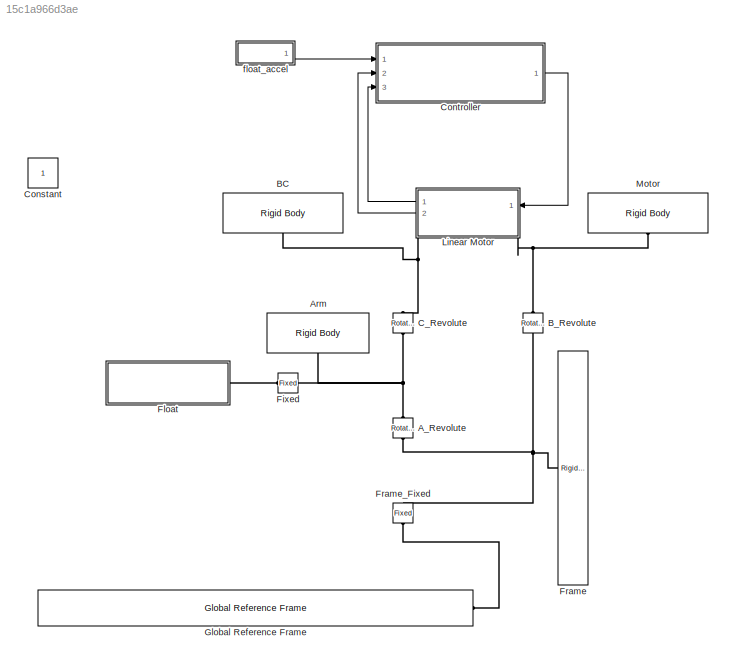
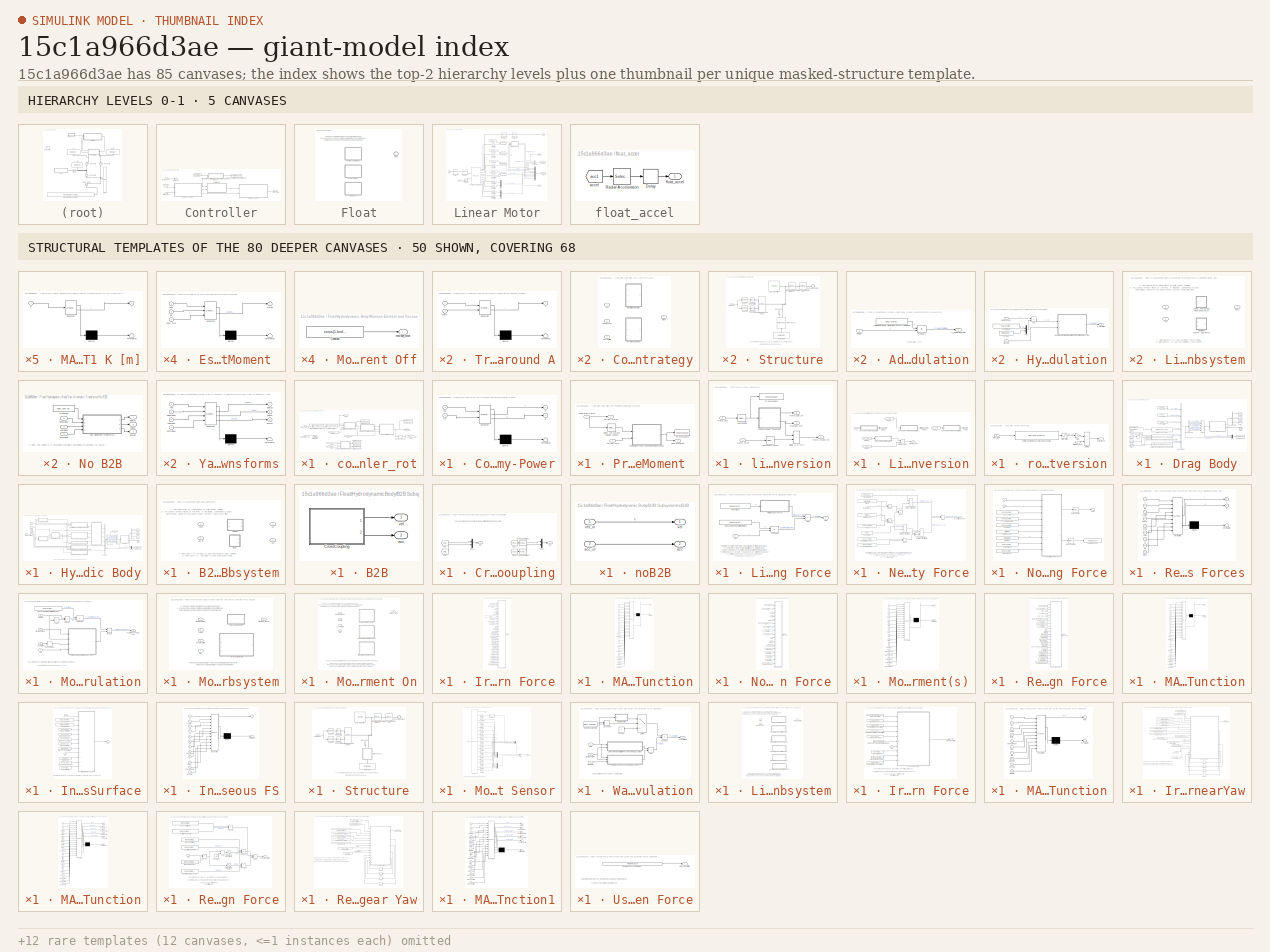
[diagram: thumbnail index - top-2 hierarchy levels (5 canvases) + 50 structural-template representatives of the remaining 80 canvases]
MODEL slx_15c1a966d3ae
KIND model
CONFIG AbsTol = auto
CONFIG EnableMultiTasking = on
CONFIG FixedStep = 0.05
CONFIG MaxStep = 0.05
CONFIG MinStep = auto
CONFIG RelTol = 1e-3
CONFIG SampleTimeConstraint = Unconstrained
CONFIG SolverName = ode8
CONFIG StartTime = 0
CONFIG StopTime = 225
BLOCK [Reference] A_Revolute  REF=WECSim_Lib_Constraints/Rotational
  AttributesFormatString = %<constraint>
  NameLocation = right
  Ports = [0, 0, 0, 0, 0, 1, 1]
  SourceBlock = WECSim_Lib_Constraints/Rotational
  SourceProductName = WEC-Sim
  SourceType = Constraints
BLOCK [Reference] Arm  REF=WECSim_Lib_Body_Elements/Rigid Body
  AttributesFormatString = %<body>
  NameLocation = left
  Ports = [0, 0, 0, 0, 0, 0, 1]
  SourceBlock = WECSim_Lib_Body_Elements/Rigid Body
  SourceProductName = WEC-Sim
  SourceType = Rigid Body
BLOCK [Reference] BC  REF=WECSim_Lib_Body_Elements/Rigid Body
  AttributesFormatString = %<body>
  NameLocation = left
  Ports = [0, 0, 0, 0, 0, 0, 1]
  SourceBlock = WECSim_Lib_Body_Elements/Rigid Body
  SourceProductName = WEC-Sim
  SourceType = Rigid Body
BLOCK [Reference] B_Revolute  REF=WECSim_Lib_Constraints/Rotational
  AttributesFormatString = %<constraint>
  NameLocation = right
  Ports = [0, 0, 0, 0, 0, 1, 1]
  SourceBlock = WECSim_Lib_Constraints/Rotational
  SourceProductName = WEC-Sim
  SourceType = Constraints
BLOCK [Reference] C_Revolute  REF=WECSim_Lib_Constraints/Rotational
  AttributesFormatString = %<constraint>
  NameLocation = right
  Ports = [0, 0, 0, 0, 0, 1, 1]
  SourceBlock = WECSim_Lib_Constraints/Rotational
  SourceProductName = WEC-Sim
  SourceType = Constraints
BLOCK [Constant] Constant
  IOType = siggen
BLOCK [SubSystem] Controller
  Ports = [3, 1]
  RequestExecContextInheritance = off
BLOCK [Terminator] Controller/Terminator
BLOCK [SubSystem] Controller/Transform excitation forces in excitation Moment around A
  ErrorFcn = Stateflow.Translate.translate
  PermitHierarchicalResolution = ExplicitOnly
  Ports = [2, 1]
  RequestExecContextInheritance = off
  SFBlockType = MATLAB Function
  TreatAsAtomicUnit = on
BLOCK [Demux] Controller/Transform excitation forces in excitation Moment around A/ Demux 
  Outputs = 1
  Ports = [1, 1]
BLOCK [S-Function] Controller/Transform excitation forces in excitation Moment around A/ SFunction 
  EnableBusSupport = on
  FunctionName = sf_sfun
  Parameters = LAfloat,Theta0
  PortCounts = [2 2]
  Ports = [2, 2]
  SFcnIsStateOwnerBlock = off
  SFunctionDeploymentMode = off
  Tag = Stateflow S-Function 4
BLOCK [Terminator] Controller/Transform excitation forces in excitation Moment around A/ Terminator 
BLOCK [Inport] Controller/Transform excitation forces in excitation Moment around A/theta
  Port = 2
BLOCK [Inport] Controller/Transform excitation forces in excitation Moment around A/u
BLOCK [Outport] Controller/Transform excitation forces in excitation Moment around A/y
BLOCK [ToWorkspace] Controller/Wave Excitation moment around A
  FixptAsFi = on
  MaxDataPoints = inf
  Ports = [1]
  SampleTime = -1
  SaveFormat = Structure With Time
  VariableName = excM_wecSim
BLOCK [Outport] Controller/cmd_force
BLOCK [SubSystem] Controller/controller_rot
  Ports = [2, 1]
  RequestExecContextInheritance = off
BLOCK [SubSystem] Controller/controller_rot/Compute extracted Energy-Power
  ErrorFcn = Stateflow.Translate.translate
  PermitHierarchicalResolution = ExplicitOnly
  Ports = [2, 2]
  RequestExecContextInheritance = off
  SFBlockType = MATLAB Function
  TreatAsAtomicUnit = on
BLOCK [Demux] Controller/controller_rot/Compute extracted Energy-Power/ Demux 
  Outputs = 1
  Ports = [1, 1]
BLOCK [S-Function] Controller/controller_rot/Compute extracted Energy-Power/ SFunction 
  EnableBusSupport = on
  FunctionName = sf_sfun
  Parameters = dt,eta_generator,eta_motoring
  PortCounts = [2 3]
  Ports = [2, 3]
  SFcnIsStateOwnerBlock = off
  SFunctionDeploymentMode = off
  Tag = Stateflow S-Function 21
BLOCK [Terminator] Controller/controller_rot/Compute extracted Energy-Power/ Terminator 
BLOCK [Outport] Controller/controller_rot/Compute extracted Energy-Power/E
  Port = 2
BLOCK [Outport] Controller/controller_rot/Compute extracted Energy-Power/P
BLOCK [Inport] Controller/controller_rot/Compute extracted Energy-Power/tor
  Port = 2
BLOCK [Inport] Controller/controller_rot/Compute extracted Energy-Power/vel
BLOCK [SubSystem] Controller/controller_rot/Control strategy
  Ports = [3, 1]
  RequestExecContextInheritance = off
  Variant = on
  VariantControl = Choice
BLOCK [SubSystem] Controller/controller_rot/Control strategy/RTI - NMPC Algorithm
  ErrorFcn = Stateflow.Translate.translate
  PermitHierarchicalResolution = ExplicitOnly
  Ports = [3, 1]
  RequestExecContextInheritance = off
  SFBlockType = MATLAB Function
  TreatAsAtomicUnit = on
  VariantControl = controllerType == 2
BLOCK [Demux] Controller/controller_rot/Control strategy/RTI - NMPC Algorithm/ Demux 
  Outputs = 1
  Ports = [1, 1]
BLOCK [S-Function] Controller/controller_rot/Control strategy/RTI - NMPC Algorithm/ SFunction 
  EnableBusSupport = on
  FunctionName = sf_sfun
  Parameters = Ad,Bd,Np,R_ctrl,Umax,Umin,alpha_eff,beta_eff,phi_eff,prop_gain,qnl,startController
  PortCounts = [3 2]
  Ports = [3, 2]
  SFcnIsStateOwnerBlock = off
  SFunctionDeploymentMode = off
  Tag = Stateflow S-Function 13
BLOCK [Terminator] Controller/controller_rot/Control strategy/RTI - NMPC Algorithm/ Terminator 
BLOCK [Inport] Controller/controller_rot/Control strategy/RTI - NMPC Algorithm/currenttime
  Port = 3
BLOCK [Inport] Controller/controller_rot/Control strategy/RTI - NMPC Algorithm/excM_pred
  Port = 2
BLOCK [Outport] Controller/controller_rot/Control strategy/RTI - NMPC Algorithm/ptoM
BLOCK [Inport] Controller/controller_rot/Control strategy/RTI - NMPC Algorithm/xk0
BLOCK [SubSystem] Controller/controller_rot/Control strategy/Resistive Controller
  ErrorFcn = Stateflow.Translate.translate
  PermitHierarchicalResolution = ExplicitOnly
  Ports = [3, 1]
  RequestExecContextInheritance = off
  SFBlockType = MATLAB Function
  TreatAsAtomicUnit = on
  VariantControl = controllerType == 1
BLOCK [Demux] Controller/controller_rot/Control strategy/Resistive Controller/ Demux 
  Outputs = 1
  Ports = [1, 1]
BLOCK [S-Function] Controller/controller_rot/Control strategy/Resistive Controller/ SFunction 
  EnableBusSupport = on
  FunctionName = sf_sfun
  Parameters = Umax,Umin,prop_gain,startController
  PortCounts = [3 2]
  Ports = [3, 2]
  SFcnIsStateOwnerBlock = off
  SFunctionDeploymentMode = off
  Tag = Stateflow S-Function 25
BLOCK [Terminator] Controller/controller_rot/Control strategy/Resistive Controller/ Terminator 
BLOCK [Inport] Controller/controller_rot/Control strategy/Resistive Controller/currenttime
  Port = 3
BLOCK [Inport] Controller/controller_rot/Control strategy/Resistive Controller/excM_pred
  Port = 2
BLOCK [Outport] Controller/controller_rot/Control strategy/Resistive Controller/ptoM
BLOCK [Inport] Controller/controller_rot/Control strategy/Resistive Controller/xk0
BLOCK [Inport] Controller/controller_rot/Control strategy/currenttime
  Port = 3
BLOCK [Inport] Controller/controller_rot/Control strategy/excM_pred
  Port = 2
BLOCK [Outport] Controller/controller_rot/Control strategy/ptoM
BLOCK [Inport] Controller/controller_rot/Control strategy/xk0
BLOCK [DiscreteTransferFcn] Controller/controller_rot/Differentiator with break frequency
  Denominator = [(2+2*pi*HPfreq.vel*xPcTs) (2*pi*HPfreq.vel*xPcTs-2)]
  InputPortMap = u0
  Numerator = [1 -1]*2*2*pi*HPfreq.vel
  Ports = [1, 1]
BLOCK [SubSystem] Controller/controller_rot/Estimation Excitation Moment 
  ErrorFcn = Stateflow.Translate.translate
  PermitHierarchicalResolution = ExplicitOnly
  Ports = [3, 1]
  RequestExecContextInheritance = off
  SFBlockType = MATLAB Function
  TreatAsAtomicUnit = on
BLOCK [Demux] Controller/controller_rot/Estimation Excitation Moment / Demux 
  Outputs = 1
  Ports = [1, 1]
BLOCK [S-Function] Controller/controller_rot/Estimation Excitation Moment / SFunction 
  EnableBusSupport = on
  FunctionName = sf_sfun
  Parameters = Ad,Bd,Qkf,Rkf
  PortCounts = [3 2]
  Ports = [3, 2]
  SFcnIsStateOwnerBlock = off
  SFunctionDeploymentMode = off
  Tag = Stateflow S-Function 11
BLOCK [Terminator] Controller/controller_rot/Estimation Excitation Moment / Terminator 
BLOCK [Inport] Controller/controller_rot/Estimation Excitation Moment /input_cmd
  Port = 3
BLOCK [Inport] Controller/controller_rot/Estimation Excitation Moment /pos
BLOCK [Outport] Controller/controller_rot/Estimation Excitation Moment /states
BLOCK [Inport] Controller/controller_rot/Estimation Excitation Moment /vel
  Port = 2
BLOCK [DiscreteTransferFcn] Controller/controller_rot/First order LP filter
  Denominator = [(2+xPcTs*2*pi*LPfreq.vel) (xPcTs*2*pi*LPfreq.vel-2)]
  InputPortMap = u0
  Numerator = [1 1]*xPcTs*2*pi*LPfreq.vel
  Ports = [1, 1]
BLOCK [From] Controller/controller_rot/From
  GotoTag = Clock
  TagVisibility = global
BLOCK [From] Controller/controller_rot/From1
  GotoTag = previous_cmd_tor
  IconDisplay = Tag and signal name
BLOCK [From] Controller/controller_rot/From2
  GotoTag = previous_cmd_tor
BLOCK [From] Controller/controller_rot/From3
  GotoTag = vel
  IconDisplay = Tag and signal name
BLOCK [Goto] Controller/controller_rot/Goto
  GotoTag = previous_cmd_tor
BLOCK [Goto] Controller/controller_rot/Goto1
  GotoTag = vel
BLOCK [SubSystem] Controller/controller_rot/Prediction Excitation Moment 
  Ports = [2, 2]
  RequestExecContextInheritance = off
BLOCK [Outport] Controller/controller_rot/Prediction Excitation Moment /Current states
BLOCK [SubSystem] Controller/controller_rot/Prediction Excitation Moment /Prediction from Autoregressive Model 
  ErrorFcn = Stateflow.Translate.translate
  PermitHierarchicalResolution = ExplicitOnly
  Ports = [2, 1]
  RequestExecContextInheritance = off
  SFBlockType = MATLAB Function
  TreatAsAtomicUnit = on
BLOCK [Demux] Controller/controller_rot/Prediction Excitation Moment /Prediction from Autoregressive Model / Demux 
  Outputs = 1
  Ports = [1, 1]
BLOCK [S-Function] Controller/controller_rot/Prediction Excitation Moment /Prediction from Autoregressive Model / SFunction 
  EnableBusSupport = on
  FunctionName = sf_sfun
  Parameters = ARorder,ARtrainingSet,Np,dt,excM_precalculated,predictionType,startPredictor
  PortCounts = [2 2]
  Ports = [2, 2]
  SFcnIsStateOwnerBlock = off
  SFunctionDeploymentMode = off
  Tag = Stateflow S-Function 12
BLOCK [Terminator] Controller/controller_rot/Prediction Excitation Moment /Prediction from Autoregressive Model / Terminator 
BLOCK [Outport] Controller/controller_rot/Prediction Excitation Moment /Prediction from Autoregressive Model /excM_pred
BLOCK [Inport] Controller/controller_rot/Prediction Excitation Moment /Prediction from Autoregressive Model /time
  Port = 2
BLOCK [Inport] Controller/controller_rot/Prediction Excitation Moment /Prediction from Autoregressive Model /waveExc
BLOCK [Selector] Controller/controller_rot/Prediction Excitation Moment /Select the current angular position
  IndexOptions = Index vector (dialog)
  Indices = 5
  InputPortWidth = 5
  OutputSizes = 1
  Ports = [1, 1]
BLOCK [ToWorkspace] Controller/controller_rot/Prediction Excitation Moment /To Workspace
  FixptAsFi = on
  MaxDataPoints = inf
  Ports = [1]
  SampleTime = -1
  SaveFormat = Structure With Time
  VariableName = AR_excM_pred
BLOCK [Inport] Controller/controller_rot/Prediction Excitation Moment /current time
  Port = 2
BLOCK [Inport] Controller/controller_rot/Prediction Excitation Moment /estimated states
BLOCK [Outport] Controller/controller_rot/Prediction Excitation Moment /wave prediction
  Port = 2
BLOCK [Delay] Controller/controller_rot/Previous cmd_tor
  DelayLength = 1
  InputPortMap = u0
  Ports = [1, 1]
BLOCK [ToWorkspace] Controller/controller_rot/To Workspace1
  FixptAsFi = on
  MaxDataPoints = inf
  Ports = [1]
  SampleTime = -1
  SaveFormat = Structure With Time
  VariableName = cmd_ptoM
BLOCK [ToWorkspace] Controller/controller_rot/To Workspace2
  FixptAsFi = on
  MaxDataPoints = inf
  Ports = [1]
  SampleTime = -1
  SaveFormat = Structure With Time
  VariableName = Output_power
BLOCK [ToWorkspace] Controller/controller_rot/To Workspace3
  FixptAsFi = on
  MaxDataPoints = inf
  Ports = [1]
  SampleTime = -1
  SaveFormat = Structure With Time
  VariableName = Output_energy
BLOCK [ToWorkspace] Controller/controller_rot/To Workspace4
  FixptAsFi = on
  MaxDataPoints = inf
  Ports = [1]
  SampleTime = -1
  SaveFormat = Structure With Time
  VariableName = estimated_states
BLOCK [Outport] Controller/controller_rot/cmd_ptoM
  NameLocation = top
  VectorParamsAs1DForOutWhenUnconnected = off
BLOCK [Terminator] Controller/controller_rot/motor torque terminator
BLOCK [Inport] Controller/controller_rot/motor_pos_rot 
BLOCK [Inport] Controller/controller_rot/motor_torque_rot
  Port = 2
BLOCK [From] Controller/excForce
  GotoTag = excForce
  TagVisibility = global
BLOCK [Inport] Controller/float_accel
BLOCK [SubSystem] Controller/lin2rot conversion
  Ports = [2, 3]
  RequestExecContextInheritance = off
BLOCK [Selector] Controller/lin2rot conversion/Axial Motor Force
  IndexOptions = Index vector (dialog)
  Indices = [3]
  InputPortWidth = 6
  OutputSizes = 1
  Ports = [1, 1]
BLOCK [Selector] Controller/lin2rot conversion/Axial Position
  IndexOptions = Index vector (dialog)
  Indices = [3]
  InputPortWidth = 6
  OutputSizes = 1
  Ports = [1, 1]
BLOCK [Product] Controller/lin2rot conversion/Divide => K (m)2
  Inputs = **
  Ports = [2, 1]
BLOCK [SubSystem] Controller/lin2rot conversion/Linear2Angular Conversion
  Ports = [1, 2]
  RequestExecContextInheritance = off
BLOCK [Product] Controller/lin2rot conversion/Linear2Angular Conversion/Divide => K (m)
  Inputs = */
  Ports = [2, 1]
BLOCK [From] Controller/lin2rot conversion/Linear2Angular Conversion/From30
  GotoTag = a_CAB
BLOCK [From] Controller/lin2rot conversion/Linear2Angular Conversion/From31
  GotoTag = a_CAB
BLOCK [From] Controller/lin2rot conversion/Linear2Angular Conversion/From33
  GotoTag = L_BC
BLOCK [From] Controller/lin2rot conversion/Linear2Angular Conversion/From34
  GotoTag = L_BC
BLOCK [Goto] Controller/lin2rot conversion/Linear2Angular Conversion/Goto11
  GotoTag = a_CAB
BLOCK [Goto] Controller/lin2rot conversion/Linear2Angular Conversion/Goto12
  GotoTag = L_BC
BLOCK [SubSystem] Controller/lin2rot conversion/Linear2Angular Conversion/MATLAB Function1 K [m]
  ErrorFcn = Stateflow.Translate.translate
  PermitHierarchicalResolution = ExplicitOnly
  Ports = [1, 1]
  RequestExecContextInheritance = off
  SFBlockType = MATLAB Function
  TreatAsAtomicUnit = on
BLOCK [Demux] Controller/lin2rot conversion/Linear2Angular Conversion/MATLAB Function1 K [m]/ Demux 
  Outputs = 1
  Ports = [1, 1]
BLOCK [S-Function] Controller/lin2rot conversion/Linear2Angular Conversion/MATLAB Function1 K [m]/ SFunction 
  EnableBusSupport = on
  FunctionName = sf_sfun
  Parameters = L_AB,L_AC
  PortCounts = [1 2]
  Ports = [1, 2]
  SFcnIsStateOwnerBlock = off
  SFunctionDeploymentMode = off
  Tag = Stateflow S-Function 1
BLOCK [Terminator] Controller/lin2rot conversion/Linear2Angular Conversion/MATLAB Function1 K [m]/ Terminator 
BLOCK [Inport] Controller/lin2rot conversion/Linear2Angular Conversion/MATLAB Function1 K [m]/u
BLOCK [Outport] Controller/lin2rot conversion/Linear2Angular Conversion/MATLAB Function1 K [m]/y
  VectorParamsAs1DForOutWhenUnconnected = off
BLOCK [SubSystem] Controller/lin2rot conversion/Linear2Angular Conversion/MATLAB Function1 L_BC [m]
  ErrorFcn = Stateflow.Translate.translate
  PermitHierarchicalResolution = ExplicitOnly
  Ports = [1, 1]
  RequestExecContextInheritance = off
  SFBlockType = MATLAB Function
  TreatAsAtomicUnit = on
BLOCK [Demux] Controller/lin2rot conversion/Linear2Angular Conversion/MATLAB Function1 L_BC [m]/ Demux 
  Outputs = 1
  Ports = [1, 1]
BLOCK [S-Function] Controller/lin2rot conversion/Linear2Angular Conversion/MATLAB Function1 L_BC [m]/ SFunction 
  EnableBusSupport = on
  FunctionName = sf_sfun
  Parameters = L_BC_neutral
  PortCounts = [1 2]
  Ports = [1, 2]
  SFcnIsStateOwnerBlock = off
  SFunctionDeploymentMode = off
  Tag = Stateflow S-Function 2
BLOCK [Terminator] Controller/lin2rot conversion/Linear2Angular Conversion/MATLAB Function1 L_BC [m]/ Terminator 
BLOCK [Inport] Controller/lin2rot conversion/Linear2Angular Conversion/MATLAB Function1 L_BC [m]/u
BLOCK [Outport] Controller/lin2rot conversion/Linear2Angular Conversion/MATLAB Function1 L_BC [m]/y
  VectorParamsAs1DForOutWhenUnconnected = off
BLOCK [SubSystem] Controller/lin2rot conversion/Linear2Angular Conversion/MATLAB Function1 Theta [rad]
  ErrorFcn = Stateflow.Translate.translate
  PermitHierarchicalResolution = ExplicitOnly
  Ports = [1, 1]
  RequestExecContextInheritance = off
  SFBlockType = MATLAB Function
  TreatAsAtomicUnit = on
BLOCK [Demux] Controller/lin2rot conversion/Linear2Angular Conversion/MATLAB Function1 Theta [rad]/ Demux 
  Outputs = 1
  Ports = [1, 1]
BLOCK [S-Function] Controller/lin2rot conversion/Linear2Angular Conversion/MATLAB Function1 Theta [rad]/ SFunction 
  EnableBusSupport = on
  FunctionName = sf_sfun
  Parameters = a_CAB_neutral
  PortCounts = [1 2]
  Ports = [1, 2]
  SFcnIsStateOwnerBlock = off
  SFunctionDeploymentMode = off
  Tag = Stateflow S-Function 3
BLOCK [Terminator] Controller/lin2rot conversion/Linear2Angular Conversion/MATLAB Function1 Theta [rad]/ Terminator 
BLOCK [Inport] Controller/lin2rot conversion/Linear2Angular Conversion/MATLAB Function1 Theta [rad]/u
BLOCK [Outport] Controller/lin2rot conversion/Linear2Angular Conversion/MATLAB Function1 Theta [rad]/y
  VectorParamsAs1DForOutWhenUnconnected = off
BLOCK [SubSystem] Controller/lin2rot conversion/Linear2Angular Conversion/MATLAB Function1 a_CAB [rad]
  ErrorFcn = Stateflow.Translate.translate
  PermitHierarchicalResolution = ExplicitOnly
  Ports = [1, 1]
  RequestExecContextInheritance = off
  SFBlockType = MATLAB Function
  TreatAsAtomicUnit = on
BLOCK [Demux] Controller/lin2rot conversion/Linear2Angular Conversion/MATLAB Function1 a_CAB [rad]/ Demux 
  Outputs = 1
  Ports = [1, 1]
BLOCK [S-Function] Controller/lin2rot conversion/Linear2Angular Conversion/MATLAB Function1 a_CAB [rad]/ SFunction 
  EnableBusSupport = on
  FunctionName = sf_sfun
  Parameters = L_AB,L_AC
  PortCounts = [1 2]
  Ports = [1, 2]
  SFcnIsStateOwnerBlock = off
  SFunctionDeploymentMode = off
  Tag = Stateflow S-Function 5
BLOCK [Terminator] Controller/lin2rot conversion/Linear2Angular Conversion/MATLAB Function1 a_CAB [rad]/ Terminator 
BLOCK [Inport] Controller/lin2rot conversion/Linear2Angular Conversion/MATLAB Function1 a_CAB [rad]/u
BLOCK [Outport] Controller/lin2rot conversion/Linear2Angular Conversion/MATLAB Function1 a_CAB [rad]/y
  VectorParamsAs1DForOutWhenUnconnected = off
BLOCK [Outport] Controller/lin2rot conversion/Linear2Angular Conversion/Theta
  VectorParamsAs1DForOutWhenUnconnected = off
BLOCK [Outport] Controller/lin2rot conversion/Linear2Angular Conversion/moment_arm
  Port = 2
  VectorParamsAs1DForOutWhenUnconnected = off
BLOCK [Inport] Controller/lin2rot conversion/Linear2Angular Conversion/x_cyl
BLOCK [ToWorkspace] Controller/lin2rot conversion/To Workspace
  FixptAsFi = on
  MaxDataPoints = inf
  Ports = [1]
  SampleTime = -1
  SaveFormat = Structure With Time
  VariableName = motor_displacement
BLOCK [Outport] Controller/lin2rot conversion/moment_arm
  Port = 3
  VectorParamsAs1DForOutWhenUnconnected = off
BLOCK [Inport] Controller/lin2rot conversion/motor_force
BLOCK [Inport] Controller/lin2rot conversion/motor_pos 
  Port = 2
BLOCK [Outport] Controller/lin2rot conversion/motor_pos_rot
  VectorParamsAs1DForOutWhenUnconnected = off
BLOCK [Outport] Controller/lin2rot conversion/motor_torque_rot
  Port = 2
  VectorParamsAs1DForOutWhenUnconnected = off
BLOCK [Inport] Controller/motor_force
  Port = 2
BLOCK [Inport] Controller/motor_pos 
  Port = 3
BLOCK [SubSystem] Controller/rot2lin conversion
  Ports = [2, 1]
  RequestExecContextInheritance = off
BLOCK [DiscreteTransferFcn] Controller/rot2lin conversion/Cmd torque to measured torque dynamics
  Denominator = [1.00000000   -1.99777700    0.99783206]
  InputPortMap = u0
  NameLocation = top
  Numerator = [0.96294775   -1.92342278    0.96053421]
  Ports = [1, 1]
BLOCK [Product] Controller/rot2lin conversion/Divide 
  Inputs = */
  Ports = [2, 1]
BLOCK [Gain] Controller/rot2lin conversion/Gain
BLOCK [Saturate] Controller/rot2lin conversion/Saturation
  LowerLimit = -McSat
  UpperLimit = McSat
BLOCK [Outport] Controller/rot2lin conversion/cmd_force
  VectorParamsAs1DForOutWhenUnconnected = off
BLOCK [Inport] Controller/rot2lin conversion/cmd_ptoM
BLOCK [Inport] Controller/rot2lin conversion/moment_arm
  Port = 2
BLOCK [Reference] Fixed  REF=WECSim_Lib_Constraints/Fixed
  AttributesFormatString = %<constraint>
  Ports = [0, 0, 0, 0, 0, 1, 1]
  SourceBlock = WECSim_Lib_Constraints/Fixed
  SourceProductName = WEC-Sim
  SourceType = Constraints
BLOCK [SubSystem] Float
  AllowZeroVariantControls = on
  AncestorBlock = WECSim_Lib_Body_Elements/Rigid Body
  AttributesFormatString = %<body>
  Ports = [0, 0, 0, 0, 0, 0, 1]
  RequestExecContextInheritance = off
  Variant = on
BLOCK [PMIOPort] Float/Conn
  Side = Right
BLOCK [SubSystem] Float/Drag Body
  Ports = [0, 0, 0, 0, 0, 0, 1]
  RequestExecContextInheritance = off
  VariantControl = sv_b1_dragBody
BLOCK [Reference] Float/Drag Body/Additional Linear Damping Force Calculation  REF=WECSim_Lib_Body_Elements/Rigid Body/Hydrodynamic Body/Additional Linear Damping Force Calculation
  Ports = [1, 1]
  SourceBlock = WECSim_Lib_Body_Elements/Rigid Body/Hydrodynamic Body/Additional Linear Damping Force Calculation
  SourceType = SubSystem
BLOCK [Constant] Float/Drag Body/Body Mass
  Value = body.mass
BLOCK [BusCreator] Float/Drag Body/Bus Creator2
  DisplayOption = bar
  InheritFromInputs = on
  Inputs = 6
  Ports = [6, 1]
BLOCK [BusSelector] Float/Drag Body/Bus Selector3
  OutputSignals = F_Excitation,F_RadiationDamping,F_AddedMass,F_Restoring,F_MorrisonAndViscous,F_LinearDamping
  Ports = [1, 6]
BLOCK [BusSelector] Float/Drag Body/Bus Selector4
  OutputSignals = disp,vel,acc
  Ports = [1, 3]
BLOCK [PMIOPort] Float/Drag Body/Conn
  Side = Right
BLOCK [Constant] Float/Drag Body/Constant
  Value = [0 0 0 0 0 0]
BLOCK [Constant] Float/Drag Body/Constant1
  Value = [0 0 0 0 0 0]
BLOCK [Constant] Float/Drag Body/Constant2
  Value = [0 0 0 0 0 0]
BLOCK [From] Float/Drag Body/From
  GotoTag = disp1
  TagVisibility = global
BLOCK [From] Float/Drag Body/From1
  GotoTag = vel1
  TagVisibility = global
BLOCK [From] Float/Drag Body/From2
  GotoTag = acc1
  TagVisibility = global
BLOCK [Goto] Float/Drag Body/Goto
  GotoTag = disp1
  TagVisibility = global
BLOCK [Goto] Float/Drag Body/Goto1
  GotoTag = vel1
  TagVisibility = global
BLOCK [Goto] Float/Drag Body/Goto2
  GotoTag = acc1
  TagVisibility = global
BLOCK [Reference] Float/Drag Body/Morison Element and Viscous Damping Force Calculation  REF=WECSim_Lib_Body_Elements/Rigid Body/Hydrodynamic Body/Morison Element and Viscous Damping Force Calculation
  Ports = [4, 1]
  SourceBlock = WECSim_Lib_Body_Elements/Rigid Body/Hydrodynamic Body/Morison Element and Viscous Damping Force Calculation
  SourceType = SubSystem
BLOCK [Mux] Float/Drag Body/Mux
  DisplayOption = bar
  Inputs = 3
  Ports = [3, 1]
BLOCK [Reference] Float/Drag Body/Net Buoyancy Force  REF=WECSim_Lib_Body_Elements/Rigid Body/Hydrodynamic Body/Hydrostatic Restoring Force Calculation/Linear and Nonlinear Restoring Force Variant Subsystem/Linear Hydrostatic Restoring Force/Net Buoyancy Force
  Ports = [1, 1]
  SourceBlock = WECSim_Lib_Body_Elements/Rigid Body/Hydrodynamic Body/Hydrostatic Restoring Force Calculation/Linear and Nonlinear Restoring Force Variant Subsystem/Linear Hydrostatic Restoring Force/Net Buoyancy Force
  SourceType = SubSystem
BLOCK [SubSystem] Float/Drag Body/Structure
  Ports = [1, 1, 0, 0, 0, 0, 1]
  RequestExecContextInheritance = off
BLOCK [Reference] Float/Drag Body/Structure/Body Properties  REF=sm_lib/Body Elements/File Solid
  Ports = [0, 0, 0, 0, 0, 0, 1]
  SourceBlock = sm_lib/Body Elements/File Solid
  SourceProductBaseCode = MS
  SourceType = File Solid
BLOCK [PMIOPort] Float/Drag Body/Structure/Conn Free Surface
  Side = Right
BLOCK [Reference] Float/Drag Body/Structure/External Force and Torque  REF=sm_lib/Forces and
Torques/External Force
and Torque
  Ports = [0, 0, 0, 0, 0, 2, 1]
  SourceBlock = sm_lib/Forces and\nTorques/External Force\nand Torque
  SourceProductBaseCode = MS
  SourceType = External Force\nand Torque
BLOCK [Reference] Float/Drag Body/Structure/Motion Sensor  REF=WECSim_Lib_Body_Elements/Rigid Body/Hydrodynamic Body/Structure/Motion Sensor
  NameLocation = left
  Ports = [0, 1, 0, 0, 0, 1, 1]
  SourceBlock = WECSim_Lib_Body_Elements/Rigid Body/Hydrodynamic Body/Structure/Motion Sensor
  SourceType = SubSystem
BLOCK [Outport] Float/Drag Body/Structure/Response
  NameLocation = left
BLOCK [Reference] Float/Drag Body/Structure/Rigid Transform (Setup CG)  REF=sm_lib/Frames and
Transforms/Rigid
Transform
  Ports = [0, 0, 0, 0, 0, 1, 1]
  SourceBlock = sm_lib/Frames and\nTransforms/Rigid\nTransform
  SourceProductBaseCode = MS
  SourceType = Rigid\nTransform
BLOCK [Reference] Float/Drag Body/Structure/Rigid Transform (Setup Initial Disp)  REF=sm_lib/Frames and
Transforms/Rigid
Transform
  Ports = [0, 0, 0, 0, 0, 1, 1]
  SourceBlock = sm_lib/Frames and\nTransforms/Rigid\nTransform
  SourceProductBaseCode = MS
  SourceType = Rigid\nTransform
BLOCK [Selector] Float/Drag Body/Structure/Selector
  IndexOptions = Index vector (dialog)
  Indices = [1:3]
  InputPortWidth = 6
  OutputSizes = 1
  Ports = [1, 1]
BLOCK [Selector] Float/Drag Body/Structure/Selector1
  IndexOptions = Index vector (dialog)
  Indices = [4:6]
  InputPortWidth = 6
  OutputSizes = 1
  Ports = [1, 1]
BLOCK [Reference] Float/Drag Body/Structure/Simulink-PS Converter1  REF=nesl_utility/Simulink-PS
Converter
  Ports = [1, 0, 0, 0, 0, 0, 1]
  SourceBlock = nesl_utility/Simulink-PS\nConverter
  SourceProductBaseCode = PW,SS
  SourceType = Simulink-PS\nConverter
BLOCK [Reference] Float/Drag Body/Structure/Simulink-PS Converter2  REF=nesl_utility/Simulink-PS
Converter
  Ports = [1, 0, 0, 0, 0, 0, 1]
  SourceBlock = nesl_utility/Simulink-PS\nConverter
  SourceProductBaseCode = PW,SS
  SourceType = Simulink-PS\nConverter
BLOCK [Inport] Float/Drag Body/Structure/Total Force
BLOCK [Reference] Float/Drag Body/Structure/World Frame  REF=sm_lib/Frames and
Transforms/World Frame
  NameLocation = right
  Ports = [0, 0, 0, 0, 0, 0, 1]
  SourceBlock = sm_lib/Frames and\nTransforms/World Frame
  SourceProductBaseCode = MS
  SourceType = World Frame
BLOCK [Sum] Float/Drag Body/Sum1
  IconShape = rectangular
  Inputs = +-----
  Ports = [6, 1]
BLOCK [From] Float/Drag Body/Time
  GotoTag = Clock
  TagVisibility = global
BLOCK [ToWorkspace] Float/Drag Body/To Workspace
  MaxDataPoints = inf
  Ports = [1]
  SampleTime = simu.dtOut
  SaveFormat = Structure With Time
  VariableName = body1_out
BLOCK [TransportDelay] Float/Drag Body/Transport Delay
  DelayTime = 10e-8
  Ports = [1, 1]
BLOCK [SubSystem] Float/Hydrodynamic Body
  Ports = [0, 0, 0, 0, 0, 0, 1]
  RequestExecContextInheritance = off
  VariantControl = sv_b1_hydroBody
BLOCK [SubSystem] Float/Hydrodynamic Body/Additional Linear Damping Force Calculation
  Ports = [1, 1]
  RequestExecContextInheritance = off
BLOCK [Constant] Float/Hydrodynamic Body/Additional Linear Damping Force Calculation/Additional Linear Damping Matrix (diagonal)
  Value = body.hydroForce.linearDamping
BLOCK [Outport] Float/Hydrodynamic Body/Additional Linear Damping Force Calculation/F_LinearDamping
BLOCK [Product] Float/Hydrodynamic Body/Additional Linear Damping Force Calculation/Product1
  Multiplication = Matrix(*)
  Ports = [2, 1]
BLOCK [Inport] Float/Hydrodynamic Body/Additional Linear Damping Force Calculation/Velocity
BLOCK [SubSystem] Float/Hydrodynamic Body/B2B Subsystem
  Ports = [2, 2]
  RequestExecContextInheritance = off
  Variant = on
BLOCK [SubSystem] Float/Hydrodynamic Body/B2B Subsystem/B2B
  Ports = [0, 2]
  RequestExecContextInheritance = off
  VariantControl = sv_B2B
BLOCK [SubSystem] Float/Hydrodynamic Body/B2B Subsystem/B2B/CrossCoupling
  Ports = [0, 2]
  RequestExecContextInheritance = off
BLOCK [Mux] Float/Hydrodynamic Body/B2B Subsystem/B2B/CrossCoupling/Mux1
  DisplayOption = bar
  Inputs = 2
  Ports = [2, 1]
BLOCK [Mux] Float/Hydrodynamic Body/B2B Subsystem/B2B/CrossCoupling/Mux2
  DisplayOption = bar
  Inputs = 2
  Ports = [2, 1]
BLOCK [TransportDelay] Float/Hydrodynamic Body/B2B Subsystem/B2B/CrossCoupling/Transport Delay1
  DelayTime = 10e-8
  Ports = [1, 1]
BLOCK [TransportDelay] Float/Hydrodynamic Body/B2B Subsystem/B2B/CrossCoupling/Transport Delay2
  DelayTime = 1e-07
  Ports = [1, 1]
BLOCK [Outport] Float/Hydrodynamic Body/B2B Subsystem/B2B/CrossCoupling/acc
  Port = 2
BLOCK [From] Float/Hydrodynamic Body/B2B Subsystem/B2B/CrossCoupling/acc1
  GotoTag = acc1
  TagVisibility = global
BLOCK [From] Float/Hydrodynamic Body/B2B Subsystem/B2B/CrossCoupling/acc2
  GotoTag = acc2
BLOCK [Outport] Float/Hydrodynamic Body/B2B Subsystem/B2B/CrossCoupling/vel
BLOCK [From] Float/Hydrodynamic Body/B2B Subsystem/B2B/CrossCoupling/vel1
  GotoTag = vel1
  TagVisibility = global
BLOCK [From] Float/Hydrodynamic Body/B2B Subsystem/B2B/CrossCoupling/vel2
  GotoTag = vel2
BLOCK [Outport] Float/Hydrodynamic Body/B2B Subsystem/B2B/acc
  Port = 2
BLOCK [Outport] Float/Hydrodynamic Body/B2B Subsystem/B2B/vel
BLOCK [Outport] Float/Hydrodynamic Body/B2B Subsystem/acc
  Port = 2
BLOCK [Inport] Float/Hydrodynamic Body/B2B Subsystem/acc_in
  Port = 2
BLOCK [SubSystem] Float/Hydrodynamic Body/B2B Subsystem/noB2B
  Ports = [2, 2]
  RequestExecContextInheritance = off
  VariantControl = sv_noB2B
BLOCK [Outport] Float/Hydrodynamic Body/B2B Subsystem/noB2B/acc
  Port = 2
BLOCK [Inport] Float/Hydrodynamic Body/B2B Subsystem/noB2B/acc_in
  Port = 2
BLOCK [Outport] Float/Hydrodynamic Body/B2B Subsystem/noB2B/vel
BLOCK [Inport] Float/Hydrodynamic Body/B2B Subsystem/noB2B/vel_in
BLOCK [Outport] Float/Hydrodynamic Body/B2B Subsystem/vel
BLOCK [Inport] Float/Hydrodynamic Body/B2B Subsystem/vel_in
BLOCK [BusCreator] Float/Hydrodynamic Body/Bus Creator
  DisplayOption = bar
  InheritFromInputs = on
  Inputs = 6
  Ports = [6, 1]
BLOCK [BusSelector] Float/Hydrodynamic Body/Bus Selector1
  OutputSignals = F_Excitation,F_RadiationDamping,F_AddedMass,F_Restoring,F_MorisonAndViscous,F_LinearDamping
  Ports = [1, 6]
BLOCK [BusSelector] Float/Hydrodynamic Body/Bus Selector2
  OutputSignals = disp,vel,acc
  Ports = [1, 3]
BLOCK [PMIOPort] Float/Hydrodynamic Body/Conn
  Side = Right
BLOCK [From] Float/Hydrodynamic Body/From
  GotoTag = disp1
  TagVisibility = global
BLOCK [From] Float/Hydrodynamic Body/From1
  GotoTag = vel1
  TagVisibility = global
BLOCK [From] Float/Hydrodynamic Body/From2
  GotoTag = acc1
  TagVisibility = global
BLOCK [Goto] Float/Hydrodynamic Body/Goto
  GotoTag = disp1
  TagVisibility = global
BLOCK [Goto] Float/Hydrodynamic Body/Goto Exc
  GotoTag = excForce
  TagVisibility = global
BLOCK [Goto] Float/Hydrodynamic Body/Goto1
  GotoTag = vel1
  TagVisibility = global
BLOCK [Goto] Float/Hydrodynamic Body/Goto2
  GotoTag = acc1
  TagVisibility = global
BLOCK [SubSystem] Float/Hydrodynamic Body/Hydrostatic Restoring Force Calculation
  Ports = [2, 1]
  RequestExecContextInheritance = off
BLOCK [Sum] Float/Hydrodynamic Body/Hydrostatic Restoring Force Calculation/Add
  IconShape = rectangular
  Inputs = +-
  Ports = [2, 1]
BLOCK [Constant] Float/Hydrodynamic Body/Hydrostatic Restoring Force Calculation/Center of Gravity
  Value = body.centerGravity
BLOCK [Constant] Float/Hydrodynamic Body/Hydrostatic Restoring Force Calculation/Constant
  Value = zeros(1,body.dof-3)
BLOCK [Inport] Float/Hydrodynamic Body/Hydrostatic Restoring Force Calculation/Displacement
BLOCK [Outport] Float/Hydrodynamic Body/Hydrostatic Restoring Force Calculation/F_Restoring
BLOCK [SubSystem] Float/Hydrodynamic Body/Hydrostatic Restoring Force Calculation/Linear and Nonlinear Restoring Force Variant Subsystem
  Ports = [2, 1]
  RequestExecContextInheritance = off
  Variant = on
BLOCK [Inport] Float/Hydrodynamic Body/Hydrostatic Restoring Force Calculation/Linear and Nonlinear Restoring Force Variant Subsystem/In1
BLOCK [Inport] Float/Hydrodynamic Body/Hydrostatic Restoring Force Calculation/Linear and Nonlinear Restoring Force Variant Subsystem/In2
  Port = 2
BLOCK [SubSystem] Float/Hydrodynamic Body/Hydrostatic Restoring Force Calculation/Linear and Nonlinear Restoring Force Variant Subsystem/Linear Hydrostatic Restoring Force
  Ports = [1, 1]
  RequestExecContextInheritance = off
  VariantControl = sv_b1_linearHydro
BLOCK [Sum] Float/Hydrodynamic Body/Hydrostatic Restoring Force Calculation/Linear and Nonlinear Restoring Force Variant Subsystem/Linear Hydrostatic Restoring Force/Add
  IconShape = rectangular
  Ports = [2, 1]
BLOCK [Constant] Float/Hydrodynamic Body/Hydrostatic Restoring Force Calculation/Linear and Nonlinear Restoring Force Variant Subsystem/Linear Hydrostatic Restoring Force/Body Mass
  Value = body.hydroForce.storage.mass
BLOCK [Inport] Float/Hydrodynamic Body/Hydrostatic Restoring Force Calculation/Linear and Nonlinear Restoring Force Variant Subsystem/Linear Hydrostatic Restoring Force/In1
BLOCK [Constant] Float/Hydrodynamic Body/Hydrostatic Restoring Force Calculation/Linear and Nonlinear Restoring Force Variant Subsystem/Linear Hydrostatic Restoring Force/Linear Restoring Coefficient Matrix
  Value = body.hydroForce.linearHydroRestCoef
BLOCK [SubSystem] Float/Hydrodynamic Body/Hydrostatic Restoring Force Calculation/Linear and Nonlinear Restoring Force Variant Subsystem/Linear Hydrostatic Restoring Force/Net Buoyancy Force
  Ports = [1, 1]
  RequestExecContextInheritance = off
BLOCK [Sum] Float/Hydrodynamic Body/Hydrostatic Restoring Force Calculation/Linear and Nonlinear Restoring Force Variant Subsystem/Linear Hydrostatic Restoring Force/Net Buoyancy Force/Add1
  IconShape = rectangular
  Inputs = +-
  Ports = [2, 1]
BLOCK [Sum] Float/Hydrodynamic Body/Hydrostatic Restoring Force Calculation/Linear and Nonlinear Restoring Force Variant Subsystem/Linear Hydrostatic Restoring Force/Net Buoyancy Force/Add2
  IconShape = rectangular
  Ports = [2, 1]
BLOCK [Sum] Float/Hydrodynamic Body/Hydrostatic Restoring Force Calculation/Linear and Nonlinear Restoring Force Variant Subsystem/Linear Hydrostatic Restoring Force/Net Buoyancy Force/Add3
  IconShape = rectangular
  Inputs = +-
  Ports = [2, 1]
BLOCK [Assignment] Float/Hydrodynamic Body/Hydrostatic Restoring Force Calculation/Linear and Nonlinear Restoring Force Variant Subsystem/Linear Hydrostatic Restoring Force/Net Buoyancy Force/Assignment (Add Net Bouyancy Force to Z-Direction)
  IndexOptions = Index vector (dialog)
  Indices = 3
  OutputSizes = 1
  Ports = [2, 1]
BLOCK [Assignment] Float/Hydrodynamic Body/Hydrostatic Restoring Force Calculation/Linear and Nonlinear Restoring Force Variant Subsystem/Linear Hydrostatic Restoring Force/Net Buoyancy Force/Assignment (Add Net Bouyancy Force to Z-Direction)1
  IndexOptions = Index vector (dialog)
  Indices = 3
  OutputSizes = 1
  Ports = [2, 1]
BLOCK [Assignment] Float/Hydrodynamic Body/Hydrostatic Restoring Force Calculation/Linear and Nonlinear Restoring Force Variant Subsystem/Linear Hydrostatic Restoring Force/Net Buoyancy Force/Assignment (Add Net Bouyancy Force to Z-Direction)2
  IndexOptions = Index vector (dialog)
  Indices = 4:6
  OutputSizes = 1
  Ports = [2, 1]
BLOCK [Inport] Float/Hydrodynamic Body/Hydrostatic Restoring Force Calculation/Linear and Nonlinear Restoring Force Variant Subsystem/Linear Hydrostatic Restoring Force/Net Buoyancy Force/Body Mass
BLOCK [Constant] Float/Hydrodynamic Body/Hydrostatic Restoring Force Calculation/Linear and Nonlinear Restoring Force Variant Subsystem/Linear Hydrostatic Restoring Force/Net Buoyancy Force/Center of Buoyancy
  Value = body.centerBuoyancy
BLOCK [Constant] Float/Hydrodynamic Body/Hydrostatic Restoring Force Calculation/Linear and Nonlinear Restoring Force Variant Subsystem/Linear Hydrostatic Restoring Force/Net Buoyancy Force/Center of Gravity
  Value = body.centerGravity
BLOCK [Constant] Float/Hydrodynamic Body/Hydrostatic Restoring Force Calculation/Linear and Nonlinear Restoring Force Variant Subsystem/Linear Hydrostatic Restoring Force/Net Buoyancy Force/Constant1
  Value = zeros(1,body.dof)
BLOCK [Constant] Float/Hydrodynamic Body/Hydrostatic Restoring Force Calculation/Linear and Nonlinear Restoring Force Variant Subsystem/Linear Hydrostatic Restoring Force/Net Buoyancy Force/Constant2
  Value = [0 0 0]
BLOCK [Reference] Float/Hydrodynamic Body/Hydrostatic Restoring Force Calculation/Linear and Nonlinear Restoring Force Variant Subsystem/Linear Hydrostatic Restoring Force/Net Buoyancy Force/Cross Product  REF=vrlib/Utilities/Cross Product
  Ports = [2, 1]
  SourceBlock = vrlib/Utilities/Cross Product
  SourceProductBaseCode = SL
  SourceType = Cross Product
BLOCK [Outport] Float/Hydrodynamic Body/Hydrostatic Restoring Force Calculation/Linear and Nonlinear Restoring Force Variant Subsystem/Linear Hydrostatic Restoring Force/Net Buoyancy Force/F_NetBuoyancy
BLOCK [Constant] Float/Hydrodynamic Body/Hydrostatic Restoring Force Calculation/Linear and Nonlinear Restoring Force Variant Subsystem/Linear Hydrostatic Restoring Force/Net Buoyancy Force/Gravity
  Value = simu.gravity
BLOCK [Product] Float/Hydrodynamic Body/Hydrostatic Restoring Force Calculation/Linear and Nonlinear Restoring Force Variant Subsystem/Linear Hydrostatic Restoring Force/Net Buoyancy Force/Product
  Ports = [2, 1]
BLOCK [Product] Float/Hydrodynamic Body/Hydrostatic Restoring Force Calculation/Linear and Nonlinear Restoring Force Variant Subsystem/Linear Hydrostatic Restoring Force/Net Buoyancy Force/Product1
  Inputs = 3
  Ports = [3, 1]
BLOCK [Constant] Float/Hydrodynamic Body/Hydrostatic Restoring Force Calculation/Linear and Nonlinear Restoring Force Variant Subsystem/Linear Hydrostatic Restoring Force/Net Buoyancy Force/Volume
  Value = body.volume
BLOCK [Constant] Float/Hydrodynamic Body/Hydrostatic Restoring Force Calculation/Linear and Nonlinear Restoring Force Variant Subsystem/Linear Hydrostatic Restoring Force/Net Buoyancy Force/Water Density
  Value = simu.rho
BLOCK [Outport] Float/Hydrodynamic Body/Hydrostatic Restoring Force Calculation/Linear and Nonlinear Restoring Force Variant Subsystem/Linear Hydrostatic Restoring Force/Out1
BLOCK [Product] Float/Hydrodynamic Body/Hydrostatic Restoring Force Calculation/Linear and Nonlinear Restoring Force Variant Subsystem/Linear Hydrostatic Restoring Force/Product2
  Multiplication = Matrix(*)
  Ports = [2, 1]
BLOCK [SubSystem] Float/Hydrodynamic Body/Hydrostatic Restoring Force Calculation/Linear and Nonlinear Restoring Force Variant Subsystem/Nonlinear Hydrostatic Restoring Force
  Ports = [2, 1]
  RequestExecContextInheritance = off
  VariantControl = sv_b1_nonlinearHydro
BLOCK [Constant] Float/Hydrodynamic Body/Hydrostatic Restoring Force Calculation/Linear and Nonlinear Restoring Force Variant Subsystem/Nonlinear Hydrostatic Restoring Force/Body Mass2
  Value = body.hydroForce.storage.mass
BLOCK [Constant] Float/Hydrodynamic Body/Hydrostatic Restoring Force Calculation/Linear and Nonlinear Restoring Force Variant Subsystem/Nonlinear Hydrostatic Restoring Force/Center of Gravity
  Value = body.centerGravity
BLOCK [Constant] Float/Hydrodynamic Body/Hydrostatic Restoring Force Calculation/Linear and Nonlinear Restoring Force Variant Subsystem/Nonlinear Hydrostatic Restoring Force/Gravity2
  Value = simu.gravity
BLOCK [Inport] Float/Hydrodynamic Body/Hydrostatic Restoring Force Calculation/Linear and Nonlinear Restoring Force Variant Subsystem/Nonlinear Hydrostatic Restoring Force/In1
BLOCK [Inport] Float/Hydrodynamic Body/Hydrostatic Restoring Force Calculation/Linear and Nonlinear Restoring Force Variant Subsystem/Nonlinear Hydrostatic Restoring Force/In2
  Port = 2
BLOCK [Outport] Float/Hydrodynamic Body/Hydrostatic Restoring Force Calculation/Linear and Nonlinear Restoring Force Variant Subsystem/Nonlinear Hydrostatic Restoring Force/Out1
BLOCK [RateTransition] Float/Hydrodynamic Body/Hydrostatic Restoring Force Calculation/Linear and Nonlinear Restoring Force Variant Subsystem/Nonlinear Hydrostatic Restoring Force/Rate Transition
BLOCK [RateTransition] Float/Hydrodynamic Body/Hydrostatic Restoring Force Calculation/Linear and Nonlinear Restoring Force Variant Subsystem/Nonlinear Hydrostatic Restoring Force/Rate Transition1
BLOCK [SubSystem] Float/Hydrodynamic Body/Hydrostatic Restoring Force Calculation/Linear and Nonlinear Restoring Force Variant Subsystem/Nonlinear Hydrostatic Restoring Force/Restoring Forces
  ErrorFcn = Stateflow.Translate.translate
  PermitHierarchicalResolution = ExplicitOnly
  Ports = [9, 2]
  RequestExecContextInheritance = off
  SFBlockType = MATLAB Function
  SystemSampleTime = simu.nonlinearDt
  TreatAsAtomicUnit = on
BLOCK [Demux] Float/Hydrodynamic Body/Hydrostatic Restoring Force Calculation/Linear and Nonlinear Restoring Force Variant Subsystem/Nonlinear Hydrostatic Restoring Force/Restoring Forces/ Demux 
  Outputs = 1
  Ports = [1, 1]
BLOCK [S-Function] Float/Hydrodynamic Body/Hydrostatic Restoring Force Calculation/Linear and Nonlinear Restoring Force Variant Subsystem/Nonlinear Hydrostatic Restoring Force/Restoring Forces/ SFunction 
  EnableBusSupport = on
  FunctionName = sf_sfun
  PortCounts = [9 3]
  Ports = [9, 3]
  SFcnIsStateOwnerBlock = off
  SFunctionDeploymentMode = off
  Tag = Stateflow S-Function 22
BLOCK [Terminator] Float/Hydrodynamic Body/Hydrostatic Restoring Force Calculation/Linear and Nonlinear Restoring Force Variant Subsystem/Nonlinear Hydrostatic Restoring Force/Restoring Forces/ Terminator 
BLOCK [Inport] Float/Hydrodynamic Body/Hydrostatic Restoring Force Calculation/Linear and Nonlinear Restoring Force Variant Subsystem/Nonlinear Hydrostatic Restoring Force/Restoring Forces/area
  Port = 5
BLOCK [Inport] Float/Hydrodynamic Body/Hydrostatic Restoring Force Calculation/Linear and Nonlinear Restoring Force Variant Subsystem/Nonlinear Hydrostatic Restoring Force/Restoring Forces/center
  Port = 3
BLOCK [Inport] Float/Hydrodynamic Body/Hydrostatic Restoring Force Calculation/Linear and Nonlinear Restoring Force Variant Subsystem/Nonlinear Hydrostatic Restoring Force/Restoring Forces/cg
  Port = 8
BLOCK [Inport] Float/Hydrodynamic Body/Hydrostatic Restoring Force Calculation/Linear and Nonlinear Restoring Force Variant Subsystem/Nonlinear Hydrostatic Restoring Force/Restoring Forces/elv
  Port = 2
BLOCK [Outport] Float/Hydrodynamic Body/Hydrostatic Restoring Force Calculation/Linear and Nonlinear Restoring Force Variant Subsystem/Nonlinear Hydrostatic Restoring Force/Restoring Forces/f
BLOCK [Inport] Float/Hydrodynamic Body/Hydrostatic Restoring Force Calculation/Linear and Nonlinear Restoring Force Variant Subsystem/Nonlinear Hydrostatic Restoring Force/Restoring Forces/g
  Port = 7
BLOCK [Inport] Float/Hydrodynamic Body/Hydrostatic Restoring Force Calculation/Linear and Nonlinear Restoring Force Variant Subsystem/Nonlinear Hydrostatic Restoring Force/Restoring Forces/mass
  Port = 9
BLOCK [Outport] Float/Hydrodynamic Body/Hydrostatic Restoring Force Calculation/Linear and Nonlinear Restoring Force Variant Subsystem/Nonlinear Hydrostatic Restoring Force/Restoring Forces/p
  Port = 2
BLOCK [Inport] Float/Hydrodynamic Body/Hydrostatic Restoring Force Calculation/Linear and Nonlinear Restoring Force Variant Subsystem/Nonlinear Hydrostatic Restoring Force/Restoring Forces/rho
  Port = 6
BLOCK [Inport] Float/Hydrodynamic Body/Hydrostatic Restoring Force Calculation/Linear and Nonlinear Restoring Force Variant Subsystem/Nonlinear Hydrostatic Restoring Force/Restoring Forces/tnorm
  Port = 4
BLOCK [Inport] Float/Hydrodynamic Body/Hydrostatic Restoring Force Calculation/Linear and Nonlinear Restoring Force Variant Subsystem/Nonlinear Hydrostatic Restoring Force/Restoring Forces/x
BLOCK [Constant] Float/Hydrodynamic Body/Hydrostatic Restoring Force Calculation/Linear and Nonlinear Restoring Force Variant Subsystem/Nonlinear Hydrostatic Restoring Force/STL areas
  Value = body.geometry.area
BLOCK [Constant] Float/Hydrodynamic Body/Hydrostatic Restoring Force Calculation/Linear and Nonlinear Restoring Force Variant Subsystem/Nonlinear Hydrostatic Restoring Force/STL centers
  Value = body.geometry.center
BLOCK [Constant] Float/Hydrodynamic Body/Hydrostatic Restoring Force Calculation/Linear and Nonlinear Restoring Force Variant Subsystem/Nonlinear Hydrostatic Restoring Force/STL normal vectors
  Value = body.geometry.norm
BLOCK [ToWorkspace] Float/Hydrodynamic Body/Hydrostatic Restoring Force Calculation/Linear and Nonlinear Restoring Force Variant Subsystem/Nonlinear Hydrostatic Restoring Force/To Workspace1
  Decimation = round(simu.dtOut/simu.dt,0)
  MaxDataPoints = inf
  Ports = [1]
  SampleTime = -1
  SaveFormat = Structure With Time
  VariableName = body1_hspressure_out
BLOCK [Constant] Float/Hydrodynamic Body/Hydrostatic Restoring Force Calculation/Linear and Nonlinear Restoring Force Variant Subsystem/Nonlinear Hydrostatic Restoring Force/Water Density1
  Value = simu.rho
BLOCK [Outport] Float/Hydrodynamic Body/Hydrostatic Restoring Force Calculation/Linear and Nonlinear Restoring Force Variant Subsystem/Out1
BLOCK [Mux] Float/Hydrodynamic Body/Hydrostatic Restoring Force Calculation/Mux
  DisplayOption = bar
  Inputs = 2
  Ports = [2, 1]
BLOCK [Inport] Float/Hydrodynamic Body/Hydrostatic Restoring Force Calculation/Wave Elv
  Port = 2
BLOCK [SubSystem] Float/Hydrodynamic Body/Morison Element and Viscous Damping Force Calculation
  Ports = [4, 1]
  RequestExecContextInheritance = off
BLOCK [Abs] Float/Hydrodynamic Body/Morison Element and Viscous Damping Force Calculation/Abs1
  SaturateOnIntegerOverflow = off
BLOCK [Inport] Float/Hydrodynamic Body/Morison Element and Viscous Damping Force Calculation/Acceleration
  Port = 2
BLOCK [Inport] Float/Hydrodynamic Body/Morison Element and Viscous Damping Force Calculation/Displacement
  NameLocation = top
BLOCK [Outport] Float/Hydrodynamic Body/Morison Element and Viscous Damping Force Calculation/F_MorisonAndViscous
BLOCK [SubSystem] Float/Hydrodynamic Body/Morison Element and Viscous Damping Force Calculation/Morison Element Variant Subsystem
  Ports = [4, 1]
  RequestExecContextInheritance = off
  Variant = on
BLOCK [SubSystem] Float/Hydrodynamic Body/Morison Element and Viscous Damping Force Calculation/Morison Element Variant Subsystem/Morison Element Off
  Ports = [0, 1]
  RequestExecContextInheritance = off
  VariantControl = sv_b1_MEOff
BLOCK [Constant] Float/Hydrodynamic Body/Morison Element and Viscous Damping Force Calculation/Morison Element Variant Subsystem/Morison Element Off/Constant
  Value = zeros(1,body.dof)
BLOCK [Outport] Float/Hydrodynamic Body/Morison Element and Viscous Damping Force Calculation/Morison Element Variant Subsystem/Morison Element Off/morison_force
BLOCK [SubSystem] Float/Hydrodynamic Body/Morison Element and Viscous Damping Force Calculation/Morison Element Variant Subsystem/Morison Element On
  Ports = [4, 1]
  RequestExecContextInheritance = off
  Variant = on
  VariantControl = sv_b1_MEOn
BLOCK [SubSystem] Float/Hydrodynamic Body/Morison Element and Viscous Damping Force Calculation/Morison Element Variant Subsystem/Morison Element On/Irregular Wave Morison Force
  Ports = [4, 1]
  RequestExecContextInheritance = off
  SystemSampleTime = simu.morisonDt
  TreatAsAtomicUnit = on
  VariantControl = sv_irregularWaves_b1
BLOCK [Constant] Float/Hydrodynamic Body/Morison Element and Viscous Damping Force Calculation/Morison Element Variant Subsystem/Morison Element On/Irregular Wave Morison Force/Area
  Value = body.morisonElement.area
  VectorParams1D = off
BLOCK [Constant] Float/Hydrodynamic Body/Morison Element and Viscous Damping Force Calculation/Morison Element Variant Subsystem/Morison Element On/Irregular Wave Morison Force/Ca
  Value = body.morisonElement.ca
  VectorParams1D = off
BLOCK [Constant] Float/Hydrodynamic Body/Morison Element and Viscous Damping Force Calculation/Morison Element Variant Subsystem/Morison Element On/Irregular Wave Morison Force/Cd
  Value = body.morisonElement.cd
  VectorParams1D = off
BLOCK [Constant] Float/Hydrodynamic Body/Morison Element and Viscous Damping Force Calculation/Morison Element Variant Subsystem/Morison Element On/Irregular Wave Morison Force/Current Depth
  Value = waves.current.depth
BLOCK [Constant] Float/Hydrodynamic Body/Morison Element and Viscous Damping Force Calculation/Morison Element Variant Subsystem/Morison Element On/Irregular Wave Morison Force/Current Direction
  Value = waves.current.direction
BLOCK [Constant] Float/Hydrodynamic Body/Morison Element and Viscous Damping Force Calculation/Morison Element Variant Subsystem/Morison Element On/Irregular Wave Morison Force/Current Option
  Value = waves.current.option
BLOCK [Constant] Float/Hydrodynamic Body/Morison Element and Viscous Damping Force Calculation/Morison Element Variant Subsystem/Morison Element On/Irregular Wave Morison Force/Current Speed
  Value = waves.current.speed
BLOCK [Constant] Float/Hydrodynamic Body/Morison Element and Viscous Damping Force Calculation/Morison Element Variant Subsystem/Morison Element On/Irregular Wave Morison Force/Density
  Value = simu.rho
BLOCK [Constant] Float/Hydrodynamic Body/Morison Element and Viscous Damping Force Calculation/Morison Element Variant Subsystem/Morison Element On/Irregular Wave Morison Force/Gravity
  Value = simu.gravity
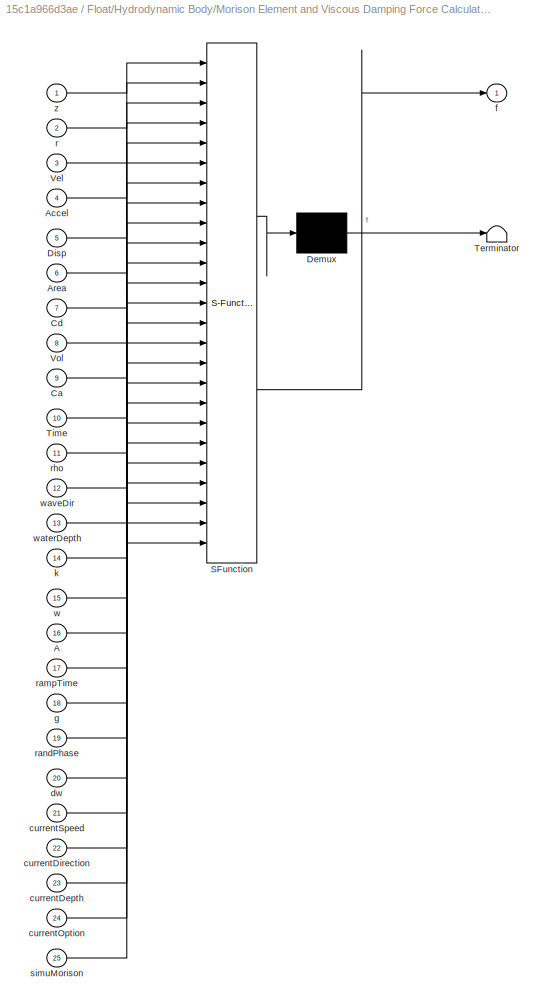
BLOCK [SubSystem] Float/Hydrodynamic Body/Morison Element and Viscous Damping Force Calculation/Morison Element Variant Subsystem/Morison Element On/Irregular Wave Morison Force/MATLAB Function
  ErrorFcn = Stateflow.Translate.translate
  PermitHierarchicalResolution = ExplicitOnly
  Ports = [25, 1]
  RequestExecContextInheritance = off
  SFBlockType = MATLAB Function
  TreatAsAtomicUnit = on
BLOCK [Demux] Float/Hydrodynamic Body/Morison Element and Viscous Damping Force Calculation/Morison Element Variant Subsystem/Morison Element On/Irregular Wave Morison Force/MATLAB Function/ Demux 
  Outputs = 1
  Ports = [1, 1]
BLOCK [S-Function] Float/Hydrodynamic Body/Morison Element and Viscous Damping Force Calculation/Morison Element Variant Subsystem/Morison Element On/Irregular Wave Morison Force/MATLAB Function/ SFunction 
  EnableBusSupport = on
  FunctionName = sf_sfun
  PortCounts = [25 2]
  Ports = [25, 2]
  SFcnIsStateOwnerBlock = off
  SFunctionDeploymentMode = off
  Tag = Stateflow S-Function 26
BLOCK [Terminator] Float/Hydrodynamic Body/Morison Element and Viscous Damping Force Calculation/Morison Element Variant Subsystem/Morison Element On/Irregular Wave Morison Force/MATLAB Function/ Terminator 
BLOCK [Inport] Float/Hydrodynamic Body/Morison Element and Viscous Damping Force Calculation/Morison Element Variant Subsystem/Morison Element On/Irregular Wave Morison Force/MATLAB Function/A
  Port = 16
BLOCK [Inport] Float/Hydrodynamic Body/Morison Element and Viscous Damping Force Calculation/Morison Element Variant Subsystem/Morison Element On/Irregular Wave Morison Force/MATLAB Function/Accel
  Port = 4
BLOCK [Inport] Float/Hydrodynamic Body/Morison Element and Viscous Damping Force Calculation/Morison Element Variant Subsystem/Morison Element On/Irregular Wave Morison Force/MATLAB Function/Area
  Port = 6
BLOCK [Inport] Float/Hydrodynamic Body/Morison Element and Viscous Damping Force Calculation/Morison Element Variant Subsystem/Morison Element On/Irregular Wave Morison Force/MATLAB Function/Ca
  Port = 9
BLOCK [Inport] Float/Hydrodynamic Body/Morison Element and Viscous Damping Force Calculation/Morison Element Variant Subsystem/Morison Element On/Irregular Wave Morison Force/MATLAB Function/Cd
  Port = 7
BLOCK [Inport] Float/Hydrodynamic Body/Morison Element and Viscous Damping Force Calculation/Morison Element Variant Subsystem/Morison Element On/Irregular Wave Morison Force/MATLAB Function/Disp
  Port = 5
BLOCK [Inport] Float/Hydrodynamic Body/Morison Element and Viscous Damping Force Calculation/Morison Element Variant Subsystem/Morison Element On/Irregular Wave Morison Force/MATLAB Function/Time
  Port = 10
BLOCK [Inport] Float/Hydrodynamic Body/Morison Element and Viscous Damping Force Calculation/Morison Element Variant Subsystem/Morison Element On/Irregular Wave Morison Force/MATLAB Function/Vel
  Port = 3
BLOCK [Inport] Float/Hydrodynamic Body/Morison Element and Viscous Damping Force Calculation/Morison Element Variant Subsystem/Morison Element On/Irregular Wave Morison Force/MATLAB Function/Vol
  Port = 8
BLOCK [Inport] Float/Hydrodynamic Body/Morison Element and Viscous Damping Force Calculation/Morison Element Variant Subsystem/Morison Element On/Irregular Wave Morison Force/MATLAB Function/currentDepth
  Port = 23
BLOCK [Inport] Float/Hydrodynamic Body/Morison Element and Viscous Damping Force Calculation/Morison Element Variant Subsystem/Morison Element On/Irregular Wave Morison Force/MATLAB Function/currentDirection
  Port = 22
BLOCK [Inport] Float/Hydrodynamic Body/Morison Element and Viscous Damping Force Calculation/Morison Element Variant Subsystem/Morison Element On/Irregular Wave Morison Force/MATLAB Function/currentOption
  Port = 24
BLOCK [Inport] Float/Hydrodynamic Body/Morison Element and Viscous Damping Force Calculation/Morison Element Variant Subsystem/Morison Element On/Irregular Wave Morison Force/MATLAB Function/currentSpeed
  Port = 21
BLOCK [Inport] Float/Hydrodynamic Body/Morison Element and Viscous Damping Force Calculation/Morison Element Variant Subsystem/Morison Element On/Irregular Wave Morison Force/MATLAB Function/dw
  Port = 20
BLOCK [Outport] Float/Hydrodynamic Body/Morison Element and Viscous Damping Force Calculation/Morison Element Variant Subsystem/Morison Element On/Irregular Wave Morison Force/MATLAB Function/f
BLOCK [Inport] Float/Hydrodynamic Body/Morison Element and Viscous Damping Force Calculation/Morison Element Variant Subsystem/Morison Element On/Irregular Wave Morison Force/MATLAB Function/g
  Port = 18
BLOCK [Inport] Float/Hydrodynamic Body/Morison Element and Viscous Damping Force Calculation/Morison Element Variant Subsystem/Morison Element On/Irregular Wave Morison Force/MATLAB Function/k
  Port = 14
BLOCK [Inport] Float/Hydrodynamic Body/Morison Element and Viscous Damping Force Calculation/Morison Element Variant Subsystem/Morison Element On/Irregular Wave Morison Force/MATLAB Function/r
  Port = 2
BLOCK [Inport] Float/Hydrodynamic Body/Morison Element and Viscous Damping Force Calculation/Morison Element Variant Subsystem/Morison Element On/Irregular Wave Morison Force/MATLAB Function/rampTime
  Port = 17
BLOCK [Inport] Float/Hydrodynamic Body/Morison Element and Viscous Damping Force Calculation/Morison Element Variant Subsystem/Morison Element On/Irregular Wave Morison Force/MATLAB Function/randPhase
  Port = 19
BLOCK [Inport] Float/Hydrodynamic Body/Morison Element and Viscous Damping Force Calculation/Morison Element Variant Subsystem/Morison Element On/Irregular Wave Morison Force/MATLAB Function/rho
  Port = 11
BLOCK [Inport] Float/Hydrodynamic Body/Morison Element and Viscous Damping Force Calculation/Morison Element Variant Subsystem/Morison Element On/Irregular Wave Morison Force/MATLAB Function/simuMorison
  Port = 25
BLOCK [Inport] Float/Hydrodynamic Body/Morison Element and Viscous Damping Force Calculation/Morison Element Variant Subsystem/Morison Element On/Irregular Wave Morison Force/MATLAB Function/w
  Port = 15
BLOCK [Inport] Float/Hydrodynamic Body/Morison Element and Viscous Damping Force Calculation/Morison Element Variant Subsystem/Morison Element On/Irregular Wave Morison Force/MATLAB Function/waterDepth
  Port = 13
BLOCK [Inport] Float/Hydrodynamic Body/Morison Element and Viscous Damping Force Calculation/Morison Element Variant Subsystem/Morison Element On/Irregular Wave Morison Force/MATLAB Function/waveDir
  Port = 12
BLOCK [Inport] Float/Hydrodynamic Body/Morison Element and Viscous Damping Force Calculation/Morison Element Variant Subsystem/Morison Element On/Irregular Wave Morison Force/MATLAB Function/z
BLOCK [Constant] Float/Hydrodynamic Body/Morison Element and Viscous Damping Force Calculation/Morison Element Variant Subsystem/Morison Element On/Irregular Wave Morison Force/Morison Element Option
  Value = body.morisonElement.option
BLOCK [Constant] Float/Hydrodynamic Body/Morison Element and Viscous Damping Force Calculation/Morison Element Variant Subsystem/Morison Element On/Irregular Wave Morison Force/Ramp Function Time
  Value = simu.rampTime
BLOCK [Constant] Float/Hydrodynamic Body/Morison Element and Viscous Damping Force Calculation/Morison Element Variant Subsystem/Morison Element On/Irregular Wave Morison Force/RandomPhaseAngle
  Value = waves.phase
  VectorParams1D = off
BLOCK [Constant] Float/Hydrodynamic Body/Morison Element and Viscous Damping Force Calculation/Morison Element Variant Subsystem/Morison Element On/Irregular Wave Morison Force/Volume
  Value = body.morisonElement.VME
  VectorParams1D = off
BLOCK [Constant] Float/Hydrodynamic Body/Morison Element and Viscous Damping Force Calculation/Morison Element Variant Subsystem/Morison Element On/Irregular Wave Morison Force/WaterDepth
  Value = waves.waterDepth
BLOCK [Constant] Float/Hydrodynamic Body/Morison Element and Viscous Damping Force Calculation/Morison Element Variant Subsystem/Morison Element On/Irregular Wave Morison Force/WaveAmp
  Value = waves.amplitude
BLOCK [Constant] Float/Hydrodynamic Body/Morison Element and Viscous Damping Force Calculation/Morison Element Variant Subsystem/Morison Element On/Irregular Wave Morison Force/WaveFreq
  Value = waves.omega
BLOCK [Constant] Float/Hydrodynamic Body/Morison Element and Viscous Damping Force Calculation/Morison Element Variant Subsystem/Morison Element On/Irregular Wave Morison Force/WaveHeading
  Value = waves.direction
BLOCK [Constant] Float/Hydrodynamic Body/Morison Element and Viscous Damping Force Calculation/Morison Element Variant Subsystem/Morison Element On/Irregular Wave Morison Force/WaveNumber
  Value = waves.wavenumber
BLOCK [Inport] Float/Hydrodynamic Body/Morison Element and Viscous Damping Force Calculation/Morison Element Variant Subsystem/Morison Element On/Irregular Wave Morison Force/acceleration
  Port = 3
BLOCK [Inport] Float/Hydrodynamic Body/Morison Element and Viscous Damping Force Calculation/Morison Element Variant Subsystem/Morison Element On/Irregular Wave Morison Force/displacement
BLOCK [Constant] Float/Hydrodynamic Body/Morison Element and Viscous Damping Force Calculation/Morison Element Variant Subsystem/Morison Element On/Irregular Wave Morison Force/dw
  Value = waves.dOmega
  VectorParams1D = off
BLOCK [Outport] Float/Hydrodynamic Body/Morison Element and Viscous Damping Force Calculation/Morison Element Variant Subsystem/Morison Element On/Irregular Wave Morison Force/morison_force
BLOCK [Constant] Float/Hydrodynamic Body/Morison Element and Viscous Damping Force Calculation/Morison Element Variant Subsystem/Morison Element On/Irregular Wave Morison Force/r_{g}
  Value = body.morisonElement.rgME
  VectorParams1D = off
BLOCK [Inport] Float/Hydrodynamic Body/Morison Element and Viscous Damping Force Calculation/Morison Element Variant Subsystem/Morison Element On/Irregular Wave Morison Force/time
  Port = 4
BLOCK [Inport] Float/Hydrodynamic Body/Morison Element and Viscous Damping Force Calculation/Morison Element Variant Subsystem/Morison Element On/Irregular Wave Morison Force/velocity
  Port = 2
BLOCK [Constant] Float/Hydrodynamic Body/Morison Element and Viscous Damping Force Calculation/Morison Element Variant Subsystem/Morison Element On/Irregular Wave Morison Force/z
  Value = body.morisonElement.z
  VectorParams1D = off
BLOCK [SubSystem] Float/Hydrodynamic Body/Morison Element and Viscous Damping Force Calculation/Morison Element Variant Subsystem/Morison Element On/No Wave Morison Force
  Ports = [4, 1]
  RequestExecContextInheritance = off
  VariantControl = sv_noWave
BLOCK [Constant] Float/Hydrodynamic Body/Morison Element and Viscous Damping Force Calculation/Morison Element Variant Subsystem/Morison Element On/No Wave Morison Force/Area
  Value = body.morisonElement.area
  VectorParams1D = off
BLOCK [Constant] Float/Hydrodynamic Body/Morison Element and Viscous Damping Force Calculation/Morison Element Variant Subsystem/Morison Element On/No Wave Morison Force/Ca
  Value = body.morisonElement.ca
  VectorParams1D = off
BLOCK [Constant] Float/Hydrodynamic Body/Morison Element and Viscous Damping Force Calculation/Morison Element Variant Subsystem/Morison Element On/No Wave Morison Force/Cd
  Value = body.morisonElement.cd
  VectorParams1D = off
BLOCK [Constant] Float/Hydrodynamic Body/Morison Element and Viscous Damping Force Calculation/Morison Element Variant Subsystem/Morison Element On/No Wave Morison Force/Current Depth
  Value = waves.current.depth
BLOCK [Constant] Float/Hydrodynamic Body/Morison Element and Viscous Damping Force Calculation/Morison Element Variant Subsystem/Morison Element On/No Wave Morison Force/Current Direction
  Value = waves.current.direction
BLOCK [Constant] Float/Hydrodynamic Body/Morison Element and Viscous Damping Force Calculation/Morison Element Variant Subsystem/Morison Element On/No Wave Morison Force/Current Option
  Value = waves.current.option
BLOCK [Constant] Float/Hydrodynamic Body/Morison Element and Viscous Damping Force Calculation/Morison Element Variant Subsystem/Morison Element On/No Wave Morison Force/Current Speed
  Value = waves.current.speed
BLOCK [Constant] Float/Hydrodynamic Body/Morison Element and Viscous Damping Force Calculation/Morison Element Variant Subsystem/Morison Element On/No Wave Morison Force/Density
  Value = simu.rho
BLOCK [Constant] Float/Hydrodynamic Body/Morison Element and Viscous Damping Force Calculation/Morison Element Variant Subsystem/Morison Element On/No Wave Morison Force/Morison Element Option
  Value = body.morisonElement.option
BLOCK [SubSystem] Float/Hydrodynamic Body/Morison Element and Viscous Damping Force Calculation/Morison Element Variant Subsystem/Morison Element On/No Wave Morison Force/MorisonElement(s)
  ErrorFcn = Stateflow.Translate.translate
  PermitHierarchicalResolution = ExplicitOnly
  Ports = [17, 1]
  RequestExecContextInheritance = off
  SFBlockType = MATLAB Function
  TreatAsAtomicUnit = on
BLOCK [Demux] Float/Hydrodynamic Body/Morison Element and Viscous Damping Force Calculation/Morison Element Variant Subsystem/Morison Element On/No Wave Morison Force/MorisonElement(s)/ Demux 
  Outputs = 1
  Ports = [1, 1]
BLOCK [S-Function] Float/Hydrodynamic Body/Morison Element and Viscous Damping Force Calculation/Morison Element Variant Subsystem/Morison Element On/No Wave Morison Force/MorisonElement(s)/ SFunction 
  EnableBusSupport = on
  FunctionName = sf_sfun
  PortCounts = [17 2]
  Ports = [17, 2]
  SFcnIsStateOwnerBlock = off
  SFunctionDeploymentMode = off
  Tag = Stateflow S-Function 27
BLOCK [Terminator] Float/Hydrodynamic Body/Morison Element and Viscous Damping Force Calculation/Morison Element Variant Subsystem/Morison Element On/No Wave Morison Force/MorisonElement(s)/ Terminator 
BLOCK [Inport] Float/Hydrodynamic Body/Morison Element and Viscous Damping Force Calculation/Morison Element Variant Subsystem/Morison Element On/No Wave Morison Force/MorisonElement(s)/Accel
  Port = 4
BLOCK [Inport] Float/Hydrodynamic Body/Morison Element and Viscous Damping Force Calculation/Morison Element Variant Subsystem/Morison Element On/No Wave Morison Force/MorisonElement(s)/Area
  Port = 6
BLOCK [Inport] Float/Hydrodynamic Body/Morison Element and Viscous Damping Force Calculation/Morison Element Variant Subsystem/Morison Element On/No Wave Morison Force/MorisonElement(s)/Ca
  Port = 9
BLOCK [Inport] Float/Hydrodynamic Body/Morison Element and Viscous Damping Force Calculation/Morison Element Variant Subsystem/Morison Element On/No Wave Morison Force/MorisonElement(s)/Cd
  Port = 7
BLOCK [Inport] Float/Hydrodynamic Body/Morison Element and Viscous Damping Force Calculation/Morison Element Variant Subsystem/Morison Element On/No Wave Morison Force/MorisonElement(s)/Disp
  Port = 5
BLOCK [Inport] Float/Hydrodynamic Body/Morison Element and Viscous Damping Force Calculation/Morison Element Variant Subsystem/Morison Element On/No Wave Morison Force/MorisonElement(s)/Time
  Port = 10
BLOCK [Inport] Float/Hydrodynamic Body/Morison Element and Viscous Damping Force Calculation/Morison Element Variant Subsystem/Morison Element On/No Wave Morison Force/MorisonElement(s)/Vel
  Port = 3
BLOCK [Inport] Float/Hydrodynamic Body/Morison Element and Viscous Damping Force Calculation/Morison Element Variant Subsystem/Morison Element On/No Wave Morison Force/MorisonElement(s)/Vol
  Port = 8
BLOCK [Inport] Float/Hydrodynamic Body/Morison Element and Viscous Damping Force Calculation/Morison Element Variant Subsystem/Morison Element On/No Wave Morison Force/MorisonElement(s)/bodyMorison
  Port = 17
BLOCK [Inport] Float/Hydrodynamic Body/Morison Element and Viscous Damping Force Calculation/Morison Element Variant Subsystem/Morison Element On/No Wave Morison Force/MorisonElement(s)/currentDepth
  Port = 15
BLOCK [Inport] Float/Hydrodynamic Body/Morison Element and Viscous Damping Force Calculation/Morison Element Variant Subsystem/Morison Element On/No Wave Morison Force/MorisonElement(s)/currentDirection
  Port = 14
BLOCK [Inport] Float/Hydrodynamic Body/Morison Element and Viscous Damping Force Calculation/Morison Element Variant Subsystem/Morison Element On/No Wave Morison Force/MorisonElement(s)/currentOption
  Port = 16
BLOCK [Inport] Float/Hydrodynamic Body/Morison Element and Viscous Damping Force Calculation/Morison Element Variant Subsystem/Morison Element On/No Wave Morison Force/MorisonElement(s)/currentSpeed
  Port = 13
BLOCK [Outport] Float/Hydrodynamic Body/Morison Element and Viscous Damping Force Calculation/Morison Element Variant Subsystem/Morison Element On/No Wave Morison Force/MorisonElement(s)/f
BLOCK [Inport] Float/Hydrodynamic Body/Morison Element and Viscous Damping Force Calculation/Morison Element Variant Subsystem/Morison Element On/No Wave Morison Force/MorisonElement(s)/r
  Port = 2
BLOCK [Inport] Float/Hydrodynamic Body/Morison Element and Viscous Damping Force Calculation/Morison Element Variant Subsystem/Morison Element On/No Wave Morison Force/MorisonElement(s)/rampTime
  Port = 12
BLOCK [Inport] Float/Hydrodynamic Body/Morison Element and Viscous Damping Force Calculation/Morison Element Variant Subsystem/Morison Element On/No Wave Morison Force/MorisonElement(s)/rho
  Port = 11
BLOCK [Inport] Float/Hydrodynamic Body/Morison Element and Viscous Damping Force Calculation/Morison Element Variant Subsystem/Morison Element On/No Wave Morison Force/MorisonElement(s)/z
BLOCK [Constant] Float/Hydrodynamic Body/Morison Element and Viscous Damping Force Calculation/Morison Element Variant Subsystem/Morison Element On/No Wave Morison Force/Ramp Function Time
  Value = simu.rampTime
BLOCK [Constant] Float/Hydrodynamic Body/Morison Element and Viscous Damping Force Calculation/Morison Element Variant Subsystem/Morison Element On/No Wave Morison Force/Volume
  Value = body.morisonElement.VME
  VectorParams1D = off
BLOCK [Inport] Float/Hydrodynamic Body/Morison Element and Viscous Damping Force Calculation/Morison Element Variant Subsystem/Morison Element On/No Wave Morison Force/acceleration
  Port = 3
BLOCK [Inport] Float/Hydrodynamic Body/Morison Element and Viscous Damping Force Calculation/Morison Element Variant Subsystem/Morison Element On/No Wave Morison Force/displacement
BLOCK [Outport] Float/Hydrodynamic Body/Morison Element and Viscous Damping Force Calculation/Morison Element Variant Subsystem/Morison Element On/No Wave Morison Force/morison_force
BLOCK [Constant] Float/Hydrodynamic Body/Morison Element and Viscous Damping Force Calculation/Morison Element Variant Subsystem/Morison Element On/No Wave Morison Force/r_{g}
  Value = body.morisonElement.rgME
  VectorParams1D = off
BLOCK [Inport] Float/Hydrodynamic Body/Morison Element and Viscous Damping Force Calculation/Morison Element Variant Subsystem/Morison Element On/No Wave Morison Force/time
  Port = 4
BLOCK [Inport] Float/Hydrodynamic Body/Morison Element and Viscous Damping Force Calculation/Morison Element Variant Subsystem/Morison Element On/No Wave Morison Force/velocity
  Port = 2
BLOCK [Constant] Float/Hydrodynamic Body/Morison Element and Viscous Damping Force Calculation/Morison Element Variant Subsystem/Morison Element On/No Wave Morison Force/z
  Value = body.morisonElement.z
  VectorParams1D = off
BLOCK [SubSystem] Float/Hydrodynamic Body/Morison Element and Viscous Damping Force Calculation/Morison Element Variant Subsystem/Morison Element On/Regular Wave Morison Force
  Ports = [4, 1]
  RequestExecContextInheritance = off
  SystemSampleTime = simu.morisonDt
  TreatAsAtomicUnit = on
  VariantControl = sv_regularWaves_b1
BLOCK [Constant] Float/Hydrodynamic Body/Morison Element and Viscous Damping Force Calculation/Morison Element Variant Subsystem/Morison Element On/Regular Wave Morison Force/Area
  Value = body.morisonElement.area
  VectorParams1D = off
BLOCK [Constant] Float/Hydrodynamic Body/Morison Element and Viscous Damping Force Calculation/Morison Element Variant Subsystem/Morison Element On/Regular Wave Morison Force/Ca
  Value = body.morisonElement.ca
  VectorParams1D = off
BLOCK [Constant] Float/Hydrodynamic Body/Morison Element and Viscous Damping Force Calculation/Morison Element Variant Subsystem/Morison Element On/Regular Wave Morison Force/Cd
  Value = body.morisonElement.cd
  VectorParams1D = off
BLOCK [Constant] Float/Hydrodynamic Body/Morison Element and Viscous Damping Force Calculation/Morison Element Variant Subsystem/Morison Element On/Regular Wave Morison Force/Current Depth
  Value = waves.current.depth
BLOCK [Constant] Float/Hydrodynamic Body/Morison Element and Viscous Damping Force Calculation/Morison Element Variant Subsystem/Morison Element On/Regular Wave Morison Force/Current Direction
  Value = waves.current.direction
BLOCK [Constant] Float/Hydrodynamic Body/Morison Element and Viscous Damping Force Calculation/Morison Element Variant Subsystem/Morison Element On/Regular Wave Morison Force/Current Option
  Value = waves.current.option
BLOCK [Constant] Float/Hydrodynamic Body/Morison Element and Viscous Damping Force Calculation/Morison Element Variant Subsystem/Morison Element On/Regular Wave Morison Force/Current Speed
  Value = waves.current.speed
BLOCK [Constant] Float/Hydrodynamic Body/Morison Element and Viscous Damping Force Calculation/Morison Element Variant Subsystem/Morison Element On/Regular Wave Morison Force/Density
  Value = simu.rho
BLOCK [Constant] Float/Hydrodynamic Body/Morison Element and Viscous Damping Force Calculation/Morison Element Variant Subsystem/Morison Element On/Regular Wave Morison Force/Gravity
  Value = simu.gravity
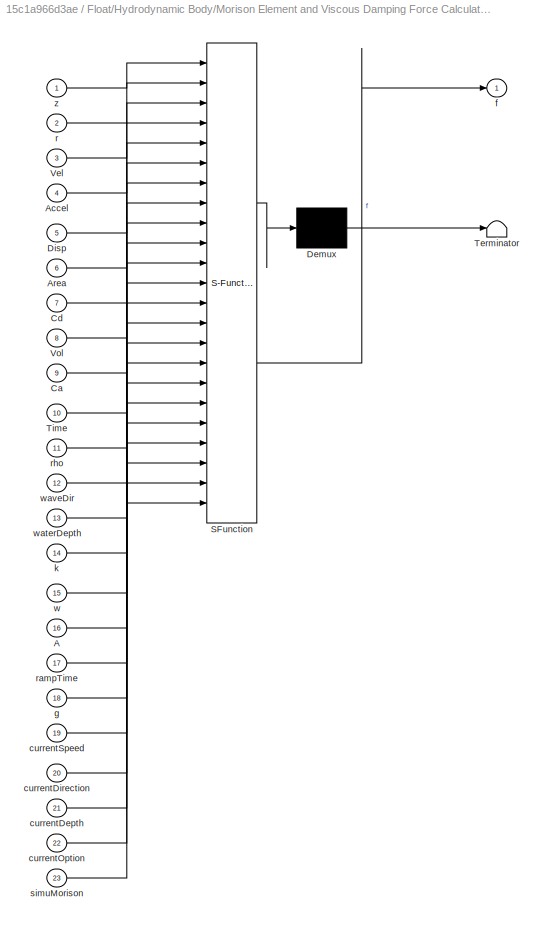
BLOCK [SubSystem] Float/Hydrodynamic Body/Morison Element and Viscous Damping Force Calculation/Morison Element Variant Subsystem/Morison Element On/Regular Wave Morison Force/MATLAB Function
  ErrorFcn = Stateflow.Translate.translate
  PermitHierarchicalResolution = ExplicitOnly
  Ports = [23, 1]
  RequestExecContextInheritance = off
  SFBlockType = MATLAB Function
  TreatAsAtomicUnit = on
BLOCK [Demux] Float/Hydrodynamic Body/Morison Element and Viscous Damping Force Calculation/Morison Element Variant Subsystem/Morison Element On/Regular Wave Morison Force/MATLAB Function/ Demux 
  Outputs = 1
  Ports = [1, 1]
BLOCK [S-Function] Float/Hydrodynamic Body/Morison Element and Viscous Damping Force Calculation/Morison Element Variant Subsystem/Morison Element On/Regular Wave Morison Force/MATLAB Function/ SFunction 
  EnableBusSupport = on
  FunctionName = sf_sfun
  PortCounts = [23 2]
  Ports = [23, 2]
  SFcnIsStateOwnerBlock = off
  SFunctionDeploymentMode = off
  Tag = Stateflow S-Function 28
BLOCK [Terminator] Float/Hydrodynamic Body/Morison Element and Viscous Damping Force Calculation/Morison Element Variant Subsystem/Morison Element On/Regular Wave Morison Force/MATLAB Function/ Terminator 
BLOCK [Inport] Float/Hydrodynamic Body/Morison Element and Viscous Damping Force Calculation/Morison Element Variant Subsystem/Morison Element On/Regular Wave Morison Force/MATLAB Function/A
  Port = 16
BLOCK [Inport] Float/Hydrodynamic Body/Morison Element and Viscous Damping Force Calculation/Morison Element Variant Subsystem/Morison Element On/Regular Wave Morison Force/MATLAB Function/Accel
  Port = 4
BLOCK [Inport] Float/Hydrodynamic Body/Morison Element and Viscous Damping Force Calculation/Morison Element Variant Subsystem/Morison Element On/Regular Wave Morison Force/MATLAB Function/Area
  Port = 6
BLOCK [Inport] Float/Hydrodynamic Body/Morison Element and Viscous Damping Force Calculation/Morison Element Variant Subsystem/Morison Element On/Regular Wave Morison Force/MATLAB Function/Ca
  Port = 9
BLOCK [Inport] Float/Hydrodynamic Body/Morison Element and Viscous Damping Force Calculation/Morison Element Variant Subsystem/Morison Element On/Regular Wave Morison Force/MATLAB Function/Cd
  Port = 7
BLOCK [Inport] Float/Hydrodynamic Body/Morison Element and Viscous Damping Force Calculation/Morison Element Variant Subsystem/Morison Element On/Regular Wave Morison Force/MATLAB Function/Disp
  Port = 5
BLOCK [Inport] Float/Hydrodynamic Body/Morison Element and Viscous Damping Force Calculation/Morison Element Variant Subsystem/Morison Element On/Regular Wave Morison Force/MATLAB Function/Time
  Port = 10
BLOCK [Inport] Float/Hydrodynamic Body/Morison Element and Viscous Damping Force Calculation/Morison Element Variant Subsystem/Morison Element On/Regular Wave Morison Force/MATLAB Function/Vel
  Port = 3
BLOCK [Inport] Float/Hydrodynamic Body/Morison Element and Viscous Damping Force Calculation/Morison Element Variant Subsystem/Morison Element On/Regular Wave Morison Force/MATLAB Function/Vol
  Port = 8
BLOCK [Inport] Float/Hydrodynamic Body/Morison Element and Viscous Damping Force Calculation/Morison Element Variant Subsystem/Morison Element On/Regular Wave Morison Force/MATLAB Function/currentDepth
  Port = 21
BLOCK [Inport] Float/Hydrodynamic Body/Morison Element and Viscous Damping Force Calculation/Morison Element Variant Subsystem/Morison Element On/Regular Wave Morison Force/MATLAB Function/currentDirection
  Port = 20
BLOCK [Inport] Float/Hydrodynamic Body/Morison Element and Viscous Damping Force Calculation/Morison Element Variant Subsystem/Morison Element On/Regular Wave Morison Force/MATLAB Function/currentOption
  Port = 22
BLOCK [Inport] Float/Hydrodynamic Body/Morison Element and Viscous Damping Force Calculation/Morison Element Variant Subsystem/Morison Element On/Regular Wave Morison Force/MATLAB Function/currentSpeed
  Port = 19
BLOCK [Outport] Float/Hydrodynamic Body/Morison Element and Viscous Damping Force Calculation/Morison Element Variant Subsystem/Morison Element On/Regular Wave Morison Force/MATLAB Function/f
BLOCK [Inport] Float/Hydrodynamic Body/Morison Element and Viscous Damping Force Calculation/Morison Element Variant Subsystem/Morison Element On/Regular Wave Morison Force/MATLAB Function/g
  Port = 18
BLOCK [Inport] Float/Hydrodynamic Body/Morison Element and Viscous Damping Force Calculation/Morison Element Variant Subsystem/Morison Element On/Regular Wave Morison Force/MATLAB Function/k
  Port = 14
BLOCK [Inport] Float/Hydrodynamic Body/Morison Element and Viscous Damping Force Calculation/Morison Element Variant Subsystem/Morison Element On/Regular Wave Morison Force/MATLAB Function/r
  Port = 2
BLOCK [Inport] Float/Hydrodynamic Body/Morison Element and Viscous Damping Force Calculation/Morison Element Variant Subsystem/Morison Element On/Regular Wave Morison Force/MATLAB Function/rampTime
  Port = 17
BLOCK [Inport] Float/Hydrodynamic Body/Morison Element and Viscous Damping Force Calculation/Morison Element Variant Subsystem/Morison Element On/Regular Wave Morison Force/MATLAB Function/rho
  Port = 11
BLOCK [Inport] Float/Hydrodynamic Body/Morison Element and Viscous Damping Force Calculation/Morison Element Variant Subsystem/Morison Element On/Regular Wave Morison Force/MATLAB Function/simuMorison
  Port = 23
BLOCK [Inport] Float/Hydrodynamic Body/Morison Element and Viscous Damping Force Calculation/Morison Element Variant Subsystem/Morison Element On/Regular Wave Morison Force/MATLAB Function/w
  Port = 15
BLOCK [Inport] Float/Hydrodynamic Body/Morison Element and Viscous Damping Force Calculation/Morison Element Variant Subsystem/Morison Element On/Regular Wave Morison Force/MATLAB Function/waterDepth
  Port = 13
BLOCK [Inport] Float/Hydrodynamic Body/Morison Element and Viscous Damping Force Calculation/Morison Element Variant Subsystem/Morison Element On/Regular Wave Morison Force/MATLAB Function/waveDir
  Port = 12
BLOCK [Inport] Float/Hydrodynamic Body/Morison Element and Viscous Damping Force Calculation/Morison Element Variant Subsystem/Morison Element On/Regular Wave Morison Force/MATLAB Function/z
BLOCK [Constant] Float/Hydrodynamic Body/Morison Element and Viscous Damping Force Calculation/Morison Element Variant Subsystem/Morison Element On/Regular Wave Morison Force/Morison Element Option
  Value = body.morisonElement.option
BLOCK [Constant] Float/Hydrodynamic Body/Morison Element and Viscous Damping Force Calculation/Morison Element Variant Subsystem/Morison Element On/Regular Wave Morison Force/Ramp Function Time
  Value = simu.rampTime
BLOCK [Constant] Float/Hydrodynamic Body/Morison Element and Viscous Damping Force Calculation/Morison Element Variant Subsystem/Morison Element On/Regular Wave Morison Force/Volume
  Value = body.morisonElement.VME
  VectorParams1D = off
BLOCK [Constant] Float/Hydrodynamic Body/Morison Element and Viscous Damping Force Calculation/Morison Element Variant Subsystem/Morison Element On/Regular Wave Morison Force/WaterDepth
  Value = waves.waterDepth
BLOCK [Constant] Float/Hydrodynamic Body/Morison Element and Viscous Damping Force Calculation/Morison Element Variant Subsystem/Morison Element On/Regular Wave Morison Force/WaveAmp
  Value = waves.amplitude
BLOCK [Constant] Float/Hydrodynamic Body/Morison Element and Viscous Damping Force Calculation/Morison Element Variant Subsystem/Morison Element On/Regular Wave Morison Force/WaveFreq
  Value = waves.omega
BLOCK [Constant] Float/Hydrodynamic Body/Morison Element and Viscous Damping Force Calculation/Morison Element Variant Subsystem/Morison Element On/Regular Wave Morison Force/WaveHeading
  Value = waves.direction
BLOCK [Constant] Float/Hydrodynamic Body/Morison Element and Viscous Damping Force Calculation/Morison Element Variant Subsystem/Morison Element On/Regular Wave Morison Force/WaveNumber
  Value = waves.wavenumber
BLOCK [Inport] Float/Hydrodynamic Body/Morison Element and Viscous Damping Force Calculation/Morison Element Variant Subsystem/Morison Element On/Regular Wave Morison Force/acceleration
  Port = 3
BLOCK [Inport] Float/Hydrodynamic Body/Morison Element and Viscous Damping Force Calculation/Morison Element Variant Subsystem/Morison Element On/Regular Wave Morison Force/displacement
BLOCK [Outport] Float/Hydrodynamic Body/Morison Element and Viscous Damping Force Calculation/Morison Element Variant Subsystem/Morison Element On/Regular Wave Morison Force/morison_force
BLOCK [Constant] Float/Hydrodynamic Body/Morison Element and Viscous Damping Force Calculation/Morison Element Variant Subsystem/Morison Element On/Regular Wave Morison Force/r_{g}
  Value = body.morisonElement.rgME
  VectorParams1D = off
BLOCK [Inport] Float/Hydrodynamic Body/Morison Element and Viscous Damping Force Calculation/Morison Element Variant Subsystem/Morison Element On/Regular Wave Morison Force/time
  Port = 4
BLOCK [Inport] Float/Hydrodynamic Body/Morison Element and Viscous Damping Force Calculation/Morison Element Variant Subsystem/Morison Element On/Regular Wave Morison Force/velocity
  Port = 2
BLOCK [Constant] Float/Hydrodynamic Body/Morison Element and Viscous Damping Force Calculation/Morison Element Variant Subsystem/Morison Element On/Regular Wave Morison Force/z
  Value = body.morisonElement.z
  VectorParams1D = off
BLOCK [Inport] Float/Hydrodynamic Body/Morison Element and Viscous Damping Force Calculation/Morison Element Variant Subsystem/Morison Element On/acceleration
  Port = 3
BLOCK [Inport] Float/Hydrodynamic Body/Morison Element and Viscous Damping Force Calculation/Morison Element Variant Subsystem/Morison Element On/displacement
BLOCK [Outport] Float/Hydrodynamic Body/Morison Element and Viscous Damping Force Calculation/Morison Element Variant Subsystem/Morison Element On/morison_force
BLOCK [Inport] Float/Hydrodynamic Body/Morison Element and Viscous Damping Force Calculation/Morison Element Variant Subsystem/Morison Element On/time
  Port = 4
BLOCK [Inport] Float/Hydrodynamic Body/Morison Element and Viscous Damping Force Calculation/Morison Element Variant Subsystem/Morison Element On/velocity
  Port = 2
BLOCK [Inport] Float/Hydrodynamic Body/Morison Element and Viscous Damping Force Calculation/Morison Element Variant Subsystem/acceleration
  Port = 3
BLOCK [Inport] Float/Hydrodynamic Body/Morison Element and Viscous Damping Force Calculation/Morison Element Variant Subsystem/displacement
BLOCK [Outport] Float/Hydrodynamic Body/Morison Element and Viscous Damping Force Calculation/Morison Element Variant Subsystem/morison_force
BLOCK [Inport] Float/Hydrodynamic Body/Morison Element and Viscous Damping Force Calculation/Morison Element Variant Subsystem/time
  Port = 4
BLOCK [Inport] Float/Hydrodynamic Body/Morison Element and Viscous Damping Force Calculation/Morison Element Variant Subsystem/velocity
  Port = 2
BLOCK [Product] Float/Hydrodynamic Body/Morison Element and Viscous Damping Force Calculation/Product
  Ports = [2, 1]
BLOCK [Product] Float/Hydrodynamic Body/Morison Element and Viscous Damping Force Calculation/Product1
  Multiplication = Matrix(*)
  Ports = [2, 1]
BLOCK [Inport] Float/Hydrodynamic Body/Morison Element and Viscous Damping Force Calculation/Time
  Port = 4
BLOCK [TransportDelay] Float/Hydrodynamic Body/Morison Element and Viscous Damping Force Calculation/Transport Delay
  DelayTime = 10e-8
  Ports = [1, 1]
BLOCK [Inport] Float/Hydrodynamic Body/Morison Element and Viscous Damping Force Calculation/Velocity
  Port = 3
BLOCK [Sum] Float/Hydrodynamic Body/Morison Element and Viscous Damping Force Calculation/VisSum 
  IconShape = rectangular
  Inputs = +-
  Ports = [2, 1]
BLOCK [Constant] Float/Hydrodynamic Body/Morison Element and Viscous Damping Force Calculation/Viscous Damping Matrix (diagonal) 
  Value = body.hydroForce.quadDrag
BLOCK [Mux] Float/Hydrodynamic Body/Mux
  DisplayOption = bar
  Inputs = 3
  Ports = [3, 1]
BLOCK [SubSystem] Float/Hydrodynamic Body/Nonlinear Wave Elevation
  Ports = [2, 1]
  RequestExecContextInheritance = off
  SystemSampleTime = simu.nonlinearDt
  TreatAsAtomicUnit = on
BLOCK [Sum] Float/Hydrodynamic Body/Nonlinear Wave Elevation/Add
  IconShape = rectangular
  Inputs = +-
  Ports = [2, 1]
BLOCK [Constant] Float/Hydrodynamic Body/Nonlinear Wave Elevation/Center of Gravity
  Value = body.centerGravity
BLOCK [Constant] Float/Hydrodynamic Body/Nonlinear Wave Elevation/Constant
  Value = zeros(1,body.dof-3)
BLOCK [Inport] Float/Hydrodynamic Body/Nonlinear Wave Elevation/Displacement
BLOCK [SubSystem] Float/Hydrodynamic Body/Nonlinear Wave Elevation/Linear or Instantaneous Free Surface
  Ports = [2, 1]
  RequestExecContextInheritance = off
  Variant = on
BLOCK [Inport] Float/Hydrodynamic Body/Nonlinear Wave Elevation/Linear or Instantaneous Free Surface/In1
BLOCK [Inport] Float/Hydrodynamic Body/Nonlinear Wave Elevation/Linear or Instantaneous Free Surface/In2
  Port = 2
BLOCK [SubSystem] Float/Hydrodynamic Body/Nonlinear Wave Elevation/Linear or Instantaneous Free Surface/Instantaneous Water Free Surface
  Ports = [2, 1]
  RequestExecContextInheritance = off
  VariantControl = sv_b1_instFS
BLOCK [Constant] Float/Hydrodynamic Body/Nonlinear Wave Elevation/Linear or Instantaneous Free Surface/Instantaneous Water Free Surface/Center of Gravity
  Value = body.centerGravity
BLOCK [Constant] Float/Hydrodynamic Body/Nonlinear Wave Elevation/Linear or Instantaneous Free Surface/Instantaneous Water Free Surface/Frequency Spacing
  Value = waves.dOmega
BLOCK [Inport] Float/Hydrodynamic Body/Nonlinear Wave Elevation/Linear or Instantaneous Free Surface/Instantaneous Water Free Surface/In1
BLOCK [Inport] Float/Hydrodynamic Body/Nonlinear Wave Elevation/Linear or Instantaneous Free Surface/Instantaneous Water Free Surface/In2
  Port = 2
BLOCK [SubSystem] Float/Hydrodynamic Body/Nonlinear Wave Elevation/Linear or Instantaneous Free Surface/Instantaneous Water Free Surface/Instantaneous FS
  ErrorFcn = Stateflow.Translate.translate
  PermitHierarchicalResolution = ExplicitOnly
  Ports = [12, 1]
  RequestExecContextInheritance = off
  SFBlockType = MATLAB Function
  TreatAsAtomicUnit = on
BLOCK [Demux] Float/Hydrodynamic Body/Nonlinear Wave Elevation/Linear or Instantaneous Free Surface/Instantaneous Water Free Surface/Instantaneous FS/ Demux 
  Outputs = 1
  Ports = [1, 1]
BLOCK [S-Function] Float/Hydrodynamic Body/Nonlinear Wave Elevation/Linear or Instantaneous Free Surface/Instantaneous Water Free Surface/Instantaneous FS/ SFunction 
  EnableBusSupport = on
  FunctionName = sf_sfun
  PortCounts = [12 2]
  Ports = [12, 2]
  SFcnIsStateOwnerBlock = off
  SFunctionDeploymentMode = off
  Tag = Stateflow S-Function 29
BLOCK [Terminator] Float/Hydrodynamic Body/Nonlinear Wave Elevation/Linear or Instantaneous Free Surface/Instantaneous Water Free Surface/Instantaneous FS/ Terminator 
BLOCK [Inport] Float/Hydrodynamic Body/Nonlinear Wave Elevation/Linear or Instantaneous Free Surface/Instantaneous Water Free Surface/Instantaneous FS/AH
  Port = 4
BLOCK [Inport] Float/Hydrodynamic Body/Nonlinear Wave Elevation/Linear or Instantaneous Free Surface/Instantaneous Water Free Surface/Instantaneous FS/center
  Port = 2
BLOCK [Inport] Float/Hydrodynamic Body/Nonlinear Wave Elevation/Linear or Instantaneous Free Surface/Instantaneous Water Free Surface/Instantaneous FS/cg
  Port = 3
BLOCK [Inport] Float/Hydrodynamic Body/Nonlinear Wave Elevation/Linear or Instantaneous Free Surface/Instantaneous Water Free Surface/Instantaneous FS/dw
  Port = 6
BLOCK [Outport] Float/Hydrodynamic Body/Nonlinear Wave Elevation/Linear or Instantaneous Free Surface/Instantaneous Water Free Surface/Instantaneous FS/f
BLOCK [Inport] Float/Hydrodynamic Body/Nonlinear Wave Elevation/Linear or Instantaneous Free Surface/Instantaneous Water Free Surface/Instantaneous FS/k
  Port = 7
BLOCK [Inport] Float/Hydrodynamic Body/Nonlinear Wave Elevation/Linear or Instantaneous Free Surface/Instantaneous Water Free Surface/Instantaneous FS/phaseRand
  Port = 11
BLOCK [Inport] Float/Hydrodynamic Body/Nonlinear Wave Elevation/Linear or Instantaneous Free Surface/Instantaneous Water Free Surface/Instantaneous FS/rampT
  Port = 10
BLOCK [Inport] Float/Hydrodynamic Body/Nonlinear Wave Elevation/Linear or Instantaneous Free Surface/Instantaneous Water Free Surface/Instantaneous FS/t
  Port = 9
BLOCK [Inport] Float/Hydrodynamic Body/Nonlinear Wave Elevation/Linear or Instantaneous Free Surface/Instantaneous Water Free Surface/Instantaneous FS/typeNum
  Port = 8
BLOCK [Inport] Float/Hydrodynamic Body/Nonlinear Wave Elevation/Linear or Instantaneous Free Surface/Instantaneous Water Free Surface/Instantaneous FS/w
  Port = 5
BLOCK [Inport] Float/Hydrodynamic Body/Nonlinear Wave Elevation/Linear or Instantaneous Free Surface/Instantaneous Water Free Surface/Instantaneous FS/waveDir
  Port = 12
BLOCK [Inport] Float/Hydrodynamic Body/Nonlinear Wave Elevation/Linear or Instantaneous Free Surface/Instantaneous Water Free Surface/Instantaneous FS/x
BLOCK [Outport] Float/Hydrodynamic Body/Nonlinear Wave Elevation/Linear or Instantaneous Free Surface/Instantaneous Water Free Surface/Out1
BLOCK [Constant] Float/Hydrodynamic Body/Nonlinear Wave Elevation/Linear or Instantaneous Free Surface/Instantaneous Water Free Surface/Ramp Time
  Value = simu.rampTime
BLOCK [Constant] Float/Hydrodynamic Body/Nonlinear Wave Elevation/Linear or Instantaneous Free Surface/Instantaneous Water Free Surface/STL Centers
  Value = body.geometry.center
BLOCK [Constant] Float/Hydrodynamic Body/Nonlinear Wave Elevation/Linear or Instantaneous Free Surface/Instantaneous Water Free Surface/Wave Amplitude
  Value = waves.amplitude
BLOCK [Constant] Float/Hydrodynamic Body/Nonlinear Wave Elevation/Linear or Instantaneous Free Surface/Instantaneous Water Free Surface/Wave Direction
  Value = waves.direction
BLOCK [Constant] Float/Hydrodynamic Body/Nonlinear Wave Elevation/Linear or Instantaneous Free Surface/Instantaneous Water Free Surface/Wave Frequency
  Value = waves.omega
BLOCK [Constant] Float/Hydrodynamic Body/Nonlinear Wave Elevation/Linear or Instantaneous Free Surface/Instantaneous Water Free Surface/Wave Number
  Value = waves.wavenumber
BLOCK [Constant] Float/Hydrodynamic Body/Nonlinear Wave Elevation/Linear or Instantaneous Free Surface/Instantaneous Water Free Surface/Wave Random Phase
  Value = waves.phase
BLOCK [Constant] Float/Hydrodynamic Body/Nonlinear Wave Elevation/Linear or Instantaneous Free Surface/Instantaneous Water Free Surface/Wave Type Number
  Value = waves.typeNum
BLOCK [SubSystem] Float/Hydrodynamic Body/Nonlinear Wave Elevation/Linear or Instantaneous Free Surface/Mean Water Free Surface
  Ports = [0, 1]
  RequestExecContextInheritance = off
  VariantControl = sv_b1_meanFS
BLOCK [Outport] Float/Hydrodynamic Body/Nonlinear Wave Elevation/Linear or Instantaneous Free Surface/Mean Water Free Surface/Out1
BLOCK [Constant] Float/Hydrodynamic Body/Nonlinear Wave Elevation/Linear or Instantaneous Free Surface/Mean Water Free Surface/zero
  Value = 0
BLOCK [Outport] Float/Hydrodynamic Body/Nonlinear Wave Elevation/Linear or Instantaneous Free Surface/Out1
BLOCK [Mux] Float/Hydrodynamic Body/Nonlinear Wave Elevation/Mux
  DisplayOption = bar
  Inputs = 2
  Ports = [2, 1]
BLOCK [Inport] Float/Hydrodynamic Body/Nonlinear Wave Elevation/Time
  Port = 2
BLOCK [Outport] Float/Hydrodynamic Body/Nonlinear Wave Elevation/Wave Elevation
BLOCK [SubSystem] Float/Hydrodynamic Body/Structure
  Ports = [1, 1, 0, 0, 0, 0, 1]
  RequestExecContextInheritance = off
BLOCK [Reference] Float/Hydrodynamic Body/Structure/Body Properties  REF=sm_lib/Body Elements/File Solid
  Ports = [0, 0, 0, 0, 0, 0, 1]
  SourceBlock = sm_lib/Body Elements/File Solid
  SourceProductBaseCode = MS
  SourceType = File Solid
BLOCK [PMIOPort] Float/Hydrodynamic Body/Structure/Conn Free Surface
  Side = Right
BLOCK [Reference] Float/Hydrodynamic Body/Structure/External Force and Torque  REF=sm_lib/Forces and
Torques/External Force
and Torque
  Ports = [0, 0, 0, 0, 0, 2, 1]
  SourceBlock = sm_lib/Forces and\nTorques/External Force\nand Torque
  SourceProductBaseCode = MS
  SourceType = External Force\nand Torque
BLOCK [SubSystem] Float/Hydrodynamic Body/Structure/Motion Sensor
  NameLocation = left
  Ports = [0, 1, 0, 0, 0, 1, 1]
  RequestExecContextInheritance = off
BLOCK [PMIOPort] Float/Hydrodynamic Body/Structure/Motion Sensor/B
  Port = 2
  Side = Left
BLOCK [BusCreator] Float/Hydrodynamic Body/Structure/Motion Sensor/Bus Creator
  DisplayOption = bar
  InheritFromInputs = on
  Inputs = 3
  Ports = [3, 1]
BLOCK [PMIOPort] Float/Hydrodynamic Body/Structure/Motion Sensor/F
  Side = Right
BLOCK [Mux] Float/Hydrodynamic Body/Structure/Motion Sensor/Mux
  DisplayOption = bar
  Ports = [4, 1]
BLOCK [Mux] Float/Hydrodynamic Body/Structure/Motion Sensor/Mux1
  DisplayOption = bar
  Inputs = 6
  Ports = [6, 1]
BLOCK [Mux] Float/Hydrodynamic Body/Structure/Motion Sensor/Mux2
  DisplayOption = bar
  Inputs = 6
  Ports = [6, 1]
BLOCK [Reference] Float/Hydrodynamic Body/Structure/Motion Sensor/PS-Simulink Converter  REF=nesl_utility/PS-Simulink
Converter
  Ports = [0, 1, 0, 0, 0, 1]
  SourceBlock = nesl_utility/PS-Simulink\nConverter
  SourceProductBaseCode = PW,SS
  SourceType = PS-Simulink\nConverter
BLOCK [Reference] Float/Hydrodynamic Body/Structure/Motion Sensor/PS-Simulink Converter1  REF=nesl_utility/PS-Simulink
Converter
  Ports = [0, 1, 0, 0, 0, 1]
  SourceBlock = nesl_utility/PS-Simulink\nConverter
  SourceProductBaseCode = PW,SS
  SourceType = PS-Simulink\nConverter
BLOCK [Reference] Float/Hydrodynamic Body/Structure/Motion Sensor/PS-Simulink Converter10  REF=nesl_utility/PS-Simulink
Converter
  Ports = [0, 1, 0, 0, 0, 1]
  SourceBlock = nesl_utility/PS-Simulink\nConverter
  SourceProductBaseCode = PW,SS
  SourceType = PS-Simulink\nConverter
BLOCK [Reference] Float/Hydrodynamic Body/Structure/Motion Sensor/PS-Simulink Converter11  REF=nesl_utility/PS-Simulink
Converter
  Ports = [0, 1, 0, 0, 0, 1]
  SourceBlock = nesl_utility/PS-Simulink\nConverter
  SourceProductBaseCode = PW,SS
  SourceType = PS-Simulink\nConverter
BLOCK [Reference] Float/Hydrodynamic Body/Structure/Motion Sensor/PS-Simulink Converter12  REF=nesl_utility/PS-Simulink
Converter
  Ports = [0, 1, 0, 0, 0, 1]
  SourceBlock = nesl_utility/PS-Simulink\nConverter
  SourceProductBaseCode = PW,SS
  SourceType = PS-Simulink\nConverter
BLOCK [Reference] Float/Hydrodynamic Body/Structure/Motion Sensor/PS-Simulink Converter13  REF=nesl_utility/PS-Simulink
Converter
  Ports = [0, 1, 0, 0, 0, 1]
  SourceBlock = nesl_utility/PS-Simulink\nConverter
  SourceProductBaseCode = PW,SS
  SourceType = PS-Simulink\nConverter
BLOCK [Reference] Float/Hydrodynamic Body/Structure/Motion Sensor/PS-Simulink Converter14  REF=nesl_utility/PS-Simulink
Converter
  Ports = [0, 1, 0, 0, 0, 1]
  SourceBlock = nesl_utility/PS-Simulink\nConverter
  SourceProductBaseCode = PW,SS
  SourceType = PS-Simulink\nConverter
BLOCK [Reference] Float/Hydrodynamic Body/Structure/Motion Sensor/PS-Simulink Converter15  REF=nesl_utility/PS-Simulink
Converter
  Ports = [0, 1, 0, 0, 0, 1]
  SourceBlock = nesl_utility/PS-Simulink\nConverter
  SourceProductBaseCode = PW,SS
  SourceType = PS-Simulink\nConverter
BLOCK [Reference] Float/Hydrodynamic Body/Structure/Motion Sensor/PS-Simulink Converter2  REF=nesl_utility/PS-Simulink
Converter
  Ports = [0, 1, 0, 0, 0, 1]
  SourceBlock = nesl_utility/PS-Simulink\nConverter
  SourceProductBaseCode = PW,SS
  SourceType = PS-Simulink\nConverter
BLOCK [Reference] Float/Hydrodynamic Body/Structure/Motion Sensor/PS-Simulink Converter3  REF=nesl_utility/PS-Simulink
Converter
  Ports = [0, 1, 0, 0, 0, 1]
  SourceBlock = nesl_utility/PS-Simulink\nConverter
  SourceProductBaseCode = PW,SS
  SourceType = PS-Simulink\nConverter
BLOCK [Reference] Float/Hydrodynamic Body/Structure/Motion Sensor/PS-Simulink Converter4  REF=nesl_utility/PS-Simulink
Converter
  Ports = [0, 1, 0, 0, 0, 1]
  SourceBlock = nesl_utility/PS-Simulink\nConverter
  SourceProductBaseCode = PW,SS
  SourceType = PS-Simulink\nConverter
BLOCK [Reference] Float/Hydrodynamic Body/Structure/Motion Sensor/PS-Simulink Converter5  REF=nesl_utility/PS-Simulink
Converter
  Ports = [0, 1, 0, 0, 0, 1]
  SourceBlock = nesl_utility/PS-Simulink\nConverter
  SourceProductBaseCode = PW,SS
  SourceType = PS-Simulink\nConverter
BLOCK [Reference] Float/Hydrodynamic Body/Structure/Motion Sensor/PS-Simulink Converter6  REF=nesl_utility/PS-Simulink
Converter
  Ports = [0, 1, 0, 0, 0, 1]
  SourceBlock = nesl_utility/PS-Simulink\nConverter
  SourceProductBaseCode = PW,SS
  SourceType = PS-Simulink\nConverter
BLOCK [Reference] Float/Hydrodynamic Body/Structure/Motion Sensor/PS-Simulink Converter7  REF=nesl_utility/PS-Simulink
Converter
  Ports = [0, 1, 0, 0, 0, 1]
  SourceBlock = nesl_utility/PS-Simulink\nConverter
  SourceProductBaseCode = PW,SS
  SourceType = PS-Simulink\nConverter
BLOCK [Reference] Float/Hydrodynamic Body/Structure/Motion Sensor/PS-Simulink Converter8  REF=nesl_utility/PS-Simulink
Converter
  Ports = [0, 1, 0, 0, 0, 1]
  SourceBlock = nesl_utility/PS-Simulink\nConverter
  SourceProductBaseCode = PW,SS
  SourceType = PS-Simulink\nConverter
BLOCK [Reference] Float/Hydrodynamic Body/Structure/Motion Sensor/PS-Simulink Converter9  REF=nesl_utility/PS-Simulink
Converter
  Ports = [0, 1, 0, 0, 0, 1]
  SourceBlock = nesl_utility/PS-Simulink\nConverter
  SourceProductBaseCode = PW,SS
  SourceType = PS-Simulink\nConverter
BLOCK [Outport] Float/Hydrodynamic Body/Structure/Motion Sensor/Response
BLOCK [Reference] Float/Hydrodynamic Body/Structure/Motion Sensor/Transform Sensor  REF=sm_lib/Frames and
Transforms/Transform
Sensor
  Ports = [0, 0, 0, 0, 0, 1, 17]
  SourceBlock = sm_lib/Frames and\nTransforms/Transform\nSensor
  SourceProductBaseCode = MS
  SourceType = Transform\nSensor
BLOCK [SubSystem] Float/Hydrodynamic Body/Structure/Motion Sensor/quaternion2EulXYZ
  ErrorFcn = Stateflow.Translate.translate
  PermitHierarchicalResolution = ExplicitOnly
  Ports = [1, 1]
  RequestExecContextInheritance = off
  SFBlockType = MATLAB Function
  TreatAsAtomicUnit = on
BLOCK [Demux] Float/Hydrodynamic Body/Structure/Motion Sensor/quaternion2EulXYZ/ Demux 
  Outputs = 1
  Ports = [1, 1]
BLOCK [S-Function] Float/Hydrodynamic Body/Structure/Motion Sensor/quaternion2EulXYZ/ SFunction 
  EnableBusSupport = on
  FunctionName = sf_sfun
  PortCounts = [1 2]
  Ports = [1, 2]
  SFcnIsStateOwnerBlock = off
  SFunctionDeploymentMode = off
  Tag = Stateflow S-Function 30
BLOCK [Terminator] Float/Hydrodynamic Body/Structure/Motion Sensor/quaternion2EulXYZ/ Terminator 
BLOCK [Outport] Float/Hydrodynamic Body/Structure/Motion Sensor/quaternion2EulXYZ/E
BLOCK [Inport] Float/Hydrodynamic Body/Structure/Motion Sensor/quaternion2EulXYZ/Q
BLOCK [Outport] Float/Hydrodynamic Body/Structure/Response
  NameLocation = left
BLOCK [Reference] Float/Hydrodynamic Body/Structure/Rigid Transform (Setup CG)  REF=sm_lib/Frames and
Transforms/Rigid
Transform
  Ports = [0, 0, 0, 0, 0, 1, 1]
  SourceBlock = sm_lib/Frames and\nTransforms/Rigid\nTransform
  SourceProductBaseCode = MS
  SourceType = Rigid\nTransform
BLOCK [Reference] Float/Hydrodynamic Body/Structure/Rigid Transform (Setup Initial Disp)  REF=sm_lib/Frames and
Transforms/Rigid
Transform
  Ports = [0, 0, 0, 0, 0, 1, 1]
  SourceBlock = sm_lib/Frames and\nTransforms/Rigid\nTransform
  SourceProductBaseCode = MS
  SourceType = Rigid\nTransform
BLOCK [Selector] Float/Hydrodynamic Body/Structure/Selector
  IndexOptions = Index vector (dialog)
  Indices = [1:3]
  InputPortWidth = 6
  OutputSizes = 1
  Ports = [1, 1]
BLOCK [Selector] Float/Hydrodynamic Body/Structure/Selector1
  IndexOptions = Index vector (dialog)
  Indices = [4:6]
  InputPortWidth = 6
  OutputSizes = 1
  Ports = [1, 1]
BLOCK [Reference] Float/Hydrodynamic Body/Structure/Simulink-PS Converter1  REF=nesl_utility/Simulink-PS
Converter
  Ports = [1, 0, 0, 0, 0, 0, 1]
  SourceBlock = nesl_utility/Simulink-PS\nConverter
  SourceProductBaseCode = PW,SS
  SourceType = Simulink-PS\nConverter
BLOCK [Reference] Float/Hydrodynamic Body/Structure/Simulink-PS Converter2  REF=nesl_utility/Simulink-PS
Converter
  Ports = [1, 0, 0, 0, 0, 0, 1]
  SourceBlock = nesl_utility/Simulink-PS\nConverter
  SourceProductBaseCode = PW,SS
  SourceType = Simulink-PS\nConverter
BLOCK [Inport] Float/Hydrodynamic Body/Structure/Total Force
BLOCK [Reference] Float/Hydrodynamic Body/Structure/World Frame  REF=sm_lib/Frames and
Transforms/World Frame
  NameLocation = right
  Ports = [0, 0, 0, 0, 0, 0, 1]
  SourceBlock = sm_lib/Frames and\nTransforms/World Frame
  SourceProductBaseCode = MS
  SourceType = World Frame
BLOCK [Sum] Float/Hydrodynamic Body/Sum
  IconShape = rectangular
  Inputs = +-----
  Ports = [6, 1]
BLOCK [From] Float/Hydrodynamic Body/Time
  GotoTag = Clock
  TagVisibility = global
BLOCK [ToWorkspace] Float/Hydrodynamic Body/To Workspace
  MaxDataPoints = inf
  Ports = [1]
  SampleTime = simu.dtOut
  SaveFormat = Structure With Time
  VariableName = body1_out
BLOCK [TransportDelay] Float/Hydrodynamic Body/Transport Delay
  DelayTime = 10e-8
  Ports = [1, 1]
BLOCK [SubSystem] Float/Hydrodynamic Body/Wave Diffraction and Excitation Force Calculation
  Ports = [3, 1]
  RequestExecContextInheritance = off
BLOCK [Sum] Float/Hydrodynamic Body/Wave Diffraction and Excitation Force Calculation/Add
  IconShape = rectangular
  Ports = [2, 1]
BLOCK [Constant] Float/Hydrodynamic Body/Wave Diffraction and Excitation Force Calculation/Constant
BLOCK [Inport] Float/Hydrodynamic Body/Wave Diffraction and Excitation Force Calculation/Displacement
  Port = 2
BLOCK [Outport] Float/Hydrodynamic Body/Wave Diffraction and Excitation Force Calculation/F_Excitation
  PortDimensions = body.dof
  VarSizeSig = No
BLOCK [RelationalOperator] Float/Hydrodynamic Body/Wave Diffraction and Excitation Force Calculation/Less Than
  InputSameDT = off
  Operator = <
  OutDataTypeStr = boolean
  Ports = [2, 1]
  RndMeth = Simplest
BLOCK [SubSystem] Float/Hydrodynamic Body/Wave Diffraction and Excitation Force Calculation/Linear Wave Excitation Force Variant Subsystem
  Ports = [2, 1]
  RequestExecContextInheritance = off
  Variant = on
  VariantControl = sv_irregularWavesNonLinYaw_b1
BLOCK [Inport] Float/Hydrodynamic Body/Wave Diffraction and Excitation Force Calculation/Linear Wave Excitation Force Variant Subsystem/Displacement
  Port = 2
BLOCK [SubSystem] Float/Hydrodynamic Body/Wave Diffraction and Excitation Force Calculation/Linear Wave Excitation Force Variant Subsystem/Irregular Wave Excitation Force
  Ports = [1, 1]
  RequestExecContextInheritance = off
  VariantControl = sv_irregularWaves_b1
BLOCK [Constant] Float/Hydrodynamic Body/Wave Diffraction and Excitation Force Calculation/Linear Wave Excitation Force Variant Subsystem/Irregular Wave Excitation Force/Frequency Spacing Delta Omega
  Value = waves.dOmega
  VectorParams1D = off
BLOCK [Constant] Float/Hydrodynamic Body/Wave Diffraction and Excitation Force Calculation/Linear Wave Excitation Force Variant Subsystem/Irregular Wave Excitation Force/Imaginary Part of Wave Excitation
  Value = body.hydroForce.fExt.im
  VectorParams1D = off
BLOCK [Outport] Float/Hydrodynamic Body/Wave Diffraction and Excitation Force Calculation/Linear Wave Excitation Force Variant Subsystem/Irregular Wave Excitation Force/Linear Excitation
BLOCK [SubSystem] Float/Hydrodynamic Body/Wave Diffraction and Excitation Force Calculation/Linear Wave Excitation Force Variant Subsystem/Irregular Wave Excitation Force/MATLAB Function
  ErrorFcn = Stateflow.Translate.translate
  PermitHierarchicalResolution = ExplicitOnly
  Ports = [10, 1]
  RequestExecContextInheritance = off
  SFBlockType = MATLAB Function
  TreatAsAtomicUnit = on
BLOCK [Demux] Float/Hydrodynamic Body/Wave Diffraction and Excitation Force Calculation/Linear Wave Excitation Force Variant Subsystem/Irregular Wave Excitation Force/MATLAB Function/ Demux 
  Outputs = 1
  Ports = [1, 1]
BLOCK [S-Function] Float/Hydrodynamic Body/Wave Diffraction and Excitation Force Calculation/Linear Wave Excitation Force Variant Subsystem/Irregular Wave Excitation Force/MATLAB Function/ SFunction 
  EnableBusSupport = on
  FunctionName = sf_sfun
  PortCounts = [10 2]
  Ports = [10, 2]
  SFcnIsStateOwnerBlock = off
  SFunctionDeploymentMode = off
  Tag = Stateflow S-Function 31
BLOCK [Terminator] Float/Hydrodynamic Body/Wave Diffraction and Excitation Force Calculation/Linear Wave Excitation Force Variant Subsystem/Irregular Wave Excitation Force/MATLAB Function/ Terminator 
BLOCK [Inport] Float/Hydrodynamic Body/Wave Diffraction and Excitation Force Calculation/Linear Wave Excitation Force Variant Subsystem/Irregular Wave Excitation Force/MATLAB Function/A
BLOCK [Outport] Float/Hydrodynamic Body/Wave Diffraction and Excitation Force Calculation/Linear Wave Excitation Force Variant Subsystem/Irregular Wave Excitation Force/MATLAB Function/Fext
BLOCK [Inport] Float/Hydrodynamic Body/Wave Diffraction and Excitation Force Calculation/Linear Wave Excitation Force Variant Subsystem/Irregular Wave Excitation Force/MATLAB Function/WaveDir
  Port = 8
BLOCK [Inport] Float/Hydrodynamic Body/Wave Diffraction and Excitation Force Calculation/Linear Wave Excitation Force Variant Subsystem/Irregular Wave Excitation Force/MATLAB Function/dw
  Port = 6
BLOCK [Inport] Float/Hydrodynamic Body/Wave Diffraction and Excitation Force Calculation/Linear Wave Excitation Force Variant Subsystem/Irregular Wave Excitation Force/MATLAB Function/fExtIM
  Port = 4
BLOCK [Inport] Float/Hydrodynamic Body/Wave Diffraction and Excitation Force Calculation/Linear Wave Excitation Force Variant Subsystem/Irregular Wave Excitation Force/MATLAB Function/fExtMD
  Port = 10
BLOCK [Inport] Float/Hydrodynamic Body/Wave Diffraction and Excitation Force Calculation/Linear Wave Excitation Force Variant Subsystem/Irregular Wave Excitation Force/MATLAB Function/fExtRE
  Port = 3
BLOCK [Inport] Float/Hydrodynamic Body/Wave Diffraction and Excitation Force Calculation/Linear Wave Excitation Force Variant Subsystem/Irregular Wave Excitation Force/MATLAB Function/phaseRand
  Port = 5
BLOCK [Inport] Float/Hydrodynamic Body/Wave Diffraction and Excitation Force Calculation/Linear Wave Excitation Force Variant Subsystem/Irregular Wave Excitation Force/MATLAB Function/spread
  Port = 9
BLOCK [Inport] Float/Hydrodynamic Body/Wave Diffraction and Excitation Force Calculation/Linear Wave Excitation Force Variant Subsystem/Irregular Wave Excitation Force/MATLAB Function/time
  Port = 7
BLOCK [Inport] Float/Hydrodynamic Body/Wave Diffraction and Excitation Force Calculation/Linear Wave Excitation Force Variant Subsystem/Irregular Wave Excitation Force/MATLAB Function/w
  Port = 2
BLOCK [Constant] Float/Hydrodynamic Body/Wave Diffraction and Excitation Force Calculation/Linear Wave Excitation Force Variant Subsystem/Irregular Wave Excitation Force/Random Phase
  Value = waves.phase
  VectorParams1D = off
BLOCK [Constant] Float/Hydrodynamic Body/Wave Diffraction and Excitation Force Calculation/Linear Wave Excitation Force Variant Subsystem/Irregular Wave Excitation Force/Real Part of Wave Excitation
  Value = body.hydroForce.fExt.re
  VectorParams1D = off
BLOCK [Constant] Float/Hydrodynamic Body/Wave Diffraction and Excitation Force Calculation/Linear Wave Excitation Force Variant Subsystem/Irregular Wave Excitation Force/Real Part of Wave Excitation1
  Value = body.hydroForce.fExt.md
  VectorParams1D = off
BLOCK [Inport] Float/Hydrodynamic Body/Wave Diffraction and Excitation Force Calculation/Linear Wave Excitation Force Variant Subsystem/Irregular Wave Excitation Force/Time
BLOCK [Constant] Float/Hydrodynamic Body/Wave Diffraction and Excitation Force Calculation/Linear Wave Excitation Force Variant Subsystem/Irregular Wave Excitation Force/Wave Frequency
  Value = waves.omega
  VectorParams1D = off
BLOCK [Constant] Float/Hydrodynamic Body/Wave Diffraction and Excitation Force Calculation/Linear Wave Excitation Force Variant Subsystem/Irregular Wave Excitation Force/Wave Spectrum
  Value = waves.amplitude
  VectorParams1D = off
BLOCK [Constant] Float/Hydrodynamic Body/Wave Diffraction and Excitation Force Calculation/Linear Wave Excitation Force Variant Subsystem/Irregular Wave Excitation Force/Wave direction
  Value = waves.direction
  VectorParams1D = off
BLOCK [Constant] Float/Hydrodynamic Body/Wave Diffraction and Excitation Force Calculation/Linear Wave Excitation Force Variant Subsystem/Irregular Wave Excitation Force/Wave direction spread
  Value = waves.spread
  VectorParams1D = off
BLOCK [SubSystem] Float/Hydrodynamic Body/Wave Diffraction and Excitation Force Calculation/Linear Wave Excitation Force Variant Subsystem/Irregular Wave NonLinearYaw
  Ports = [2, 1]
  RequestExecContextInheritance = off
  VariantControl = sv_irregularWavesYaw_b1
BLOCK [Constant] Float/Hydrodynamic Body/Wave Diffraction and Excitation Force Calculation/Linear Wave Excitation Force Variant Subsystem/Irregular Wave NonLinearYaw/BEM imaginary excitation
  Value = body.hydroForce.fExt.fEHIM
  VectorParams1D = off
BLOCK [Constant] Float/Hydrodynamic Body/Wave Diffraction and Excitation Force Calculation/Linear Wave Excitation Force Variant Subsystem/Irregular Wave NonLinearYaw/BEM mean drift
  Value = body.hydroForce.fExt.fEHMD
  VectorParams1D = off
BLOCK [Constant] Float/Hydrodynamic Body/Wave Diffraction and Excitation Force Calculation/Linear Wave Excitation Force Variant Subsystem/Irregular Wave NonLinearYaw/BEM real excitation
  Value = body.hydroForce.fExt.fEHRE
  VectorParams1D = off
BLOCK [Constant] Float/Hydrodynamic Body/Wave Diffraction and Excitation Force Calculation/Linear Wave Excitation Force Variant Subsystem/Irregular Wave NonLinearYaw/BEM real excitation1
  Value = body.hydroForce.fExt.dofGrd
  VectorParams1D = off
BLOCK [Constant] Float/Hydrodynamic Body/Wave Diffraction and Excitation Force Calculation/Linear Wave Excitation Force Variant Subsystem/Irregular Wave NonLinearYaw/BEM real excitation2
  Value = body.hydroForce.fExt.dirGrd
  VectorParams1D = off
BLOCK [Constant] Float/Hydrodynamic Body/Wave Diffraction and Excitation Force Calculation/Linear Wave Excitation Force Variant Subsystem/Irregular Wave NonLinearYaw/BEM real excitation3
  Value = body.hydroForce.fExt.wGrd
  VectorParams1D = off
BLOCK [Constant] Float/Hydrodynamic Body/Wave Diffraction and Excitation Force Calculation/Linear Wave Excitation Force Variant Subsystem/Irregular Wave NonLinearYaw/Constant
  Value = body.yaw.threshold
BLOCK [Inport] Float/Hydrodynamic Body/Wave Diffraction and Excitation Force Calculation/Linear Wave Excitation Force Variant Subsystem/Irregular Wave NonLinearYaw/Displacement
  Port = 2
BLOCK [Constant] Float/Hydrodynamic Body/Wave Diffraction and Excitation Force Calculation/Linear Wave Excitation Force Variant Subsystem/Irregular Wave NonLinearYaw/Frequency Spacing Delta Omega
  Value = waves.dOmega
  VectorParams1D = off
BLOCK [Outport] Float/Hydrodynamic Body/Wave Diffraction and Excitation Force Calculation/Linear Wave Excitation Force Variant Subsystem/Irregular Wave NonLinearYaw/Linear Excitation
BLOCK [SubSystem] Float/Hydrodynamic Body/Wave Diffraction and Excitation Force Calculation/Linear Wave Excitation Force Variant Subsystem/Irregular Wave NonLinearYaw/MATLAB Function
  ErrorFcn = Stateflow.Translate.translate
  PermitHierarchicalResolution = ExplicitOnly
  Ports = [19, 5]
  RequestExecContextInheritance = off
  SFBlockType = MATLAB Function
  TreatAsAtomicUnit = on
BLOCK [Demux] Float/Hydrodynamic Body/Wave Diffraction and Excitation Force Calculation/Linear Wave Excitation Force Variant Subsystem/Irregular Wave NonLinearYaw/MATLAB Function/ Demux 
  Outputs = 1
  Ports = [1, 1]
BLOCK [S-Function] Float/Hydrodynamic Body/Wave Diffraction and Excitation Force Calculation/Linear Wave Excitation Force Variant Subsystem/Irregular Wave NonLinearYaw/MATLAB Function/ SFunction 
  EnableBusSupport = on
  FunctionName = sf_sfun
  PortCounts = [19 6]
  Ports = [19, 6]
  SFcnIsStateOwnerBlock = off
  SFunctionDeploymentMode = off
  Tag = Stateflow S-Function 32
BLOCK [Terminator] Float/Hydrodynamic Body/Wave Diffraction and Excitation Force Calculation/Linear Wave Excitation Force Variant Subsystem/Irregular Wave NonLinearYaw/MATLAB Function/ Terminator 
BLOCK [Inport] Float/Hydrodynamic Body/Wave Diffraction and Excitation Force Calculation/Linear Wave Excitation Force Variant Subsystem/Irregular Wave NonLinearYaw/MATLAB Function/A
BLOCK [Inport] Float/Hydrodynamic Body/Wave Diffraction and Excitation Force Calculation/Linear Wave Excitation Force Variant Subsystem/Irregular Wave NonLinearYaw/MATLAB Function/Disp
  Port = 14
BLOCK [Outport] Float/Hydrodynamic Body/Wave Diffraction and Excitation Force Calculation/Linear Wave Excitation Force Variant Subsystem/Irregular Wave NonLinearYaw/MATLAB Function/Fext
BLOCK [Outport] Float/Hydrodynamic Body/Wave Diffraction and Excitation Force Calculation/Linear Wave Excitation Force Variant Subsystem/Irregular Wave NonLinearYaw/MATLAB Function/coeffsLastIM
  Port = 5
BLOCK [Outport] Float/Hydrodynamic Body/Wave Diffraction and Excitation Force Calculation/Linear Wave Excitation Force Variant Subsystem/Irregular Wave NonLinearYaw/MATLAB Function/coeffsLastMD
  Port = 3
BLOCK [Outport] Float/Hydrodynamic Body/Wave Diffraction and Excitation Force Calculation/Linear Wave Excitation Force Variant Subsystem/Irregular Wave NonLinearYaw/MATLAB Function/coeffsLastRE
  Port = 4
BLOCK [Inport] Float/Hydrodynamic Body/Wave Diffraction and Excitation Force Calculation/Linear Wave Excitation Force Variant Subsystem/Irregular Wave NonLinearYaw/MATLAB Function/dirGRD
  Port = 4
BLOCK [Inport] Float/Hydrodynamic Body/Wave Diffraction and Excitation Force Calculation/Linear Wave Excitation Force Variant Subsystem/Irregular Wave NonLinearYaw/MATLAB Function/direction
  Port = 12
BLOCK [Inport] Float/Hydrodynamic Body/Wave Diffraction and Excitation Force Calculation/Linear Wave Excitation Force Variant Subsystem/Irregular Wave NonLinearYaw/MATLAB Function/dofGRD
  Port = 3
BLOCK [Inport] Float/Hydrodynamic Body/Wave Diffraction and Excitation Force Calculation/Linear Wave Excitation Force Variant Subsystem/Irregular Wave NonLinearYaw/MATLAB Function/dw
  Port = 10
BLOCK [Inport] Float/Hydrodynamic Body/Wave Diffraction and Excitation Force Calculation/Linear Wave Excitation Force Variant Subsystem/Irregular Wave NonLinearYaw/MATLAB Function/fEHIM
  Port = 7
BLOCK [Inport] Float/Hydrodynamic Body/Wave Diffraction and Excitation Force Calculation/Linear Wave Excitation Force Variant Subsystem/Irregular Wave NonLinearYaw/MATLAB Function/fEHMD
  Port = 8
BLOCK [Inport] Float/Hydrodynamic Body/Wave Diffraction and Excitation Force Calculation/Linear Wave Excitation Force Variant Subsystem/Irregular Wave NonLinearYaw/MATLAB Function/fEHRE
  Port = 6
BLOCK [Inport] Float/Hydrodynamic Body/Wave Diffraction and Excitation Force Calculation/Linear Wave Excitation Force Variant Subsystem/Irregular Wave NonLinearYaw/MATLAB Function/intThresh
  Port = 15
BLOCK [Inport] Float/Hydrodynamic Body/Wave Diffraction and Excitation Force Calculation/Linear Wave Excitation Force Variant Subsystem/Irregular Wave NonLinearYaw/MATLAB Function/phaseRand
  Port = 9
BLOCK [Inport] Float/Hydrodynamic Body/Wave Diffraction and Excitation Force Calculation/Linear Wave Excitation Force Variant Subsystem/Irregular Wave NonLinearYaw/MATLAB Function/prevCoeffIM
  Port = 19
BLOCK [Inport] Float/Hydrodynamic Body/Wave Diffraction and Excitation Force Calculation/Linear Wave Excitation Force Variant Subsystem/Irregular Wave NonLinearYaw/MATLAB Function/prevCoeffMD
  Port = 17
BLOCK [Inport] Float/Hydrodynamic Body/Wave Diffraction and Excitation Force Calculation/Linear Wave Excitation Force Variant Subsystem/Irregular Wave NonLinearYaw/MATLAB Function/prevCoeffRE
  Port = 18
BLOCK [Inport] Float/Hydrodynamic Body/Wave Diffraction and Excitation Force Calculation/Linear Wave Excitation Force Variant Subsystem/Irregular Wave NonLinearYaw/MATLAB Function/prevYaw
  Port = 16
BLOCK [Outport] Float/Hydrodynamic Body/Wave Diffraction and Excitation Force Calculation/Linear Wave Excitation Force Variant Subsystem/Irregular Wave NonLinearYaw/MATLAB Function/relYawLast
  Port = 2
BLOCK [Inport] Float/Hydrodynamic Body/Wave Diffraction and Excitation Force Calculation/Linear Wave Excitation Force Variant Subsystem/Irregular Wave NonLinearYaw/MATLAB Function/spread
  Port = 13
BLOCK [Inport] Float/Hydrodynamic Body/Wave Diffraction and Excitation Force Calculation/Linear Wave Excitation Force Variant Subsystem/Irregular Wave NonLinearYaw/MATLAB Function/time
  Port = 11
BLOCK [Inport] Float/Hydrodynamic Body/Wave Diffraction and Excitation Force Calculation/Linear Wave Excitation Force Variant Subsystem/Irregular Wave NonLinearYaw/MATLAB Function/w
  Port = 2
BLOCK [Inport] Float/Hydrodynamic Body/Wave Diffraction and Excitation Force Calculation/Linear Wave Excitation Force Variant Subsystem/Irregular Wave NonLinearYaw/MATLAB Function/wGRD
  Port = 5
BLOCK [Memory] Float/Hydrodynamic Body/Wave Diffraction and Excitation Force Calculation/Linear Wave Excitation Force Variant Subsystem/Irregular Wave NonLinearYaw/Memory
  InheritSampleTime = on
  LinearizeAsDelay = on
BLOCK [Memory] Float/Hydrodynamic Body/Wave Diffraction and Excitation Force Calculation/Linear Wave Excitation Force Variant Subsystem/Irregular Wave NonLinearYaw/Memory1
  InheritSampleTime = on
  LinearizeAsDelay = on
BLOCK [Memory] Float/Hydrodynamic Body/Wave Diffraction and Excitation Force Calculation/Linear Wave Excitation Force Variant Subsystem/Irregular Wave NonLinearYaw/Memory2
  InheritSampleTime = on
  LinearizeAsDelay = on
BLOCK [Memory] Float/Hydrodynamic Body/Wave Diffraction and Excitation Force Calculation/Linear Wave Excitation Force Variant Subsystem/Irregular Wave NonLinearYaw/Memory3
  InheritSampleTime = on
  LinearizeAsDelay = on
BLOCK [Constant] Float/Hydrodynamic Body/Wave Diffraction and Excitation Force Calculation/Linear Wave Excitation Force Variant Subsystem/Irregular Wave NonLinearYaw/Random Phase
  Value = waves.phase
  VectorParams1D = off
BLOCK [Inport] Float/Hydrodynamic Body/Wave Diffraction and Excitation Force Calculation/Linear Wave Excitation Force Variant Subsystem/Irregular Wave NonLinearYaw/Time
BLOCK [Constant] Float/Hydrodynamic Body/Wave Diffraction and Excitation Force Calculation/Linear Wave Excitation Force Variant Subsystem/Irregular Wave NonLinearYaw/Wave Frequency
  Value = waves.omega
  VectorParams1D = off
BLOCK [Constant] Float/Hydrodynamic Body/Wave Diffraction and Excitation Force Calculation/Linear Wave Excitation Force Variant Subsystem/Irregular Wave NonLinearYaw/Wave Spectrum
  Value = waves.amplitude
  VectorParams1D = off
BLOCK [Constant] Float/Hydrodynamic Body/Wave Diffraction and Excitation Force Calculation/Linear Wave Excitation Force Variant Subsystem/Irregular Wave NonLinearYaw/Wave direction
  Value = wrapTo180(waves.direction)
  VectorParams1D = off
BLOCK [Constant] Float/Hydrodynamic Body/Wave Diffraction and Excitation Force Calculation/Linear Wave Excitation Force Variant Subsystem/Irregular Wave NonLinearYaw/Wave direction spread
  Value = waves.spread
  VectorParams1D = off
BLOCK [Outport] Float/Hydrodynamic Body/Wave Diffraction and Excitation Force Calculation/Linear Wave Excitation Force Variant Subsystem/Linear Excitation
BLOCK [SubSystem] Float/Hydrodynamic Body/Wave Diffraction and Excitation Force Calculation/Linear Wave Excitation Force Variant Subsystem/No Wave Excitation Force
  Ports = [0, 1]
  RequestExecContextInheritance = off
  VariantControl = sv_noWave
BLOCK [Constant] Float/Hydrodynamic Body/Wave Diffraction and Excitation Force Calculation/Linear Wave Excitation Force Variant Subsystem/No Wave Excitation Force/Constant
  Value = zeros(1,body.dof)
BLOCK [Outport] Float/Hydrodynamic Body/Wave Diffraction and Excitation Force Calculation/Linear Wave Excitation Force Variant Subsystem/No Wave Excitation Force/Linear Excitation
BLOCK [SubSystem] Float/Hydrodynamic Body/Wave Diffraction and Excitation Force Calculation/Linear Wave Excitation Force Variant Subsystem/Regular Wave Excitation Force
  Ports = [1, 1]
  RequestExecContextInheritance = off
  VariantControl = sv_regularWaves_b1
BLOCK [Sum] Float/Hydrodynamic Body/Wave Diffraction and Excitation Force Calculation/Linear Wave Excitation Force Variant Subsystem/Regular Wave Excitation Force/Add
  IconShape = rectangular
  Ports = [2, 1]
BLOCK [Sum] Float/Hydrodynamic Body/Wave Diffraction and Excitation Force Calculation/Linear Wave Excitation Force Variant Subsystem/Regular Wave Excitation Force/Add1
  IconShape = rectangular
  Inputs = ++-
  Ports = [3, 1]
BLOCK [Constant] Float/Hydrodynamic Body/Wave Diffraction and Excitation Force Calculation/Linear Wave Excitation Force Variant Subsystem/Regular Wave Excitation Force/Constant
  Value = pi/2
BLOCK [Constant] Float/Hydrodynamic Body/Wave Diffraction and Excitation Force Calculation/Linear Wave Excitation Force Variant Subsystem/Regular Wave Excitation Force/Excitation Imaginary Part
  Value = body.hydroForce.fExt.im(1,:)
  VectorParams1D = off
BLOCK [Constant] Float/Hydrodynamic Body/Wave Diffraction and Excitation Force Calculation/Linear Wave Excitation Force Variant Subsystem/Regular Wave Excitation Force/Excitation Real Part
  Value = body.hydroForce.fExt.re(1,:)
  VectorParams1D = off
BLOCK [Constant] Float/Hydrodynamic Body/Wave Diffraction and Excitation Force Calculation/Linear Wave Excitation Force Variant Subsystem/Regular Wave Excitation Force/Excitation Real Part1
  Value = body.hydroForce.fExt.md(1,:)
  VectorParams1D = off
BLOCK [Outport] Float/Hydrodynamic Body/Wave Diffraction and Excitation Force Calculation/Linear Wave Excitation Force Variant Subsystem/Regular Wave Excitation Force/Linear Excitation
BLOCK [Product] Float/Hydrodynamic Body/Wave Diffraction and Excitation Force Calculation/Linear Wave Excitation Force Variant Subsystem/Regular Wave Excitation Force/Product
  Ports = [2, 1]
BLOCK [Product] Float/Hydrodynamic Body/Wave Diffraction and Excitation Force Calculation/Linear Wave Excitation Force Variant Subsystem/Regular Wave Excitation Force/Product1
  Inputs = 3
  Ports = [3, 1]
BLOCK [Product] Float/Hydrodynamic Body/Wave Diffraction and Excitation Force Calculation/Linear Wave Excitation Force Variant Subsystem/Regular Wave Excitation Force/Product2
  Inputs = 3
  Ports = [3, 1]
BLOCK [Product] Float/Hydrodynamic Body/Wave Diffraction and Excitation Force Calculation/Linear Wave Excitation Force Variant Subsystem/Regular Wave Excitation Force/Product3
  Ports = [2, 1]
BLOCK [Sin] Float/Hydrodynamic Body/Wave Diffraction and Excitation Force Calculation/Linear Wave Excitation Force Variant Subsystem/Regular Wave Excitation Force/Sine Wave Function
  Ports = [1, 1]
  SampleTime = 0
  TimeSource = Use external signal
BLOCK [Sin] Float/Hydrodynamic Body/Wave Diffraction and Excitation Force Calculation/Linear Wave Excitation Force Variant Subsystem/Regular Wave Excitation Force/Sine Wave Function1
  Ports = [1, 1]
  SampleTime = 0
  TimeSource = Use external signal
BLOCK [Inport] Float/Hydrodynamic Body/Wave Diffraction and Excitation Force Calculation/Linear Wave Excitation Force Variant Subsystem/Regular Wave Excitation Force/Time
BLOCK [Constant] Float/Hydrodynamic Body/Wave Diffraction and Excitation Force Calculation/Linear Wave Excitation Force Variant Subsystem/Regular Wave Excitation Force/Wave Amplitude
  Value = waves.amplitude(1,:)
BLOCK [Constant] Float/Hydrodynamic Body/Wave Diffraction and Excitation Force Calculation/Linear Wave Excitation Force Variant Subsystem/Regular Wave Excitation Force/Wave Amplitude1
  Value = waves.amplitude(1,:).*waves.amplitude(1,:)
BLOCK [Constant] Float/Hydrodynamic Body/Wave Diffraction and Excitation Force Calculation/Linear Wave Excitation Force Variant Subsystem/Regular Wave Excitation Force/Wave Frequency
  Value = waves.omega(1,:)
BLOCK [SubSystem] Float/Hydrodynamic Body/Wave Diffraction and Excitation Force Calculation/Linear Wave Excitation Force Variant Subsystem/Regular Wave NonLinear Yaw
  Ports = [2, 1]
  RequestExecContextInheritance = off
  VariantControl = sv_regularWavesYaw_b1
BLOCK [Constant] Float/Hydrodynamic Body/Wave Diffraction and Excitation Force Calculation/Linear Wave Excitation Force Variant Subsystem/Regular Wave NonLinear Yaw/BEM imaginary excitation
  Value = body.hydroForce.fExt.fEHIM
  VectorParams1D = off
BLOCK [Constant] Float/Hydrodynamic Body/Wave Diffraction and Excitation Force Calculation/Linear Wave Excitation Force Variant Subsystem/Regular Wave NonLinear Yaw/BEM imaginary excitation1
  Value = body.hydroForce.fExt.dirGrd
  VectorParams1D = off
BLOCK [Constant] Float/Hydrodynamic Body/Wave Diffraction and Excitation Force Calculation/Linear Wave Excitation Force Variant Subsystem/Regular Wave NonLinear Yaw/BEM mean drift
  Value = body.hydroForce.fExt.fEHMD
  VectorParams1D = off
BLOCK [Constant] Float/Hydrodynamic Body/Wave Diffraction and Excitation Force Calculation/Linear Wave Excitation Force Variant Subsystem/Regular Wave NonLinear Yaw/BEM real excitation
  Value = body.hydroForce.fExt.fEHRE
  VectorParams1D = off
BLOCK [Constant] Float/Hydrodynamic Body/Wave Diffraction and Excitation Force Calculation/Linear Wave Excitation Force Variant Subsystem/Regular Wave NonLinear Yaw/BEM real excitation1
  Value = body.hydroForce.fExt.dofGrd
  VectorParams1D = off
BLOCK [Constant] Float/Hydrodynamic Body/Wave Diffraction and Excitation Force Calculation/Linear Wave Excitation Force Variant Subsystem/Regular Wave NonLinear Yaw/Constant
  Value = body.yaw.threshold
BLOCK [Inport] Float/Hydrodynamic Body/Wave Diffraction and Excitation Force Calculation/Linear Wave Excitation Force Variant Subsystem/Regular Wave NonLinear Yaw/Displacement
  Port = 2
BLOCK [Outport] Float/Hydrodynamic Body/Wave Diffraction and Excitation Force Calculation/Linear Wave Excitation Force Variant Subsystem/Regular Wave NonLinear Yaw/Linear Excitation
BLOCK [SubSystem] Float/Hydrodynamic Body/Wave Diffraction and Excitation Force Calculation/Linear Wave Excitation Force Variant Subsystem/Regular Wave NonLinear Yaw/MATLAB Function1
  ErrorFcn = Stateflow.Translate.translate
  PermitHierarchicalResolution = ExplicitOnly
  Ports = [15, 5]
  RequestExecContextInheritance = off
  SFBlockType = MATLAB Function
  TreatAsAtomicUnit = on
BLOCK [Demux] Float/Hydrodynamic Body/Wave Diffraction and Excitation Force Calculation/Linear Wave Excitation Force Variant Subsystem/Regular Wave NonLinear Yaw/MATLAB Function1/ Demux 
  Outputs = 1
  Ports = [1, 1]
BLOCK [S-Function] Float/Hydrodynamic Body/Wave Diffraction and Excitation Force Calculation/Linear Wave Excitation Force Variant Subsystem/Regular Wave NonLinear Yaw/MATLAB Function1/ SFunction 
  EnableBusSupport = on
  FunctionName = sf_sfun
  PortCounts = [15 6]
  Ports = [15, 6]
  SFcnIsStateOwnerBlock = off
  SFunctionDeploymentMode = off
  Tag = Stateflow S-Function 33
BLOCK [Terminator] Float/Hydrodynamic Body/Wave Diffraction and Excitation Force Calculation/Linear Wave Excitation Force Variant Subsystem/Regular Wave NonLinear Yaw/MATLAB Function1/ Terminator 
BLOCK [Inport] Float/Hydrodynamic Body/Wave Diffraction and Excitation Force Calculation/Linear Wave Excitation Force Variant Subsystem/Regular Wave NonLinear Yaw/MATLAB Function1/A
BLOCK [Inport] Float/Hydrodynamic Body/Wave Diffraction and Excitation Force Calculation/Linear Wave Excitation Force Variant Subsystem/Regular Wave NonLinear Yaw/MATLAB Function1/Disp
  Port = 10
BLOCK [Outport] Float/Hydrodynamic Body/Wave Diffraction and Excitation Force Calculation/Linear Wave Excitation Force Variant Subsystem/Regular Wave NonLinear Yaw/MATLAB Function1/Fext
BLOCK [Inport] Float/Hydrodynamic Body/Wave Diffraction and Excitation Force Calculation/Linear Wave Excitation Force Variant Subsystem/Regular Wave NonLinear Yaw/MATLAB Function1/WaveDir
  Port = 9
BLOCK [Outport] Float/Hydrodynamic Body/Wave Diffraction and Excitation Force Calculation/Linear Wave Excitation Force Variant Subsystem/Regular Wave NonLinear Yaw/MATLAB Function1/coeffsLastIM
  Port = 5
BLOCK [Outport] Float/Hydrodynamic Body/Wave Diffraction and Excitation Force Calculation/Linear Wave Excitation Force Variant Subsystem/Regular Wave NonLinear Yaw/MATLAB Function1/coeffsLastMD
  Port = 3
BLOCK [Outport] Float/Hydrodynamic Body/Wave Diffraction and Excitation Force Calculation/Linear Wave Excitation Force Variant Subsystem/Regular Wave NonLinear Yaw/MATLAB Function1/coeffsLastRE
  Port = 4
BLOCK [Inport] Float/Hydrodynamic Body/Wave Diffraction and Excitation Force Calculation/Linear Wave Excitation Force Variant Subsystem/Regular Wave NonLinear Yaw/MATLAB Function1/dirGRD
  Port = 4
BLOCK [Inport] Float/Hydrodynamic Body/Wave Diffraction and Excitation Force Calculation/Linear Wave Excitation Force Variant Subsystem/Regular Wave NonLinear Yaw/MATLAB Function1/dofGRD
  Port = 3
BLOCK [Inport] Float/Hydrodynamic Body/Wave Diffraction and Excitation Force Calculation/Linear Wave Excitation Force Variant Subsystem/Regular Wave NonLinear Yaw/MATLAB Function1/fEHIM
  Port = 6
BLOCK [Inport] Float/Hydrodynamic Body/Wave Diffraction and Excitation Force Calculation/Linear Wave Excitation Force Variant Subsystem/Regular Wave NonLinear Yaw/MATLAB Function1/fEHMD
  Port = 7
BLOCK [Inport] Float/Hydrodynamic Body/Wave Diffraction and Excitation Force Calculation/Linear Wave Excitation Force Variant Subsystem/Regular Wave NonLinear Yaw/MATLAB Function1/fEHRE
  Port = 5
BLOCK [Inport] Float/Hydrodynamic Body/Wave Diffraction and Excitation Force Calculation/Linear Wave Excitation Force Variant Subsystem/Regular Wave NonLinear Yaw/MATLAB Function1/intThresh
  Port = 11
BLOCK [Inport] Float/Hydrodynamic Body/Wave Diffraction and Excitation Force Calculation/Linear Wave Excitation Force Variant Subsystem/Regular Wave NonLinear Yaw/MATLAB Function1/prevCoeffIM
  Port = 15
BLOCK [Inport] Float/Hydrodynamic Body/Wave Diffraction and Excitation Force Calculation/Linear Wave Excitation Force Variant Subsystem/Regular Wave NonLinear Yaw/MATLAB Function1/prevCoeffMD
  Port = 13
BLOCK [Inport] Float/Hydrodynamic Body/Wave Diffraction and Excitation Force Calculation/Linear Wave Excitation Force Variant Subsystem/Regular Wave NonLinear Yaw/MATLAB Function1/prevCoeffRE
  Port = 14
BLOCK [Inport] Float/Hydrodynamic Body/Wave Diffraction and Excitation Force Calculation/Linear Wave Excitation Force Variant Subsystem/Regular Wave NonLinear Yaw/MATLAB Function1/prevYaw
  Port = 12
BLOCK [Outport] Float/Hydrodynamic Body/Wave Diffraction and Excitation Force Calculation/Linear Wave Excitation Force Variant Subsystem/Regular Wave NonLinear Yaw/MATLAB Function1/relYawLast
  Port = 2
BLOCK [Inport] Float/Hydrodynamic Body/Wave Diffraction and Excitation Force Calculation/Linear Wave Excitation Force Variant Subsystem/Regular Wave NonLinear Yaw/MATLAB Function1/time
  Port = 8
BLOCK [Inport] Float/Hydrodynamic Body/Wave Diffraction and Excitation Force Calculation/Linear Wave Excitation Force Variant Subsystem/Regular Wave NonLinear Yaw/MATLAB Function1/w
  Port = 2
BLOCK [Memory] Float/Hydrodynamic Body/Wave Diffraction and Excitation Force Calculation/Linear Wave Excitation Force Variant Subsystem/Regular Wave NonLinear Yaw/Memory
  InheritSampleTime = on
  LinearizeAsDelay = on
BLOCK [Memory] Float/Hydrodynamic Body/Wave Diffraction and Excitation Force Calculation/Linear Wave Excitation Force Variant Subsystem/Regular Wave NonLinear Yaw/Memory1
  InheritSampleTime = on
  LinearizeAsDelay = on
BLOCK [Memory] Float/Hydrodynamic Body/Wave Diffraction and Excitation Force Calculation/Linear Wave Excitation Force Variant Subsystem/Regular Wave NonLinear Yaw/Memory2
  InheritSampleTime = on
  LinearizeAsDelay = on
BLOCK [Memory] Float/Hydrodynamic Body/Wave Diffraction and Excitation Force Calculation/Linear Wave Excitation Force Variant Subsystem/Regular Wave NonLinear Yaw/Memory3
  InheritSampleTime = on
  LinearizeAsDelay = on
BLOCK [Inport] Float/Hydrodynamic Body/Wave Diffraction and Excitation Force Calculation/Linear Wave Excitation Force Variant Subsystem/Regular Wave NonLinear Yaw/Time
BLOCK [Constant] Float/Hydrodynamic Body/Wave Diffraction and Excitation Force Calculation/Linear Wave Excitation Force Variant Subsystem/Regular Wave NonLinear Yaw/Wave Amplitude
  Value = waves.amplitude(1,:)
BLOCK [Constant] Float/Hydrodynamic Body/Wave Diffraction and Excitation Force Calculation/Linear Wave Excitation Force Variant Subsystem/Regular Wave NonLinear Yaw/Wave Frequency
  Value = waves.omega(1,:)
BLOCK [Constant] Float/Hydrodynamic Body/Wave Diffraction and Excitation Force Calculation/Linear Wave Excitation Force Variant Subsystem/Regular Wave NonLinear Yaw/Wave direction
  Value = wrapTo180(waves.direction)
  VectorParams1D = off
BLOCK [Inport] Float/Hydrodynamic Body/Wave Diffraction and Excitation Force Calculation/Linear Wave Excitation Force Variant Subsystem/Time
BLOCK [SubSystem] Float/Hydrodynamic Body/Wave Diffraction and Excitation Force Calculation/Linear Wave Excitation Force Variant Subsystem/User Defined Wave Excitation Force
  Ports = [0, 1]
  RequestExecContextInheritance = off
  VariantControl = sv_udfWaves
BLOCK [FromWorkspace] Float/Hydrodynamic Body/Wave Diffraction and Excitation Force Calculation/Linear Wave Excitation Force Variant Subsystem/User Defined Wave Excitation Force/InputWaveForceTimeHistory
  VariableName = [waves.waveAmpTime(:,1),body.hydroForce.userDefinedFe]
BLOCK [Outport] Float/Hydrodynamic Body/Wave Diffraction and Excitation Force Calculation/Linear Wave Excitation Force Variant Subsystem/User Defined Wave Excitation Force/Linear Excitation
BLOCK [SubSystem] Float/Hydrodynamic Body/Wave Diffraction and Excitation Force Calculation/Nonlinear FK Force Variant Subsystem
  Ports = [3, 1]
  RequestExecContextInheritance = off
  Variant = on
BLOCK [Inport] Float/Hydrodynamic Body/Wave Diffraction and Excitation Force Calculation/Nonlinear FK Force Variant Subsystem/Displacement
  Port = 2
BLOCK [SubSystem] Float/Hydrodynamic Body/Wave Diffraction and Excitation Force Calculation/Nonlinear FK Force Variant Subsystem/No Nonlinear FroudeKrylov Force
  Ports = [0, 1]
  RequestExecContextInheritance = off
  VariantControl = sv_b1_linearHydro
BLOCK [Constant] Float/Hydrodynamic Body/Wave Diffraction and Excitation Force Calculation/Nonlinear FK Force Variant Subsystem/No Nonlinear FroudeKrylov Force/Constant
  Value = zeros(1,body.dof)
BLOCK [Outport] Float/Hydrodynamic Body/Wave Diffraction and Excitation Force Calculation/Nonlinear FK Force Variant Subsystem/No Nonlinear FroudeKrylov Force/Nonlinear Excitation
BLOCK [Outport] Float/Hydrodynamic Body/Wave Diffraction and Excitation Force Calculation/Nonlinear FK Force Variant Subsystem/Nonlinear Excitation
BLOCK [Inport] Float/Hydrodynamic Body/Wave Diffraction and Excitation Force Calculation/Nonlinear FK Force Variant Subsystem/Time
BLOCK [Inport] Float/Hydrodynamic Body/Wave Diffraction and Excitation Force Calculation/Nonlinear FK Force Variant Subsystem/WaveElv
  Port = 3
BLOCK [SubSystem] Float/Hydrodynamic Body/Wave Diffraction and Excitation Force Calculation/Nonlinear FK Force Variant Subsystem/With Nonlinear FroudeKrylov Force
  Ports = [3, 1]
  RequestExecContextInheritance = off
  SystemSampleTime = simu.nonlinearDt
  TreatAsAtomicUnit = on
  VariantControl = sv_b1_nonlinearHydro
BLOCK [Sum] Float/Hydrodynamic Body/Wave Diffraction and Excitation Force Calculation/Nonlinear FK Force Variant Subsystem/With Nonlinear FroudeKrylov Force/Add
  IconShape = rectangular
  Inputs = +-
  Ports = [2, 1]
BLOCK [Constant] Float/Hydrodynamic Body/Wave Diffraction and Excitation Force Calculation/Nonlinear FK Force Variant Subsystem/With Nonlinear FroudeKrylov Force/Center of Gravity
  Value = body.hydroData.properties.centerGravity
BLOCK [Constant] Float/Hydrodynamic Body/Wave Diffraction and Excitation Force Calculation/Nonlinear FK Force Variant Subsystem/With Nonlinear FroudeKrylov Force/Center of Gravity1
  Value = body.hydroData.properties.centerGravity
BLOCK [Constant] Float/Hydrodynamic Body/Wave Diffraction and Excitation Force Calculation/Nonlinear FK Force Variant Subsystem/With Nonlinear FroudeKrylov Force/Constant
  Value = zeros(1,body.dof-3)
BLOCK [Constant] Float/Hydrodynamic Body/Wave Diffraction and Excitation Force Calculation/Nonlinear FK Force Variant Subsystem/With Nonlinear FroudeKrylov Force/Deep Water Flag
  Value = waves.deepWater
BLOCK [SubSystem] Float/Hydrodynamic Body/Wave Diffraction and Excitation Force Calculation/Nonlinear FK Force Variant Subsystem/With Nonlinear FroudeKrylov Force/Diffraction and Excitation Forces
  ErrorFcn = Stateflow.Translate.translate
  PermitHierarchicalResolution = ExplicitOnly
  Ports = [17, 3]
  RequestExecContextInheritance = off
  SFBlockType = MATLAB Function
  TreatAsAtomicUnit = on
BLOCK [Demux] Float/Hydrodynamic Body/Wave Diffraction and Excitation Force Calculation/Nonlinear FK Force Variant Subsystem/With Nonlinear FroudeKrylov Force/Diffraction and Excitation Forces/ Demux 
  Outputs = 1
  Ports = [1, 1]
BLOCK [S-Function] Float/Hydrodynamic Body/Wave Diffraction and Excitation Force Calculation/Nonlinear FK Force Variant Subsystem/With Nonlinear FroudeKrylov Force/Diffraction and Excitation Forces/ SFunction 
  EnableBusSupport = on
  FunctionName = sf_sfun
  PortCounts = [17 4]
  Ports = [17, 4]
  SFcnIsStateOwnerBlock = off
  SFunctionDeploymentMode = off
  Tag = Stateflow S-Function 34
BLOCK [Terminator] Float/Hydrodynamic Body/Wave Diffraction and Excitation Force Calculation/Nonlinear FK Force Variant Subsystem/With Nonlinear FroudeKrylov Force/Diffraction and Excitation Forces/ Terminator 
BLOCK [Inport] Float/Hydrodynamic Body/Wave Diffraction and Excitation Force Calculation/Nonlinear FK Force Variant Subsystem/With Nonlinear FroudeKrylov Force/Diffraction and Excitation Forces/AH
  Port = 9
BLOCK [Inport] Float/Hydrodynamic Body/Wave Diffraction and Excitation Force Calculation/Nonlinear FK Force Variant Subsystem/With Nonlinear FroudeKrylov Force/Diffraction and Excitation Forces/area
  Port = 5
BLOCK [Inport] Float/Hydrodynamic Body/Wave Diffraction and Excitation Force Calculation/Nonlinear FK Force Variant Subsystem/With Nonlinear FroudeKrylov Force/Diffraction and Excitation Forces/center
  Port = 3
BLOCK [Inport] Float/Hydrodynamic Body/Wave Diffraction and Excitation Force Calculation/Nonlinear FK Force Variant Subsystem/With Nonlinear FroudeKrylov Force/Diffraction and Excitation Forces/cg
  Port = 8
BLOCK [Inport] Float/Hydrodynamic Body/Wave Diffraction and Excitation Force Calculation/Nonlinear FK Force Variant Subsystem/With Nonlinear FroudeKrylov Force/Diffraction and Excitation Forces/deepWater
  Port = 13
BLOCK [Inport] Float/Hydrodynamic Body/Wave Diffraction and Excitation Force Calculation/Nonlinear FK Force Variant Subsystem/With Nonlinear FroudeKrylov Force/Diffraction and Excitation Forces/dw
  Port = 11
BLOCK [Inport] Float/Hydrodynamic Body/Wave Diffraction and Excitation Force Calculation/Nonlinear FK Force Variant Subsystem/With Nonlinear FroudeKrylov Force/Diffraction and Excitation Forces/elv
  Port = 2
BLOCK [Outport] Float/Hydrodynamic Body/Wave Diffraction and Excitation Force Calculation/Nonlinear FK Force Variant Subsystem/With Nonlinear FroudeKrylov Force/Diffraction and Excitation Forces/f
BLOCK [Inport] Float/Hydrodynamic Body/Wave Diffraction and Excitation Force Calculation/Nonlinear FK Force Variant Subsystem/With Nonlinear FroudeKrylov Force/Diffraction and Excitation Forces/g
  Port = 7
BLOCK [Inport] Float/Hydrodynamic Body/Wave Diffraction and Excitation Force Calculation/Nonlinear FK Force Variant Subsystem/With Nonlinear FroudeKrylov Force/Diffraction and Excitation Forces/k
  Port = 14
BLOCK [Inport] Float/Hydrodynamic Body/Wave Diffraction and Excitation Force Calculation/Nonlinear FK Force Variant Subsystem/With Nonlinear FroudeKrylov Force/Diffraction and Excitation Forces/phaseRand
  Port = 17
BLOCK [Inport] Float/Hydrodynamic Body/Wave Diffraction and Excitation Force Calculation/Nonlinear FK Force Variant Subsystem/With Nonlinear FroudeKrylov Force/Diffraction and Excitation Forces/rho
  Port = 6
BLOCK [Inport] Float/Hydrodynamic Body/Wave Diffraction and Excitation Force Calculation/Nonlinear FK Force Variant Subsystem/With Nonlinear FroudeKrylov Force/Diffraction and Excitation Forces/t
  Port = 16
BLOCK [Inport] Float/Hydrodynamic Body/Wave Diffraction and Excitation Force Calculation/Nonlinear FK Force Variant Subsystem/With Nonlinear FroudeKrylov Force/Diffraction and Excitation Forces/tnorm
  Port = 4
BLOCK [Inport] Float/Hydrodynamic Body/Wave Diffraction and Excitation Force Calculation/Nonlinear FK Force Variant Subsystem/With Nonlinear FroudeKrylov Force/Diffraction and Excitation Forces/typeNum
  Port = 15
BLOCK [Inport] Float/Hydrodynamic Body/Wave Diffraction and Excitation Force Calculation/Nonlinear FK Force Variant Subsystem/With Nonlinear FroudeKrylov Force/Diffraction and Excitation Forces/w
  Port = 10
BLOCK [Inport] Float/Hydrodynamic Body/Wave Diffraction and Excitation Force Calculation/Nonlinear FK Force Variant Subsystem/With Nonlinear FroudeKrylov Force/Diffraction and Excitation Forces/wDepth
  Port = 12
BLOCK [Outport] Float/Hydrodynamic Body/Wave Diffraction and Excitation Force Calculation/Nonlinear FK Force Variant Subsystem/With Nonlinear FroudeKrylov Force/Diffraction and Excitation Forces/wp
  Port = 2
BLOCK [Outport] Float/Hydrodynamic Body/Wave Diffraction and Excitation Force Calculation/Nonlinear FK Force Variant Subsystem/With Nonlinear FroudeKrylov Force/Diffraction and Excitation Forces/wpMeanFS
  Port = 3
BLOCK [Inport] Float/Hydrodynamic Body/Wave Diffraction and Excitation Force Calculation/Nonlinear FK Force Variant Subsystem/With Nonlinear FroudeKrylov Force/Diffraction and Excitation Forces/x
BLOCK [Inport] Float/Hydrodynamic Body/Wave Diffraction and Excitation Force Calculation/Nonlinear FK Force Variant Subsystem/With Nonlinear FroudeKrylov Force/Displacement
  Port = 2
BLOCK [Constant] Float/Hydrodynamic Body/Wave Diffraction and Excitation Force Calculation/Nonlinear FK Force Variant Subsystem/With Nonlinear FroudeKrylov Force/Frequency Spacing
  Value = waves.dOmega
BLOCK [Constant] Float/Hydrodynamic Body/Wave Diffraction and Excitation Force Calculation/Nonlinear FK Force Variant Subsystem/With Nonlinear FroudeKrylov Force/Gravity
  Value = simu.gravity
BLOCK [Mux] Float/Hydrodynamic Body/Wave Diffraction and Excitation Force Calculation/Nonlinear FK Force Variant Subsystem/With Nonlinear FroudeKrylov Force/Mux
  DisplayOption = bar
  Inputs = 2
  Ports = [2, 1]
BLOCK [Outport] Float/Hydrodynamic Body/Wave Diffraction and Excitation Force Calculation/Nonlinear FK Force Variant Subsystem/With Nonlinear FroudeKrylov Force/Nonlinear Excitation
BLOCK [Constant] Float/Hydrodynamic Body/Wave Diffraction and Excitation Force Calculation/Nonlinear FK Force Variant Subsystem/With Nonlinear FroudeKrylov Force/STL Areas
  Value = body.geometry.area
BLOCK [Constant] Float/Hydrodynamic Body/Wave Diffraction and Excitation Force Calculation/Nonlinear FK Force Variant Subsystem/With Nonlinear FroudeKrylov Force/STL Centers
  Value = body.geometry.center
BLOCK [Constant] Float/Hydrodynamic Body/Wave Diffraction and Excitation Force Calculation/Nonlinear FK Force Variant Subsystem/With Nonlinear FroudeKrylov Force/STL Normal Vectors
  Value = body.geometry.norm
BLOCK [Inport] Float/Hydrodynamic Body/Wave Diffraction and Excitation Force Calculation/Nonlinear FK Force Variant Subsystem/With Nonlinear FroudeKrylov Force/Time
BLOCK [ToWorkspace] Float/Hydrodynamic Body/Wave Diffraction and Excitation Force Calculation/Nonlinear FK Force Variant Subsystem/With Nonlinear FroudeKrylov Force/To Workspace
  Decimation = round(simu.dtOut/simu.dt,0)
  MaxDataPoints = inf
  Ports = [1]
  SampleTime = -1
  SaveFormat = Structure With Time
  VariableName = body1_wavenonlinearpressure_out
BLOCK [ToWorkspace] Float/Hydrodynamic Body/Wave Diffraction and Excitation Force Calculation/Nonlinear FK Force Variant Subsystem/With Nonlinear FroudeKrylov Force/To Workspace1
  Decimation = round(simu.dtOut/simu.dt,0)
  MaxDataPoints = inf
  Ports = [1]
  SampleTime = -1
  SaveFormat = Structure With Time
  VariableName = body1_wavelinearpressure_out
BLOCK [Constant] Float/Hydrodynamic Body/Wave Diffraction and Excitation Force Calculation/Nonlinear FK Force Variant Subsystem/With Nonlinear FroudeKrylov Force/Water Density
  Value = simu.rho
BLOCK [Constant] Float/Hydrodynamic Body/Wave Diffraction and Excitation Force Calculation/Nonlinear FK Force Variant Subsystem/With Nonlinear FroudeKrylov Force/Water Depth
  Value = waves.waterDepth
BLOCK [Constant] Float/Hydrodynamic Body/Wave Diffraction and Excitation Force Calculation/Nonlinear FK Force Variant Subsystem/With Nonlinear FroudeKrylov Force/Wave Amplitude
  Value = waves.amplitude
BLOCK [Constant] Float/Hydrodynamic Body/Wave Diffraction and Excitation Force Calculation/Nonlinear FK Force Variant Subsystem/With Nonlinear FroudeKrylov Force/Wave Frequency
  Value = waves.omega
BLOCK [Constant] Float/Hydrodynamic Body/Wave Diffraction and Excitation Force Calculation/Nonlinear FK Force Variant Subsystem/With Nonlinear FroudeKrylov Force/Wave Number
  Value = waves.wavenumber
BLOCK [Constant] Float/Hydrodynamic Body/Wave Diffraction and Excitation Force Calculation/Nonlinear FK Force Variant Subsystem/With Nonlinear FroudeKrylov Force/Wave Random Phase
  Value = waves.phase
BLOCK [Constant] Float/Hydrodynamic Body/Wave Diffraction and Excitation Force Calculation/Nonlinear FK Force Variant Subsystem/With Nonlinear FroudeKrylov Force/Wave Type Number
  Value = waves.typeNum
BLOCK [Inport] Float/Hydrodynamic Body/Wave Diffraction and Excitation Force Calculation/Nonlinear FK Force Variant Subsystem/With Nonlinear FroudeKrylov Force/WaveElv
  Port = 3
BLOCK [Product] Float/Hydrodynamic Body/Wave Diffraction and Excitation Force Calculation/Product
  Ports = [2, 1]
BLOCK [Constant] Float/Hydrodynamic Body/Wave Diffraction and Excitation Force Calculation/Ramp Function Time
  Value = simu.rampTime
BLOCK [SubSystem] Float/Hydrodynamic Body/Wave Diffraction and Excitation Force Calculation/Ramp function
  Ports = [1, 1]
  RequestExecContextInheritance = off
BLOCK [Sum] Float/Hydrodynamic Body/Wave Diffraction and Excitation Force Calculation/Ramp function/Add1
  IconShape = rectangular
  Ports = [2, 1]
BLOCK [Sum] Float/Hydrodynamic Body/Wave Diffraction and Excitation Force Calculation/Ramp function/Add2
  IconShape = rectangular
  Ports = [2, 1]
BLOCK [Constant] Float/Hydrodynamic Body/Wave Diffraction and Excitation Force Calculation/Ramp function/Constant1
  Value = 1/2
BLOCK [Constant] Float/Hydrodynamic Body/Wave Diffraction and Excitation Force Calculation/Ramp function/Constant2
BLOCK [Constant] Float/Hydrodynamic Body/Wave Diffraction and Excitation Force Calculation/Ramp function/Constant3
  Value = 3*pi/2
BLOCK [Constant] Float/Hydrodynamic Body/Wave Diffraction and Excitation Force Calculation/Ramp function/Constant4
  Value = pi
BLOCK [Product] Float/Hydrodynamic Body/Wave Diffraction and Excitation Force Calculation/Ramp function/Divide
  Inputs = */
  Ports = [2, 1]
BLOCK [Product] Float/Hydrodynamic Body/Wave Diffraction and Excitation Force Calculation/Ramp function/Product1
  Ports = [2, 1]
BLOCK [Product] Float/Hydrodynamic Body/Wave Diffraction and Excitation Force Calculation/Ramp function/Product2
  Ports = [2, 1]
BLOCK [Outport] Float/Hydrodynamic Body/Wave Diffraction and Excitation Force Calculation/Ramp function/R
BLOCK [Constant] Float/Hydrodynamic Body/Wave Diffraction and Excitation Force Calculation/Ramp function/Ramp Time
  Value = simu.rampTime
BLOCK [Sin] Float/Hydrodynamic Body/Wave Diffraction and Excitation Force Calculation/Ramp function/Sine Wave Function
  Ports = [1, 1]
  SampleTime = 0
  TimeSource = Use external signal
BLOCK [Inport] Float/Hydrodynamic Body/Wave Diffraction and Excitation Force Calculation/Ramp function/Time
BLOCK [Switch] Float/Hydrodynamic Body/Wave Diffraction and Excitation Force Calculation/Switch
  Criteria = u2 ~= 0
  InputSameDT = off
  SaturateOnIntegerOverflow = off
BLOCK [Inport] Float/Hydrodynamic Body/Wave Diffraction and Excitation Force Calculation/Time
BLOCK [Inport] Float/Hydrodynamic Body/Wave Diffraction and Excitation Force Calculation/WaveElv
  Port = 3
BLOCK [SubSystem] Float/Hydrodynamic Body/Wave Radiation Forces Calculation
  Ports = [2, 2]
  RequestExecContextInheritance = off
BLOCK [Inport] Float/Hydrodynamic Body/Wave Radiation Forces Calculation/Acceleration
  Port = 2
BLOCK [Constant] Float/Hydrodynamic Body/Wave Radiation Forces Calculation/Added Mass Matrix
  Value = body.hydroForce.fAddedMass
BLOCK [Outport] Float/Hydrodynamic Body/Wave Radiation Forces Calculation/F_AddedMass
  Port = 2
BLOCK [Outport] Float/Hydrodynamic Body/Wave Radiation Forces Calculation/F_RadiationDamping
BLOCK [Product] Float/Hydrodynamic Body/Wave Radiation Forces Calculation/Product1
  Multiplication = Matrix(*)
  Ports = [2, 1]
BLOCK [SubSystem] Float/Hydrodynamic Body/Wave Radiation Forces Calculation/SS CI and Constant-Damping-CoeVariant Subsystem
  Ports = [1, 1]
  RequestExecContextInheritance = off
  Variant = on
BLOCK [SubSystem] Float/Hydrodynamic Body/Wave Radiation Forces Calculation/SS CI and Constant-Damping-CoeVariant Subsystem/Constant Coefficients
  Ports = [1, 1]
  RequestExecContextInheritance = off
  VariantControl = sv_constantCoeff
BLOCK [Outport] Float/Hydrodynamic Body/Wave Radiation Forces Calculation/SS CI and Constant-Damping-CoeVariant Subsystem/Constant Coefficients/Out1
BLOCK [Product] Float/Hydrodynamic Body/Wave Radiation Forces Calculation/SS CI and Constant-Damping-CoeVariant Subsystem/Constant Coefficients/Product
  Multiplication = Matrix(*)
  Ports = [2, 1]
BLOCK [Constant] Float/Hydrodynamic Body/Wave Radiation Forces Calculation/SS CI and Constant-Damping-CoeVariant Subsystem/Constant Coefficients/Radiation Damping Matrix
  Value = body.hydroForce.fDamping
BLOCK [Inport] Float/Hydrodynamic Body/Wave Radiation Forces Calculation/SS CI and Constant-Damping-CoeVariant Subsystem/Constant Coefficients/velocity
BLOCK [SubSystem] Float/Hydrodynamic Body/Wave Radiation Forces Calculation/SS CI and Constant-Damping-CoeVariant Subsystem/Convolution Integral Calculation
  Ports = [1, 1]
  RequestExecContextInheritance = off
  VariantControl = sv_convolution
BLOCK [Constant] Float/Hydrodynamic Body/Wave Radiation Forces Calculation/SS CI and Constant-Damping-CoeVariant Subsystem/Convolution Integral Calculation/IRBK
  Value = body.hydroForce.irkb
BLOCK [SubSystem] Float/Hydrodynamic Body/Wave Radiation Forces Calculation/SS CI and Constant-Damping-CoeVariant Subsystem/Convolution Integral Calculation/MATLAB Function1
  ErrorFcn = Stateflow.Translate.translate
  PermitHierarchicalResolution = ExplicitOnly
  Ports = [3, 1]
  RequestExecContextInheritance = off
  SFBlockType = MATLAB Function
  SystemSampleTime = simu.cicTime(2)-simu.cicTime(1)
  TreatAsAtomicUnit = on
BLOCK [Demux] Float/Hydrodynamic Body/Wave Radiation Forces Calculation/SS CI and Constant-Damping-CoeVariant Subsystem/Convolution Integral Calculation/MATLAB Function1/ Demux 
  Outputs = 1
  Ports = [1, 1]
BLOCK [S-Function] Float/Hydrodynamic Body/Wave Radiation Forces Calculation/SS CI and Constant-Damping-CoeVariant Subsystem/Convolution Integral Calculation/MATLAB Function1/ SFunction 
  EnableBusSupport = on
  FunctionName = sf_sfun
  PortCounts = [3 2]
  Ports = [3, 2]
  SFcnIsStateOwnerBlock = off
  SFunctionDeploymentMode = off
  Tag = Stateflow S-Function 35
BLOCK [Terminator] Float/Hydrodynamic Body/Wave Radiation Forces Calculation/SS CI and Constant-Damping-CoeVariant Subsystem/Convolution Integral Calculation/MATLAB Function1/ Terminator 
BLOCK [Outport] Float/Hydrodynamic Body/Wave Radiation Forces Calculation/SS CI and Constant-Damping-CoeVariant Subsystem/Convolution Integral Calculation/MATLAB Function1/F_FM
BLOCK [Inport] Float/Hydrodynamic Body/Wave Radiation Forces Calculation/SS CI and Constant-Damping-CoeVariant Subsystem/Convolution Integral Calculation/MATLAB Function1/IRKB
  Port = 2
BLOCK [Inport] Float/Hydrodynamic Body/Wave Radiation Forces Calculation/SS CI and Constant-Damping-CoeVariant Subsystem/Convolution Integral Calculation/MATLAB Function1/cicTime
  Port = 3
BLOCK [Inport] Float/Hydrodynamic Body/Wave Radiation Forces Calculation/SS CI and Constant-Damping-CoeVariant Subsystem/Convolution Integral Calculation/MATLAB Function1/velocity
BLOCK [Outport] Float/Hydrodynamic Body/Wave Radiation Forces Calculation/SS CI and Constant-Damping-CoeVariant Subsystem/Convolution Integral Calculation/Out1
BLOCK [RateTransition] Float/Hydrodynamic Body/Wave Radiation Forces Calculation/SS CI and Constant-Damping-CoeVariant Subsystem/Convolution Integral Calculation/Rate Transition
BLOCK [Reshape] Float/Hydrodynamic Body/Wave Radiation Forces Calculation/SS CI and Constant-Damping-CoeVariant Subsystem/Convolution Integral Calculation/Reshape
  Ports = [1, 1]
BLOCK [Constant] Float/Hydrodynamic Body/Wave Radiation Forces Calculation/SS CI and Constant-Damping-CoeVariant Subsystem/Convolution Integral Calculation/cicTime
  Value = simu.cicTime
BLOCK [Inport] Float/Hydrodynamic Body/Wave Radiation Forces Calculation/SS CI and Constant-Damping-CoeVariant Subsystem/Convolution Integral Calculation/velocity
BLOCK [Outport] Float/Hydrodynamic Body/Wave Radiation Forces Calculation/SS CI and Constant-Damping-CoeVariant Subsystem/Out1
BLOCK [SubSystem] Float/Hydrodynamic Body/Wave Radiation Forces Calculation/SS CI and Constant-Damping-CoeVariant Subsystem/State-Space Calculation 
  Ports = [1, 1]
  RequestExecContextInheritance = off
  VariantControl = sv_stateSpace
BLOCK [Outport] Float/Hydrodynamic Body/Wave Radiation Forces Calculation/SS CI and Constant-Damping-CoeVariant Subsystem/State-Space Calculation /Out1
BLOCK [StateSpace] Float/Hydrodynamic Body/Wave Radiation Forces Calculation/SS CI and Constant-Damping-CoeVariant Subsystem/State-Space Calculation /State-Space
  A = body.hydroForce.ssRadf.A
  B = body.hydroForce.ssRadf.B
  C = body.hydroForce.ssRadf.C
  D = body.hydroForce.ssRadf.D
  InitialCondition = 0
  Ports = [1, 1]
BLOCK [Inport] Float/Hydrodynamic Body/Wave Radiation Forces Calculation/SS CI and Constant-Damping-CoeVariant Subsystem/State-Space Calculation /velocity
BLOCK [Inport] Float/Hydrodynamic Body/Wave Radiation Forces Calculation/SS CI and Constant-Damping-CoeVariant Subsystem/velocity
BLOCK [Inport] Float/Hydrodynamic Body/Wave Radiation Forces Calculation/Velocity
BLOCK [SubSystem] Float/Hydrodynamic Body/Yaw Force Transforms
  Ports = [5, 4]
  RequestExecContextInheritance = off
BLOCK [Constant] Float/Hydrodynamic Body/Yaw Force Transforms/Constant
  Value = body.yaw.option
BLOCK [Inport] Float/Hydrodynamic Body/Yaw Force Transforms/In1
  IconDisplay = Signal name
BLOCK [Inport] Float/Hydrodynamic Body/Yaw Force Transforms/In2
  IconDisplay = Signal name
  Port = 3
BLOCK [Inport] Float/Hydrodynamic Body/Yaw Force Transforms/In3
  IconDisplay = Signal name
  Port = 2
BLOCK [Inport] Float/Hydrodynamic Body/Yaw Force Transforms/In4
  IconDisplay = Signal name
  Port = 4
BLOCK [Inport] Float/Hydrodynamic Body/Yaw Force Transforms/In5
  IconDisplay = Signal name
  Port = 5
BLOCK [Outport] Float/Hydrodynamic Body/Yaw Force Transforms/Out1
  IconDisplay = Signal name
BLOCK [Outport] Float/Hydrodynamic Body/Yaw Force Transforms/Out2
  IconDisplay = Signal name
  Port = 2
BLOCK [Outport] Float/Hydrodynamic Body/Yaw Force Transforms/Out3
  IconDisplay = Signal name
  Port = 3
BLOCK [Outport] Float/Hydrodynamic Body/Yaw Force Transforms/Out4
  IconDisplay = Signal name
  Port = 4
BLOCK [SubSystem] Float/Hydrodynamic Body/Yaw Force Transforms/Yaw Force Transforms
  ErrorFcn = Stateflow.Translate.translate
  PermitHierarchicalResolution = ExplicitOnly
  Ports = [6, 4]
  RequestExecContextInheritance = off
  SFBlockType = MATLAB Function
  TreatAsAtomicUnit = on
BLOCK [Demux] Float/Hydrodynamic Body/Yaw Force Transforms/Yaw Force Transforms/ Demux 
  Outputs = 1
  Ports = [1, 1]
BLOCK [S-Function] Float/Hydrodynamic Body/Yaw Force Transforms/Yaw Force Transforms/ SFunction 
  EnableBusSupport = on
  FunctionName = sf_sfun
  PortCounts = [6 5]
  Ports = [6, 5]
  SFcnIsStateOwnerBlock = off
  SFunctionDeploymentMode = off
  Tag = Stateflow S-Function 36
BLOCK [Terminator] Float/Hydrodynamic Body/Yaw Force Transforms/Yaw Force Transforms/ Terminator 
BLOCK [Outport] Float/Hydrodynamic Body/Yaw Force Transforms/Yaw Force Transforms/F_AddedMass
  Port = 3
BLOCK [Inport] Float/Hydrodynamic Body/Yaw Force Transforms/Yaw Force Transforms/F_AddedMassLocal
  Port = 4
BLOCK [Outport] Float/Hydrodynamic Body/Yaw Force Transforms/Yaw Force Transforms/F_Excitation
BLOCK [Inport] Float/Hydrodynamic Body/Yaw Force Transforms/Yaw Force Transforms/F_ExcitationLocal
  Port = 5
BLOCK [Outport] Float/Hydrodynamic Body/Yaw Force Transforms/Yaw Force Transforms/F_RadiationDamping
  Port = 2
BLOCK [Inport] Float/Hydrodynamic Body/Yaw Force Transforms/Yaw Force Transforms/F_RadiationDampingLocal
  Port = 3
BLOCK [Outport] Float/Hydrodynamic Body/Yaw Force Transforms/Yaw Force Transforms/F_Restoring
  Port = 4
BLOCK [Inport] Float/Hydrodynamic Body/Yaw Force Transforms/Yaw Force Transforms/F_RestoringLocal
  Port = 6
BLOCK [Inport] Float/Hydrodynamic Body/Yaw Force Transforms/Yaw Force Transforms/dispGlobal
  Port = 2
BLOCK [Inport] Float/Hydrodynamic Body/Yaw Force Transforms/Yaw Force Transforms/yaw
BLOCK [SubSystem] Float/Hydrodynamic Body/Yaw Kinematic Transforms
  Ports = [3, 3]
  RequestExecContextInheritance = off
  Variant = on
BLOCK [SubSystem] Float/Hydrodynamic Body/Yaw Kinematic Transforms/No B2B
  Ports = [3, 3]
  RequestExecContextInheritance = off
  VariantControl = sv_noB2B
BLOCK [Constant] Float/Hydrodynamic Body/Yaw Kinematic Transforms/No B2B/Constant
  Value = body.yaw.option
BLOCK [SubSystem] Float/Hydrodynamic Body/Yaw Kinematic Transforms/No B2B/Yaw Kinematic Transforms
  ErrorFcn = Stateflow.Translate.translate
  PermitHierarchicalResolution = ExplicitOnly
  Ports = [4, 3]
  RequestExecContextInheritance = off
  SFBlockType = MATLAB Function
  TreatAsAtomicUnit = on
BLOCK [Demux] Float/Hydrodynamic Body/Yaw Kinematic Transforms/No B2B/Yaw Kinematic Transforms/ Demux 
  Outputs = 1
  Ports = [1, 1]
BLOCK [S-Function] Float/Hydrodynamic Body/Yaw Kinematic Transforms/No B2B/Yaw Kinematic Transforms/ SFunction 
  EnableBusSupport = on
  FunctionName = sf_sfun
  PortCounts = [4 4]
  Ports = [4, 4]
  SFcnIsStateOwnerBlock = off
  SFunctionDeploymentMode = off
  Tag = Stateflow S-Function 37
BLOCK [Terminator] Float/Hydrodynamic Body/Yaw Kinematic Transforms/No B2B/Yaw Kinematic Transforms/ Terminator 
BLOCK [Inport] Float/Hydrodynamic Body/Yaw Kinematic Transforms/No B2B/Yaw Kinematic Transforms/accGlobal
  Port = 4
BLOCK [Outport] Float/Hydrodynamic Body/Yaw Kinematic Transforms/No B2B/Yaw Kinematic Transforms/accLoc
  Port = 3
BLOCK [Inport] Float/Hydrodynamic Body/Yaw Kinematic Transforms/No B2B/Yaw Kinematic Transforms/dispGlobal
  Port = 2
BLOCK [Outport] Float/Hydrodynamic Body/Yaw Kinematic Transforms/No B2B/Yaw Kinematic Transforms/dispLoc
BLOCK [Inport] Float/Hydrodynamic Body/Yaw Kinematic Transforms/No B2B/Yaw Kinematic Transforms/velGlobal
  Port = 3
BLOCK [Outport] Float/Hydrodynamic Body/Yaw Kinematic Transforms/No B2B/Yaw Kinematic Transforms/velLoc
  Port = 2
BLOCK [Inport] Float/Hydrodynamic Body/Yaw Kinematic Transforms/No B2B/Yaw Kinematic Transforms/yaw
BLOCK [Inport] Float/Hydrodynamic Body/Yaw Kinematic Transforms/No B2B/accGlobal
  Port = 3
BLOCK [Outport] Float/Hydrodynamic Body/Yaw Kinematic Transforms/No B2B/accLoc
  Port = 3
BLOCK [Inport] Float/Hydrodynamic Body/Yaw Kinematic Transforms/No B2B/dispGlobal
BLOCK [Outport] Float/Hydrodynamic Body/Yaw Kinematic Transforms/No B2B/dispLoc
BLOCK [Inport] Float/Hydrodynamic Body/Yaw Kinematic Transforms/No B2B/velGlobal
  Port = 2
BLOCK [Outport] Float/Hydrodynamic Body/Yaw Kinematic Transforms/No B2B/velLoc
  Port = 2
BLOCK [SubSystem] Float/Hydrodynamic Body/Yaw Kinematic Transforms/With B2B
  Ports = [3, 3]
  RequestExecContextInheritance = off
  VariantControl = sv_B2B
BLOCK [Constant] Float/Hydrodynamic Body/Yaw Kinematic Transforms/With B2B/Constant
  Value = body.yaw.option
BLOCK [SubSystem] Float/Hydrodynamic Body/Yaw Kinematic Transforms/With B2B/Yaw Kinematic Transforms
  ErrorFcn = Stateflow.Translate.translate
  PermitHierarchicalResolution = ExplicitOnly
  Ports = [4, 3]
  RequestExecContextInheritance = off
  SFBlockType = MATLAB Function
  TreatAsAtomicUnit = on
BLOCK [Demux] Float/Hydrodynamic Body/Yaw Kinematic Transforms/With B2B/Yaw Kinematic Transforms/ Demux 
  Outputs = 1
  Ports = [1, 1]
BLOCK [S-Function] Float/Hydrodynamic Body/Yaw Kinematic Transforms/With B2B/Yaw Kinematic Transforms/ SFunction 
  EnableBusSupport = on
  FunctionName = sf_sfun
  Parameters = numBody
  PortCounts = [4 4]
  Ports = [4, 4]
  SFcnIsStateOwnerBlock = off
  SFunctionDeploymentMode = off
  Tag = Stateflow S-Function 38
BLOCK [Terminator] Float/Hydrodynamic Body/Yaw Kinematic Transforms/With B2B/Yaw Kinematic Transforms/ Terminator 
BLOCK [Inport] Float/Hydrodynamic Body/Yaw Kinematic Transforms/With B2B/Yaw Kinematic Transforms/accGlobal
  Port = 4
BLOCK [Outport] Float/Hydrodynamic Body/Yaw Kinematic Transforms/With B2B/Yaw Kinematic Transforms/accLoc
  Port = 3
BLOCK [Inport] Float/Hydrodynamic Body/Yaw Kinematic Transforms/With B2B/Yaw Kinematic Transforms/dispGlobal
  Port = 2
BLOCK [Outport] Float/Hydrodynamic Body/Yaw Kinematic Transforms/With B2B/Yaw Kinematic Transforms/dispLoc
BLOCK [Inport] Float/Hydrodynamic Body/Yaw Kinematic Transforms/With B2B/Yaw Kinematic Transforms/velGlobal
  Port = 3
BLOCK [Outport] Float/Hydrodynamic Body/Yaw Kinematic Transforms/With B2B/Yaw Kinematic Transforms/velLoc
  Port = 2
BLOCK [Inport] Float/Hydrodynamic Body/Yaw Kinematic Transforms/With B2B/Yaw Kinematic Transforms/yaw
BLOCK [Inport] Float/Hydrodynamic Body/Yaw Kinematic Transforms/With B2B/accGlobal
  Port = 3
BLOCK [Outport] Float/Hydrodynamic Body/Yaw Kinematic Transforms/With B2B/accLoc
  Port = 3
BLOCK [Inport] Float/Hydrodynamic Body/Yaw Kinematic Transforms/With B2B/dispGlobal
BLOCK [Outport] Float/Hydrodynamic Body/Yaw Kinematic Transforms/With B2B/dispLoc
BLOCK [Inport] Float/Hydrodynamic Body/Yaw Kinematic Transforms/With B2B/velGlobal
  Port = 2
BLOCK [Outport] Float/Hydrodynamic Body/Yaw Kinematic Transforms/With B2B/velLoc
  Port = 2
BLOCK [Inport] Float/Hydrodynamic Body/Yaw Kinematic Transforms/accGlobal
  Port = 3
BLOCK [Outport] Float/Hydrodynamic Body/Yaw Kinematic Transforms/accLoc
  Port = 3
BLOCK [Inport] Float/Hydrodynamic Body/Yaw Kinematic Transforms/dispGlobal
BLOCK [Outport] Float/Hydrodynamic Body/Yaw Kinematic Transforms/dispLoc
BLOCK [Inport] Float/Hydrodynamic Body/Yaw Kinematic Transforms/velGlobal
  Port = 2
BLOCK [Outport] Float/Hydrodynamic Body/Yaw Kinematic Transforms/velLoc
  Port = 2
BLOCK [SubSystem] Float/Non-Hydro Body
  Ports = [0, 0, 0, 0, 0, 0, 1]
  RequestExecContextInheritance = off
  VariantControl = sv_b1_nonHydroBody
BLOCK [Constant] Float/Non-Hydro Body/Body Mass
  Value = body.mass
BLOCK [BusCreator] Float/Non-Hydro Body/Bus Creator
  DisplayOption = bar
  InheritFromInputs = on
  Inputs = 6
  Ports = [6, 1]
BLOCK [BusSelector] Float/Non-Hydro Body/Bus Selector1
  OutputSignals = F_Excitation,F_RadiationDamping,F_AddedMass,F_Restoring,F_MorrisonAndViscous,F_LinearDamping
  Ports = [1, 6]
BLOCK [PMIOPort] Float/Non-Hydro Body/Conn
  Side = Right
BLOCK [Constant] Float/Non-Hydro Body/Constant
  Value = [0 0 0 0 0 0]
BLOCK [Constant] Float/Non-Hydro Body/Constant1
  Value = [0 0 0 0 0 0]
BLOCK [Constant] Float/Non-Hydro Body/Constant2
  Value = [0 0 0 0 0 0]
BLOCK [Constant] Float/Non-Hydro Body/Constant3
  Value = [0 0 0 0 0 0]
BLOCK [Constant] Float/Non-Hydro Body/Constant5
  Value = [0 0 0 0 0 0]
BLOCK [Mux] Float/Non-Hydro Body/Mux
  DisplayOption = bar
  Inputs = 3
  Ports = [3, 1]
BLOCK [Reference] Float/Non-Hydro Body/Net Buoyancy Force  REF=WECSim_Lib_Body_Elements/Rigid Body/Hydrodynamic Body/Hydrostatic Restoring Force Calculation/Linear and Nonlinear Restoring Force Variant Subsystem/Linear Hydrostatic Restoring Force/Net Buoyancy Force
  Ports = [1, 1]
  SourceBlock = WECSim_Lib_Body_Elements/Rigid Body/Hydrodynamic Body/Hydrostatic Restoring Force Calculation/Linear and Nonlinear Restoring Force Variant Subsystem/Linear Hydrostatic Restoring Force/Net Buoyancy Force
  SourceType = SubSystem
BLOCK [SubSystem] Float/Non-Hydro Body/Structure
  Ports = [1, 1, 0, 0, 0, 0, 1]
  RequestExecContextInheritance = off
BLOCK [Reference] Float/Non-Hydro Body/Structure/Body Properties  REF=sm_lib/Body Elements/File Solid
  Ports = [0, 0, 0, 0, 0, 0, 1]
  SourceBlock = sm_lib/Body Elements/File Solid
  SourceProductBaseCode = MS
  SourceType = File Solid
BLOCK [PMIOPort] Float/Non-Hydro Body/Structure/Conn Free Surface
  Side = Right
BLOCK [Reference] Float/Non-Hydro Body/Structure/External Force and Torque  REF=sm_lib/Forces and
Torques/External Force
and Torque
  Ports = [0, 0, 0, 0, 0, 2, 1]
  SourceBlock = sm_lib/Forces and\nTorques/External Force\nand Torque
  SourceProductBaseCode = MS
  SourceType = External Force\nand Torque
BLOCK [Reference] Float/Non-Hydro Body/Structure/Motion Sensor  REF=WECSim_Lib_Body_Elements/Rigid Body/Hydrodynamic Body/Structure/Motion Sensor
  NameLocation = left
  Ports = [0, 1, 0, 0, 0, 1, 1]
  SourceBlock = WECSim_Lib_Body_Elements/Rigid Body/Hydrodynamic Body/Structure/Motion Sensor
  SourceType = SubSystem
BLOCK [Outport] Float/Non-Hydro Body/Structure/Response
  NameLocation = left
BLOCK [Reference] Float/Non-Hydro Body/Structure/Rigid Transform (Setup CG)  REF=sm_lib/Frames and
Transforms/Rigid
Transform
  Ports = [0, 0, 0, 0, 0, 1, 1]
  SourceBlock = sm_lib/Frames and\nTransforms/Rigid\nTransform
  SourceProductBaseCode = MS
  SourceType = Rigid\nTransform
BLOCK [Reference] Float/Non-Hydro Body/Structure/Rigid Transform (Setup Initial Disp)  REF=sm_lib/Frames and
Transforms/Rigid
Transform
  Ports = [0, 0, 0, 0, 0, 1, 1]
  SourceBlock = sm_lib/Frames and\nTransforms/Rigid\nTransform
  SourceProductBaseCode = MS
  SourceType = Rigid\nTransform
BLOCK [Selector] Float/Non-Hydro Body/Structure/Selector
  IndexOptions = Index vector (dialog)
  Indices = [1:3]
  InputPortWidth = 6
  OutputSizes = 1
  Ports = [1, 1]
BLOCK [Selector] Float/Non-Hydro Body/Structure/Selector1
  IndexOptions = Index vector (dialog)
  Indices = [4:6]
  InputPortWidth = 6
  OutputSizes = 1
  Ports = [1, 1]
BLOCK [Reference] Float/Non-Hydro Body/Structure/Simulink-PS Converter1  REF=nesl_utility/Simulink-PS
Converter
  Ports = [1, 0, 0, 0, 0, 0, 1]
  SourceBlock = nesl_utility/Simulink-PS\nConverter
  SourceProductBaseCode = PW,SS
  SourceType = Simulink-PS\nConverter
BLOCK [Reference] Float/Non-Hydro Body/Structure/Simulink-PS Converter2  REF=nesl_utility/Simulink-PS
Converter
  Ports = [1, 0, 0, 0, 0, 0, 1]
  SourceBlock = nesl_utility/Simulink-PS\nConverter
  SourceProductBaseCode = PW,SS
  SourceType = Simulink-PS\nConverter
BLOCK [Inport] Float/Non-Hydro Body/Structure/Total Force
BLOCK [Reference] Float/Non-Hydro Body/Structure/World Frame  REF=sm_lib/Frames and
Transforms/World Frame
  NameLocation = right
  Ports = [0, 0, 0, 0, 0, 0, 1]
  SourceBlock = sm_lib/Frames and\nTransforms/World Frame
  SourceProductBaseCode = MS
  SourceType = World Frame
BLOCK [Sum] Float/Non-Hydro Body/Sum
  IconShape = rectangular
  Inputs = +-----
  Ports = [6, 1]
BLOCK [ToWorkspace] Float/Non-Hydro Body/To Workspace
  MaxDataPoints = inf
  Ports = [1]
  SampleTime = simu.dtOut
  SaveFormat = Structure With Time
  VariableName = body1_out
BLOCK [Reference] Frame  REF=WECSim_Lib_Body_Elements/Rigid Body
  AttributesFormatString = %<body>
  Ports = [0, 0, 0, 0, 0, 0, 1]
  SourceBlock = WECSim_Lib_Body_Elements/Rigid Body
  SourceProductName = WEC-Sim
  SourceType = Rigid Body
BLOCK [Reference] Frame_Fixed  REF=WECSim_Lib_Constraints/Fixed
  AttributesFormatString = %<constraint>
  NameLocation = right
  Ports = [0, 0, 0, 0, 0, 1, 1]
  SourceBlock = WECSim_Lib_Constraints/Fixed
  SourceProductName = WEC-Sim
  SourceType = Constraints
BLOCK [Reference] Global Reference Frame  REF=WECSim_Lib_Frames/Global Reference Frame
  NameLocation = top
  Ports = [0, 0, 0, 0, 0, 0, 1]
  SourceBlock = WECSim_Lib_Frames/Global Reference Frame
  SourceProductName = WEC-Sim
  SourceType = Frames
BLOCK [SubSystem] Linear Motor
  AttributesFormatString = %<pto>
  Ports = [1, 2, 0, 0, 0, 1, 1]
  RequestExecContextInheritance = off
BLOCK [Assignment] Linear Motor/Assignment
  IndexOptions = Index vector (dialog)
  Indices = 3
  OutputSizes = 1
  Ports = [2, 1]
BLOCK [Assignment] Linear Motor/Assignment1
  IndexOptions = Index vector (dialog)
  Indices = 3
  OutputSizes = 1
  Ports = [2, 1]
BLOCK [Assignment] Linear Motor/Assignment2
  IndexOptions = Index vector (dialog)
  Indices = 3
  OutputSizes = 1
  Ports = [2, 1]
BLOCK [Assignment] Linear Motor/Assignment3
  IndexOptions = Index vector (dialog)
  Indices = 3
  OutputSizes = 1
  Ports = [2, 1]
BLOCK [PMIOPort] Linear Motor/B
  Port = 2
  Side = Left
BLOCK [BusCreator] Linear Motor/Bus Creator2
  DisplayOption = bar
  InheritFromInputs = on
  Inputs = 3
  Ports = [3, 1]
BLOCK [Constant] Linear Motor/Constant
  Value = [0 0 0 0 0 0]
BLOCK [Constant] Linear Motor/Constant1
  Value = [0 0 0 0 0 0]
BLOCK [Constant] Linear Motor/Constant2
  Value = [0 0 0 0 0 0]
BLOCK [Constant] Linear Motor/Constant3
  Value = [0 0 0 0 0 0]
BLOCK [PMIOPort] Linear Motor/F
  Side = Right
BLOCK [SubSystem] Linear Motor/InternalMechanics
  Ports = [2, 2]
  RequestExecContextInheritance = off
BLOCK [Sum] Linear Motor/InternalMechanics/Add
  IconShape = rectangular
  Inputs = --
  Ports = [2, 1]
BLOCK [Outport] Linear Motor/InternalMechanics/Force
  VectorParamsAs1DForOutWhenUnconnected = off
BLOCK [Math] Linear Motor/InternalMechanics/Math Function
  Operator = square
  Ports = [1, 1]
  SignedPower = on
BLOCK [Constant] Linear Motor/InternalMechanics/PCC Damping Coefficient
  Value = pto.damping
BLOCK [Constant] Linear Motor/InternalMechanics/PCC Stiffness Coefficient
  Value = pto.stiffness
BLOCK [Inport] Linear Motor/InternalMechanics/Position
BLOCK [Outport] Linear Motor/InternalMechanics/Power
  Port = 2
  VectorParamsAs1DForOutWhenUnconnected = off
BLOCK [Product] Linear Motor/InternalMechanics/Product
  Inputs = **
  Ports = [2, 1]
BLOCK [Product] Linear Motor/InternalMechanics/Product1
  Inputs = **
  Ports = [2, 1]
BLOCK [Product] Linear Motor/InternalMechanics/Product2
  Inputs = **
  Ports = [2, 1]
BLOCK [Inport] Linear Motor/InternalMechanics/Velocity
  Port = 2
BLOCK [Mux] Linear Motor/Mux
  DisplayOption = bar
  Inputs = 2
  Ports = [2, 1]
BLOCK [Mux] Linear Motor/Mux1
  DisplayOption = bar
  Inputs = 2
  Ports = [2, 1]
BLOCK [Mux] Linear Motor/Mux2
  DisplayOption = bar
  Inputs = 8
  Ports = [8, 1]
BLOCK [Reference] Linear Motor/PS-Simulink Converter  REF=nesl_utility/PS-Simulink
Converter
  Ports = [0, 1, 0, 0, 0, 1]
  SourceBlock = nesl_utility/PS-Simulink\nConverter
  SourceProductBaseCode = PW,SS
  SourceType = PS-Simulink\nConverter
BLOCK [Reference] Linear Motor/PS-Simulink Converter1  REF=nesl_utility/PS-Simulink
Converter
  Ports = [0, 1, 0, 0, 0, 1]
  SourceBlock = nesl_utility/PS-Simulink\nConverter
  SourceProductBaseCode = PW,SS
  SourceType = PS-Simulink\nConverter
BLOCK [Reference] Linear Motor/PS-Simulink Converter2  REF=nesl_utility/PS-Simulink
Converter
  Ports = [0, 1, 0, 0, 0, 1]
  SourceBlock = nesl_utility/PS-Simulink\nConverter
  SourceProductBaseCode = PW,SS
  SourceType = PS-Simulink\nConverter
BLOCK [Reference] Linear Motor/PS-Simulink Converter3  REF=nesl_utility/PS-Simulink
Converter
  Ports = [0, 1, 0, 0, 0, 1]
  SourceBlock = nesl_utility/PS-Simulink\nConverter
  SourceProductBaseCode = PW,SS
  SourceType = PS-Simulink\nConverter
BLOCK [Reference] Linear Motor/PS-Simulink Converter4  REF=nesl_utility/PS-Simulink
Converter
  Ports = [0, 1, 0, 0, 0, 1]
  SourceBlock = nesl_utility/PS-Simulink\nConverter
  SourceProductBaseCode = PW,SS
  SourceType = PS-Simulink\nConverter
BLOCK [Reference] Linear Motor/PS-Simulink Converter5  REF=nesl_utility/PS-Simulink
Converter
  Ports = [0, 1, 0, 0, 0, 1]
  SourceBlock = nesl_utility/PS-Simulink\nConverter
  SourceProductBaseCode = PW,SS
  SourceType = PS-Simulink\nConverter
BLOCK [Reference] Linear Motor/PS-Simulink Converter6  REF=nesl_utility/PS-Simulink
Converter
  Ports = [0, 1, 0, 0, 0, 1]
  SourceBlock = nesl_utility/PS-Simulink\nConverter
  SourceProductBaseCode = PW,SS
  SourceType = PS-Simulink\nConverter
BLOCK [Reference] Linear Motor/PS-Simulink Converter7  REF=nesl_utility/PS-Simulink
Converter
  Ports = [0, 1, 0, 0, 0, 1]
  SourceBlock = nesl_utility/PS-Simulink\nConverter
  SourceProductBaseCode = PW,SS
  SourceType = PS-Simulink\nConverter
BLOCK [Reference] Linear Motor/Rigid Transform (Orientation)  REF=sm_lib/Frames and
Transforms/Rigid
Transform
  Ports = [0, 0, 0, 0, 0, 1, 1]
  SourceBlock = sm_lib/Frames and\nTransforms/Rigid\nTransform
  SourceProductBaseCode = MS
  SourceType = Rigid\nTransform
BLOCK [Reference] Linear Motor/Rigid Transform (Orientation)1  REF=sm_lib/Frames and
Transforms/Rigid
Transform
  Ports = [0, 0, 0, 0, 0, 1, 1]
  SourceBlock = sm_lib/Frames and\nTransforms/Rigid\nTransform
  SourceProductBaseCode = MS
  SourceType = Rigid\nTransform
BLOCK [Reference] Linear Motor/Rigid Transform (Position)  REF=sm_lib/Frames and
Transforms/Rigid
Transform
  Ports = [0, 0, 0, 0, 0, 1, 1]
  SourceBlock = sm_lib/Frames and\nTransforms/Rigid\nTransform
  SourceProductBaseCode = MS
  SourceType = Rigid\nTransform
BLOCK [Reference] Linear Motor/Rigid Transform (Position)1  REF=sm_lib/Frames and
Transforms/Rigid
Transform
  Ports = [0, 0, 0, 0, 0, 1, 1]
  SourceBlock = sm_lib/Frames and\nTransforms/Rigid\nTransform
  SourceProductBaseCode = MS
  SourceType = Rigid\nTransform
BLOCK [Reference] Linear Motor/Simulink-PS Converter  REF=nesl_utility/Simulink-PS
Converter
  Ports = [1, 0, 0, 0, 0, 0, 1]
  SourceBlock = nesl_utility/Simulink-PS\nConverter
  SourceProductBaseCode = PW,SS
  SourceType = Simulink-PS\nConverter
BLOCK [Reference] Linear Motor/Translational PCC (Prismatic Joint)  REF=sm_lib/Joints/Prismatic
Joint
  Ports = [0, 0, 0, 0, 0, 2, 9]
  SourceBlock = sm_lib/Joints/Prismatic\nJoint
  SourceProductBaseCode = MS
  SourceType = Prismatic\nJoint
BLOCK [Inport] Linear Motor/cmd_force
BLOCK [Outport] Linear Motor/motor_force
  Port = 2
  VectorParamsAs1DForOutWhenUnconnected = off
BLOCK [Outport] Linear Motor/motor_pos
  VectorParamsAs1DForOutWhenUnconnected = off
BLOCK [ToWorkspace] Linear Motor/output
  Decimation = round(simu.dtOut/simu.dt,0)
  FixptAsFi = on
  MaxDataPoints = inf
  Ports = [1]
  SampleTime = -1
  SaveFormat = Structure With Time
  VariableName = pto1_out
BLOCK [ToWorkspace] Linear Motor/output1
  Decimation = round(simu.dtOut/simu.dt,0)
  FixptAsFi = on
  MaxDataPoints = inf
  Ports = [1]
  SampleTime = -1
  SaveFormat = Structure With Time
  VariableName = pto_reponse
BLOCK [Reference] Motor  REF=WECSim_Lib_Body_Elements/Rigid Body
  AttributesFormatString = %<body>
  NameLocation = left
  Ports = [0, 0, 0, 0, 0, 0, 1]
  SourceBlock = WECSim_Lib_Body_Elements/Rigid Body
  SourceProductName = WEC-Sim
  SourceType = Rigid Body
BLOCK [SubSystem] float_accel
  Ports = [0, 1]
  RequestExecContextInheritance = off
BLOCK [Delay] float_accel/Delay
  DelayLength = 1
  InitialCondition = 0
  InputPortMap = u0
  Ports = [1, 1]
BLOCK [Selector] float_accel/Radial Acceleration
  IndexOptions = Index vector (dialog)
  Indices = [5]
  InputPortWidth = 6
  OutputSizes = 1
  Ports = [1, 1]
BLOCK [From] float_accel/accel
  GotoTag = acc1
  TagVisibility = global
BLOCK [Outport] float_accel/float_accel
  VectorParamsAs1DForOutWhenUnconnected = off
ANNOTATION Float: 1) Add Subsystem or Model blocks as valid variant choices. 2) You cannot connect blocks at this level. At simulation, connectivity is automatically determined, based on the active variant and port name matching.
ANNOTATION Float/Drag Body/Structure: Apply the total force to the body and calculate its response relative to the global reference frame. Output force to apply to another body.
ANNOTATION Float/Hydrodynamic Body: This block calculates all forces on the body based on its current response. The total force is applied to the body and its updated response is output.
ANNOTATION Float/Hydrodynamic Body/Additional Linear Damping Force Calculation: F_damping = c*v
ANNOTATION Float/Hydrodynamic Body/B2B Subsystem: 1) Add Subsystem or Model blocks as valid variant choices. 2) You cannot connect blocks at this level. At simulation, connectivity is automatically determined, based on the active variant and port name matching.
ANNOTATION Float/Hydrodynamic Body/B2B Subsystem: If simu.b2b == 0, no body to body interaction is used (noB2B) If simu.b2b == 1, use body to body interaction (B2B)
ANNOTATION Float/Hydrodynamic Body/B2B Subsystem/B2B/CrossCoupling: CrossCoupling block is updated by its mask initialization, which is only called on when a simulation is run. 'From' blocks are automatically created and connected based on the number of bodies in the simulation.
ANNOTATION Float/Hydrodynamic Body/Hydrostatic Restoring Force Calculation/Linear and Nonlinear Restoring Force Variant Subsystem: 1) Add Subsystem or Model blocks as valid variant choices. 2) You cannot connect blocks at this level. At simulation, connectivity is automatically determined, based on the active variant and port name matching.
ANNOTATION Float/Hydrodynamic Body/Hydrostatic Restoring Force Calculation/Linear and Nonlinear Restoring Force Variant Subsystem: If simu.nlHydro == 0, use the linear force option. If simu.nlHydro > 0, use the nonlinear force option.
ANNOTATION Float/Hydrodynamic Body/Hydrostatic Restoring Force Calculation/Linear and Nonlinear Restoring Force Variant Subsystem/Linear Hydrostatic Restoring Force: The total hydrostatic restoring force is due to a linear stiffness, the vertical buoyancy force (gravity - buoyancy) and a rotational buoyancy force if the center of gravity is not aligned with the center of buoyancy. F_restoring = F_linearRestoringStiffness + F_NetBuoyancy F_linear restoring = hydrostatic restoring coefficient * displacement F_NetBuoyancy = F_gravity - F_buoyancy + F_rotational_b...<+91ch>
ANNOTATION Float/Hydrodynamic Body/Hydrostatic Restoring Force Calculation/Linear and Nonlinear Restoring Force Variant Subsystem/Linear Hydrostatic Restoring Force/Net Buoyancy Force: The total buoyancy force is due to the vertical buoyancy force (gravity - buoyancy) and a rotational buoyancy force if the center of gravity is not aligned with the center of buoyancy. F_NetBuoyancy = F_gravity - F_buoyancy + F_rotational_buoyancy F_rotational_buoyancy = (cb-cg) x F_buoyancy F_buoyancy = rho*g*V_0 F_gravity = m*g
ANNOTATION Float/Hydrodynamic Body/Morison Element and Viscous Damping Force Calculation: The output force is a combination of the quadratic viscous drag force and the Morison element force. F_quadraticViscous = 0.5*Cd*rho*A*v*|v|
ANNOTATION Float/Hydrodynamic Body/Morison Element and Viscous Damping Force Calculation/Morison Element Variant Subsystem: 1) Add Subsystem or Model blocks as valid variant choices. 2) You cannot connect blocks at this level. At simulation, connectivity is automatically determined, based on the active variant and port name matching.
ANNOTATION Float/Hydrodynamic Body/Morison Element and Viscous Damping Force Calculation/Morison Element Variant Subsystem: If body.morisonElement.option == 0, Morison element is off and the Morison force is 0 If body.morisonElement.option == 1 | 2, Morison element is on
ANNOTATION Float/Hydrodynamic Body/Morison Element and Viscous Damping Force Calculation/Morison Element Variant Subsystem/Morison Element On: 1) Add Subsystem or Model blocks as valid variant choices. 2) You cannot connect blocks at this level. At simulation, connectivity is automatically determined, based on the active variant and port name matching.
ANNOTATION Float/Hydrodynamic Body/Morison Element and Viscous Damping Force Calculation/Morison Element Variant Subsystem/Morison Element On: Chooses the appropriate Morison element variant dependent on the wave type. Note that if passive yaw is used, no block is chosen. If wave.type == 'noWave' | 'noWaveCIC' use No Wave Morison element If wave.type == 'regularWave' | 'regularWaveCIC' use Regular Wave Morison element If wave.type == 'irregularWave' or 'spectrumImport' use Irregular Wave Morison element
ANNOTATION Float/Hydrodynamic Body/Nonlinear Wave Elevation/Linear or Instantaneous Free Surface: 1) Add Subsystem or Model blocks as valid variant choices. 2) You cannot connect blocks at this level. At simulation, connectivity is automatically determined, based on the active variant and port name matching.
ANNOTATION Float/Hydrodynamic Body/Nonlinear Wave Elevation/Linear or Instantaneous Free Surface: If simu.nlHydro < 2, use the mean water free surface. If simu.nlHydro == 2, use the instantaneous water free surface
ANNOTATION Float/Hydrodynamic Body/Nonlinear Wave Elevation/Linear or Instantaneous Free Surface/Instantaneous Water Free Surface: Calculate the instantaneous wave elevation for the nonlinear hydrodynamics options.
ANNOTATION Float/Hydrodynamic Body/Nonlinear Wave Elevation/Linear or Instantaneous Free Surface/Mean Water Free Surface: The mean water surface is always zero.
ANNOTATION Float/Hydrodynamic Body/Structure: Apply the total force to the body and calculate its response relative to the global reference frame. Output force to apply to another body.
ANNOTATION Float/Hydrodynamic Body/Structure/Motion Sensor: Measures the position, velocity, and acceleration of the follower (F) frame relative to the base (B) frame. Ouputs a bus of 3 signals, each signal is a vector length 6.
ANNOTATION Float/Hydrodynamic Body/Wave Diffraction and Excitation Force Calculation: The excitation force = F_wave * ramp function
ANNOTATION Float/Hydrodynamic Body/Wave Diffraction and Excitation Force Calculation/Linear Wave Excitation Force Variant Subsystem: 1) Add Subsystem or Model blocks as valid variant choices. 2) You cannot connect blocks at this level. At simulation, connectivity is automatically determined, based on the active variant and port name matching.
ANNOTATION Float/Hydrodynamic Body/Wave Diffraction and Excitation Force Calculation/Linear Wave Excitation Force Variant Subsystem: No wave includes wave.type == 'noWave' or 'noWaveCIC' Regular wave includes wave.type == 'regular' or 'regularCIC' Irregular wave includes wave.type == 'irregular' or 'spectrumImport'
ANNOTATION Float/Hydrodynamic Body/Wave Diffraction and Excitation Force Calculation/Linear Wave Excitation Force Variant Subsystem/Irregular Wave Excitation Force: Calculates the wave force, F_wave, for the case of Irregular Waves. The total force is the combination of the real excitation force, imaginary excitation force, and real part of the mean drift force (fExt.md) F_wave = sum(A * cos(w * t) * Re{Fext(i)} - A * sin(w * t) * Im{Fext(i)} + A * Re(Fext.md(i)) ) where i = each frequency bin
ANNOTATION Float/Hydrodynamic Body/Wave Diffraction and Excitation Force Calculation/Linear Wave Excitation Force Variant Subsystem/Irregular Wave NonLinearYaw: Calculates the wave force, F_wave, for the case of Irregular Waves with passive yaw. The total force is the combination of the real excitation force, imaginary excitation force, and real part of the mean drift force (fExt.md) All wave force components are interpolated in yaw using the closest BEM values. F_wave = sum(A * cos(w * t) * Re{Fext(i)} - A * sin(w * t) * Im{Fext(i)} + A * Re(Fext.md(i)) ...<+30ch>
ANNOTATION Float/Hydrodynamic Body/Wave Diffraction and Excitation Force Calculation/Linear Wave Excitation Force Variant Subsystem/Regular Wave Excitation Force: Calculates the wave force, F_wave, for the case of Regular Waves. The total force is the combination of the real excitation force, imaginary excitation force, and real part of the mean drift force (fExt.md) F_wave = A * cos(w * t) * Re{Fext} - A * sin(w * t) * Im{Fext} + A * Re(Fext.md)
ANNOTATION Float/Hydrodynamic Body/Wave Diffraction and Excitation Force Calculation/Linear Wave Excitation Force Variant Subsystem/Regular Wave NonLinear Yaw: Calculates the wave force, F_wave, for the case of Regular Waves with passive yaw. The total force is the combination of the real excitation force, imaginary excitation force, and real part of the mean drift force (fExt.md) All wave force components are interpolated in yaw using the closest BEM values. F_wave = A * cos(w * t) * Re{Fext} - A * sin(w * t) * Im{Fext} + A * Re(Fext.md)
ANNOTATION Float/Hydrodynamic Body/Wave Diffraction and Excitation Force Calculation/Linear Wave Excitation Force Variant Subsystem/User Defined Wave Excitation Force: Calculates the wave force, F_wave, for the case of User Defined Waves. F_wave = convolution calculation [1x6]
ANNOTATION Float/Hydrodynamic Body/Wave Diffraction and Excitation Force Calculation/Nonlinear FK Force Variant Subsystem: 1) Add Subsystem or Model blocks as valid variant choices. 2) You cannot connect blocks at this level. At simulation, connectivity is automatically determined, based on the active variant and port name matching.
ANNOTATION Float/Hydrodynamic Body/Wave Diffraction and Excitation Force Calculation/Nonlinear FK Force Variant Subsystem: If simu.nlHydro == 0, use No Nonlinear FroudeKrylov force option (nonlinear force is zero), If simu.nlHydro > 0, use the Nonlinear FroudeKrylov force option,
ANNOTATION Float/Hydrodynamic Body/Wave Diffraction and Excitation Force Calculation/Ramp function: The ramp function R, is a smooth function: R = (sin(3*pi/2 + pi * t/Tr) + 1)/2 from t=0 to t=Tr
ANNOTATION Float/Hydrodynamic Body/Wave Radiation Forces Calculation: F_AddedMass = AM * a
ANNOTATION Float/Hydrodynamic Body/Wave Radiation Forces Calculation/SS CI and Constant-Damping-CoeVariant Subsystem: 1) Add Subsystem or Model blocks as valid variant choices. 2) You cannot connect blocks at this level. At simulation, connectivity is automatically determined, based on the active variant and port name matching.
ANNOTATION Float/Hydrodynamic Body/Wave Radiation Forces Calculation/SS CI and Constant-Damping-CoeVariant Subsystem: If the wave type is 'noWave' or 'regular' use constant coefficients. If another wave type and simu.Calc ~= 1, use convolution integral calculation If another wave type and simu.Calc == 1, use the state space calculation
ANNOTATION Float/Hydrodynamic Body/Wave Radiation Forces Calculation/SS CI and Constant-Damping-CoeVariant Subsystem/Constant Coefficients: F = damping * velocity
ANNOTATION Float/Hydrodynamic Body/Wave Radiation Forces Calculation/SS CI and Constant-Damping-CoeVariant Subsystem/Convolution Integral Calculation: Calculate the convolution integral using the radiation IRF (body.hydroForce.irkb) and the velocity.
ANNOTATION Float/Hydrodynamic Body/Wave Radiation Forces Calculation/SS CI and Constant-Damping-CoeVariant Subsystem/State-Space Calculation : Calculate the radiation damping based on the state space formulation. Coefficients are defined in body.hydroForce.ssRadf
ANNOTATION Float/Hydrodynamic Body/Yaw Kinematic Transforms: 1) Add Subsystem or Model blocks as valid variant choices. 2) You cannot connect blocks at this level. At simulation, connectivity is automatically determined, based on the active variant and port name matching.
ANNOTATION Float/Hydrodynamic Body/Yaw Kinematic Transforms: If simu.b2b == 0, no body to body interaction is used (noB2B) If simu.b2b == 1, use body to body interaction (B2B)
ANNOTATION Float/Hydrodynamic Body/Yaw Kinematic Transforms/No B2B: If body.yaw.option == 1, interpolate the BEM coefficients to account for the effective change in the incoming wave direction.
ANNOTATION Float/Hydrodynamic Body/Yaw Kinematic Transforms/With B2B: If body.yaw.option == 1, interpolate the BEM coefficients to account for the effective change in the incoming wave direction.
ANNOTATION Float/Non-Hydro Body/Structure: Apply the total force to the body and calculate its response relative to the global reference frame. Output force to apply to another body.
ANNOTATION Linear Motor/InternalMechanics: Calculate PTO force and power. F_pto = k*x + c*v, where F_pto is the force the PTO applies to the body (at the PTO location), x and v are the joint position and velocity. The power extracted is P = c * v^2
LINE Controller/Transform excitation forces in excitation Moment around A:1 -> Controller/Wave Excitation moment around A:1
LINE Controller/controller_rot/Compute extracted Energy-Power:1 -> Controller/controller_rot/To Workspace2:1
LINE Controller/controller_rot/Compute extracted Energy-Power:2 -> Controller/controller_rot/To Workspace3:1
NET Controller/controller_rot/Control strategy:1 -> Controller/controller_rot/Previous cmd_tor:1, Controller/controller_rot/To Workspace1:1, Controller/controller_rot/cmd_ptoM:1
LINE Controller/controller_rot/Differentiator with break frequency:1 -> Controller/controller_rot/First order LP filter:1
NET Controller/controller_rot/Estimation Excitation Moment :1 -> Controller/controller_rot/Prediction Excitation Moment :1, Controller/controller_rot/To Workspace4:1
NET Controller/controller_rot/First order LP filter:1 -> Controller/controller_rot/Estimation Excitation Moment :2, Controller/controller_rot/Goto1:1
LINE Controller/controller_rot/From1:1 -> Controller/controller_rot/Compute extracted Energy-Power:2
LINE Controller/controller_rot/From2:1 -> Controller/controller_rot/Estimation Excitation Moment :3
LINE Controller/controller_rot/From3:1 -> Controller/controller_rot/Compute extracted Energy-Power:1
NET Controller/controller_rot/From:1 -> Controller/controller_rot/Control strategy:3, Controller/controller_rot/Prediction Excitation Moment :2
NET Controller/controller_rot/Prediction Excitation Moment /Prediction from Autoregressive Model :1 -> Controller/controller_rot/Prediction Excitation Moment /To Workspace:1, Controller/controller_rot/Prediction Excitation Moment /wave prediction:1
LINE Controller/controller_rot/Prediction Excitation Moment /Select the current angular position:1 -> Controller/controller_rot/Prediction Excitation Moment /Prediction from Autoregressive Model :1
LINE Controller/controller_rot/Prediction Excitation Moment /current time:1 -> Controller/controller_rot/Prediction Excitation Moment /Prediction from Autoregressive Model :2
NET Controller/controller_rot/Prediction Excitation Moment /estimated states:1 -> Controller/controller_rot/Prediction Excitation Moment /Current states:1, Controller/controller_rot/Prediction Excitation Moment /Select the current angular position:1
LINE Controller/controller_rot/Prediction Excitation Moment :1 -> Controller/controller_rot/Control strategy:1
LINE Controller/controller_rot/Prediction Excitation Moment :2 -> Controller/controller_rot/Control strategy:2
LINE Controller/controller_rot/Previous cmd_tor:1 -> Controller/controller_rot/Goto:1
NET Controller/controller_rot/motor_pos_rot :1 -> Controller/controller_rot/Differentiator with break frequency:1, Controller/controller_rot/Estimation Excitation Moment :1
LINE Controller/controller_rot/motor_torque_rot:1 -> Controller/controller_rot/motor torque terminator:1
LINE Controller/controller_rot:1 -> Controller/rot2lin conversion:1
LINE Controller/excForce:1 -> Controller/Transform excitation forces in excitation Moment around A:1
LINE Controller/float_accel:1 -> Controller/Terminator:1
LINE Controller/lin2rot conversion/Axial Motor Force:1 -> Controller/lin2rot conversion/Divide => K (m)2:2
NET Controller/lin2rot conversion/Axial Position:1 -> Controller/lin2rot conversion/Linear2Angular Conversion:1, Controller/lin2rot conversion/To Workspace:1
LINE Controller/lin2rot conversion/Divide => K (m)2:1 -> Controller/lin2rot conversion/motor_torque_rot:1
LINE Controller/lin2rot conversion/Linear2Angular Conversion/Divide => K (m):1 -> Controller/lin2rot conversion/Linear2Angular Conversion/moment_arm:1
LINE Controller/lin2rot conversion/Linear2Angular Conversion/From30:1 -> Controller/lin2rot conversion/Linear2Angular Conversion/MATLAB Function1 K [m]:1
LINE Controller/lin2rot conversion/Linear2Angular Conversion/From31:1 -> Controller/lin2rot conversion/Linear2Angular Conversion/MATLAB Function1 Theta [rad]:1
LINE Controller/lin2rot conversion/Linear2Angular Conversion/From33:1 -> Controller/lin2rot conversion/Linear2Angular Conversion/Divide => K (m):2
LINE Controller/lin2rot conversion/Linear2Angular Conversion/From34:1 -> Controller/lin2rot conversion/Linear2Angular Conversion/MATLAB Function1 a_CAB [rad]:1
LINE Controller/lin2rot conversion/Linear2Angular Conversion/MATLAB Function1 K [m]:1 -> Controller/lin2rot conversion/Linear2Angular Conversion/Divide => K (m):1
LINE Controller/lin2rot conversion/Linear2Angular Conversion/MATLAB Function1 L_BC [m]:1 -> Controller/lin2rot conversion/Linear2Angular Conversion/Goto12:1
LINE Controller/lin2rot conversion/Linear2Angular Conversion/MATLAB Function1 Theta [rad]:1 -> Controller/lin2rot conversion/Linear2Angular Conversion/Theta:1
LINE Controller/lin2rot conversion/Linear2Angular Conversion/MATLAB Function1 a_CAB [rad]:1 -> Controller/lin2rot conversion/Linear2Angular Conversion/Goto11:1
LINE Controller/lin2rot conversion/Linear2Angular Conversion/x_cyl:1 -> Controller/lin2rot conversion/Linear2Angular Conversion/MATLAB Function1 L_BC [m]:1
LINE Controller/lin2rot conversion/Linear2Angular Conversion:1 -> Controller/lin2rot conversion/motor_pos_rot:1
NET Controller/lin2rot conversion/Linear2Angular Conversion:2 -> Controller/lin2rot conversion/Divide => K (m)2:1, Controller/lin2rot conversion/moment_arm:1
LINE Controller/lin2rot conversion/motor_force:1 -> Controller/lin2rot conversion/Axial Motor Force:1
LINE Controller/lin2rot conversion/motor_pos :1 -> Controller/lin2rot conversion/Axial Position:1
NET Controller/lin2rot conversion:1 -> Controller/Transform excitation forces in excitation Moment around A:2, Controller/controller_rot:1
LINE Controller/lin2rot conversion:2 -> Controller/controller_rot:2
LINE Controller/lin2rot conversion:3 -> Controller/rot2lin conversion:2
LINE Controller/motor_force:1 -> Controller/lin2rot conversion:1
LINE Controller/motor_pos :1 -> Controller/lin2rot conversion:2
LINE Controller/rot2lin conversion/Cmd torque to measured torque dynamics:1 -> Controller/rot2lin conversion/Saturation:1
LINE Controller/rot2lin conversion/Divide :1 -> Controller/rot2lin conversion/cmd_force:1
LINE Controller/rot2lin conversion/Gain:1 -> Controller/rot2lin conversion/Divide :1
LINE Controller/rot2lin conversion/Saturation:1 -> Controller/rot2lin conversion/Gain:1
LINE Controller/rot2lin conversion/cmd_ptoM:1 -> Controller/rot2lin conversion/Cmd torque to measured torque dynamics:1
LINE Controller/rot2lin conversion/moment_arm:1 -> Controller/rot2lin conversion/Divide :2
LINE Controller/rot2lin conversion:1 -> Controller/cmd_force:1
LINE Controller:1 -> Linear Motor:1
LINE Linear Motor:1 -> Controller:3
LINE Linear Motor:2 -> Controller:2
LINE float_accel/Delay:1 -> float_accel/float_accel:1
LINE float_accel/Radial Acceleration:1 -> float_accel/Delay:1
LINE float_accel/accel:1 -> float_accel/Radial Acceleration:1
LINE float_accel:1 -> Controller:1
PNET net1: A_Revolute:LConn1 -- B_Revolute:LConn1 -- Frame:RConn1 -- Frame_Fixed:RConn1
PNET net2: A_Revolute:RConn1 -- Arm:RConn1 -- C_Revolute:LConn1 -- Fixed:LConn1
PNET net3: BC:RConn1 -- C_Revolute:RConn1 -- Linear Motor:RConn1
PNET net4: B_Revolute:RConn1 -- Linear Motor:LConn1 -- Motor:RConn1
PLINE Fixed:RConn1 -- Float:RConn1
PLINE Frame_Fixed:LConn1 -- Global Reference Frame:RConn1
note: NET lines group one-source signal fan-out (src -> all destinations, sorted); 1:1 wires keep LINE; PNET lines group multi-terminal physical nets as a canonical sorted terminal list (undirected conserving connections); 2-terminal nets keep the pairwise PLINE form
CHART Controller/controller_rot/Prediction
Excitation Moment /Prediction from Autoregressive Model  states=1 transitions=1
  STATE_LABEL 'eML_blk_kernel()'
  STATE_LABEL "SCRIPT:\nfunction excM_pred =  vectorExcMpred(waveExc, Np, ARorder, time, startPredictor, ARtrainingSet, dt, excM_precalculated, predictionType)\n    coder.extrinsic('predictor');\n\n    persistent past_excM\n    if isempty(past_excM)\n        past_excM = zeros( ARtrainingSet*ARorder, 1 );\n    end\n\n    past_excM = [past_excM(2:end,1); waveExc];\n    excM_pred   = zeros(Np,1);\n   \n    if time >= startPred...<+463ch>"
CHART Controller/controller_rot/Control strategy/RTI - NMPC Algorithm states=1 transitions=1
  STATE_LABEL 'eML_blk_kernel()'
  STATE_LABEL "SCRIPT:\nfunction ptoM = RTI_NMPC(xk0, excM_pred, Ad, Bd, R_ctrl, Np, alpha_eff, beta_eff, phi_eff, qnl, Umax, Umin,currenttime, startController, prop_gain)\n    coder.extrinsic('NMPC');\n    %Augmented system to include the previous control input in the state vector\n    A   = blkdiag( Ad, 0 );                          %Augmented State Transition Matrix\n    Bw  = [ Bd;  0 ];                          ...<+541ch>"
CHART Controller/controller_rot/Compute extracted Energy-Power states=1 transitions=1
  STATE_LABEL 'eML_blk_kernel()'
  STATE_LABEL 'SCRIPT:\nfunction [P, E] = Power(vel,tor, eta_generator, eta_motoring, dt)\n                \n    [P, E] = extractedPower(vel,tor, eta_generator, eta_motoring, dt);\n\n    '
CHART Float/Hydrodynamic Body/Hydrostatic Restoring Force Calculation/Linear and Nonlinear Restoring Force Variant Subsystem/Nonlinear Hydrostatic Restoring Force/Restoring Forces states=1 transitions=1
  STATE_LABEL 'eML_blk_kernel()'
  STATE_LABEL 'SCRIPT:\nfunction [f,p]  = nonLinearBuoyancy(x,elv,center,tnorm,area,rho,g,cg,mass)\n\n[f,p]  = nonLinearBuoyancy(x,elv,center,tnorm,area,rho,g,cg,mass);\n\nend'
CHART Controller/controller_rot/Control strategy/Resistive Controller states=1 transitions=1
  STATE_LABEL 'eML_blk_kernel()'
  STATE_LABEL 'SCRIPT:\nfunction ptoM = resistive(xk0, excM_pred, Umax, Umin,currenttime, startController, prop_gain)\n\n    if currenttime >= startController\n       ptoM = - prop_gain * xk0(2);\n           if ptoM >= Umax\n               ptoM = Umax;\n           elseif ptoM<=Umin\n               ptoM = Umin;\n           end\n    else\n        ptoM = 0*excM_pred(1);\n    end\n    \n\n'
CHART Float/Hydrodynamic Body/Morison Element and Viscous Damping Force Calculation/Morison Element Variant Subsystem/Morison Element On/Irregular Wave 
Morison Force/MATLAB Function states=1 transitions=1
  STATE_LABEL 'eML_blk_kernel()'
  STATE_LABEL 'SCRIPT:\nfunction f = irregWaveMorison(z,r,Vel,Accel,Disp,Area,Cd,Vol,Ca,Time,rho,waveDir,waterDepth,k,w,A,rampTime,g,randPhase,dw,currentSpeed,currentDirection,currentDepth,currentOption,simuMorison)\n\nf = irregWaveMorison(z,r,Vel,Accel,Disp,Area,Cd,Vol,Ca,Time,rho,waveDir,waterDepth,k,w,A,rampTime,g,randPhase,dw,currentSpeed,currentDirection,currentDepth,currentOption,simuMorison);\n\nend'
CHART Float/Hydrodynamic Body/Morison Element and Viscous Damping Force Calculation/Morison Element Variant Subsystem/Morison Element On/No Wave
Morison Force/MorisonElement(s) states=1 transitions=1
  STATE_LABEL 'eML_blk_kernel()'
  STATE_LABEL 'SCRIPT:\nfunction f = noWaveMorison(z,r,Vel,Accel,Disp,Area,Cd,Vol,Ca,Time,rho,rampTime,currentSpeed,currentDirection,currentDepth,currentOption,bodyMorison)\n\nf = noWaveMorison(z,r,Vel,Accel,Disp,Area,Cd,Vol,Ca,Time,rho,rampTime,currentSpeed,currentDirection,currentDepth,currentOption,bodyMorison);\n\nend'
CHART Float/Hydrodynamic Body/Morison Element and Viscous Damping Force Calculation/Morison Element Variant Subsystem/Morison Element On/Regular Wave 
Morison Force/MATLAB Function states=1 transitions=1
  STATE_LABEL 'eML_blk_kernel()'
  STATE_LABEL 'SCRIPT:\nfunction f = regWaveMorison(z,r,Vel,Accel,Disp,Area,Cd,Vol,Ca,Time,rho,waveDir,waterDepth,k,w,A,rampTime,g,currentSpeed,currentDirection,currentDepth,currentOption,simuMorison)\n\nf = regWaveMorison(z,r,Vel,Accel,Disp,Area,Cd,Vol,Ca,Time,rho,waveDir,waterDepth,k,w,A,rampTime,g,currentSpeed,currentDirection,currentDepth,currentOption,simuMorison);\n\nend\n'
CHART Float/Hydrodynamic Body/Nonlinear Wave Elevation/Linear or Instantaneous Free Surface/Instantaneous Water Free Surface/Instantaneous FS states=1 transitions=1
  STATE_LABEL 'eML_blk_kernel()'
  STATE_LABEL 'SCRIPT:\nfunction f  = waveElevation(x,center,cg,AH,w,dw,k,typeNum,t,rampT,phaseRand,waveDir)\n\nf  = waveElevation(x,center,cg,AH,w,dw,k,typeNum,t,rampT,phaseRand,waveDir);\n\nend'
CHART Float/Hydrodynamic Body/Structure/Motion Sensor/quaternion2EulXYZ states=1 transitions=1
  STATE_LABEL 'eML_blk_kernel()'
  STATE_LABEL 'SCRIPT:\nfunction E = quaternion2EulXYZ(Q)\n\nE = quaternion2EulXYZ(Q);\n\nend'
CHART Float/Hydrodynamic Body/Wave Diffraction and Excitation Force Calculation/Linear Wave Excitation Force Variant Subsystem/Irregular Wave 
Excitation Force/MATLAB Function states=1 transitions=1
  STATE_LABEL 'eML_blk_kernel()'
  STATE_LABEL 'SCRIPT:\nfunction Fext = irregExcF(A,w,fExtRE,fExtIM,phaseRand,dw,time,WaveDir,spread,fExtMD)\n\nFext = irregExcF(A,w,fExtRE,fExtIM,phaseRand,dw,time,WaveDir,spread,fExtMD);\n\nend'
CHART Float/Hydrodynamic Body/Wave Diffraction and Excitation Force Calculation/Linear Wave Excitation Force Variant Subsystem/Irregular Wave 
NonLinearYaw/MATLAB Function states=1 transitions=1
  STATE_LABEL 'eML_blk_kernel()'
  STATE_LABEL 'SCRIPT:\nfunction [Fext,relYawLast,coeffsLastMD,coeffsLastRE,coeffsLastIM] = irregnLYaw(A,w,dofGRD,dirGRD,wGRD,fEHRE,fEHIM, fEHMD, phaseRand,dw,time,direction,spread, Disp, intThresh, prevYaw, prevCoeffMD, prevCoeffRE, prevCoeffIM)\n\n%initialize outputs\nFext = zeros(1,6);\nrelYawLast=0;\ncoeffsLastMD=zeros(length(w),6);\ncoeffsLastRE=zeros(length(w),6);\ncoeffsLastIM=zeros(length(w),6);\n\n[Fext,relYawLas...<+207ch>'
CHART Float/Hydrodynamic Body/Wave Diffraction and Excitation Force Calculation/Linear Wave Excitation Force Variant Subsystem/Regular Wave 
NonLinear Yaw/MATLAB Function1 states=1 transitions=1
  STATE_LABEL 'eML_blk_kernel()'
  STATE_LABEL 'SCRIPT:\nfunction [Fext,relYawLast,coeffsLastMD,coeffsLastRE,coeffsLastIM] = regnLYaw(A,w,dofGRD,dirGRD,fEHRE,fEHIM, fEHMD,time,WaveDir,Disp, intThresh, prevYaw, prevCoeffMD, prevCoeffRE, prevCoeffIM)\n\n%initialize outputs\nFext = zeros(1,6);\nrelYawLast=0;\ncoeffsLastMD=zeros(length(w),6); \ncoeffsLastRE=zeros(length(w),6);\ncoeffsLastIM=zeros(length(w),6);\n\n[Fext,relYawLast,coeffsLastMD,coeffsLastRE,co...<+143ch>'
CHART Float/Hydrodynamic Body/Wave Diffraction and Excitation Force Calculation/Nonlinear FK Force Variant Subsystem/With Nonlinear FroudeKrylov Force/Diffraction and Excitation Forces states=1 transitions=1
  STATE_LABEL 'eML_blk_kernel()'
  STATE_LABEL 'SCRIPT:\nfunction [f, wp, wpMeanFS]  = nonFKForce(x,elv,center,tnorm,area,rho,g,cg,AH,w,dw,wDepth,deepWater,k,typeNum,t,phaseRand)\n\n[f, wp, wpMeanFS]  = nonFKForce(x,elv,center,tnorm,area,rho,g,cg,AH,w,dw,wDepth,deepWater,k,typeNum,t,phaseRand);\n\nend'
CHART Float/Hydrodynamic Body/Wave Radiation Forces Calculation/SS CI and Constant-Damping-CoeVariant Subsystem/Convolution Integral Calculation/MATLAB Function1 states=1 transitions=1
  STATE_LABEL 'eML_blk_kernel()'
  STATE_LABEL 'SCRIPT:\nfunction F_FM = ConvolutionIntegral_interp(velocity, IRKB, cicTime)\n\nF_FM = ConvolutionIntegral_interp(velocity, IRKB, cicTime);\n\nend\n'
CHART Float/Hydrodynamic Body/Yaw Force Transforms/Yaw Force Transforms states=1 transitions=1
  STATE_LABEL 'eML_blk_kernel()'
  STATE_LABEL 'SCRIPT:\nfunction [F_Excitation, F_RadiationDamping, F_AddedMass, F_Restoring] = fYawTransforms(yaw, dispGlobal, F_RadiationDampingLocal, F_AddedMassLocal, F_ExcitationLocal, F_RestoringLocal)\n\n[F_Excitation, F_RadiationDamping, F_AddedMass, F_Restoring] = fYawTransforms(yaw, dispGlobal, F_RadiationDampingLocal, F_AddedMassLocal, F_ExcitationLocal, F_RestoringLocal);\n\nend'
CHART Float/Hydrodynamic Body/Yaw Kinematic Transforms/No B2B/Yaw Kinematic Transforms states=1 transitions=1
  STATE_LABEL 'eML_blk_kernel()'
  STATE_LABEL 'SCRIPT:\nfunction [dispLoc, velLoc, accLoc] = kinYawTransform(yaw, dispGlobal, velGlobal, accGlobal)\n\n[dispLoc, velLoc, accLoc] = kinYawTransformNoB2B(yaw, dispGlobal, velGlobal, accGlobal);\n\nend'
CHART Float/Hydrodynamic Body/Yaw Kinematic Transforms/With B2B/Yaw Kinematic Transforms states=1 transitions=1
  STATE_LABEL 'eML_blk_kernel()'
  STATE_LABEL 'SCRIPT:\nfunction [dispLoc, velLoc, accLoc] = kinYawTransformB2B(yaw, dispGlobal, velGlobal, accGlobal, numBody)\n\n[dispLoc, velLoc, accLoc] = kinYawTransformB2B(yaw, dispGlobal, velGlobal, accGlobal, numBody);\n\nend'
CHART Controller/lin2rot conversion/Linear2Angular Conversion/MATLAB Function1
K [m] states=1 transitions=1
  STATE_LABEL 'eML_blk_kernel()'
  STATE_LABEL "SCRIPT:\nfunction y = fcn(u,L_AB,L_AC)\n%#codegen\ny = L_AB'*L_AC'*sin(u);\n"
CHART Controller/lin2rot conversion/Linear2Angular Conversion/MATLAB Function1
L_BC [m] states=1 transitions=1
  STATE_LABEL 'eML_blk_kernel()'
  STATE_LABEL "SCRIPT:\n function y = fcn(u,L_BC_neutral)\n%#codegen\n%\ny = u+L_BC_neutral';\n"
CHART Controller/lin2rot conversion/Linear2Angular Conversion/MATLAB Function1
Theta [rad] states=1 transitions=1
  STATE_LABEL 'eML_blk_kernel()'
  STATE_LABEL "SCRIPT:\nfunction y = fcn(u,a_CAB_neutral)\n%#codegen\ny = u-a_CAB_neutral';\n"
CHART Controller/Transform excitation forces in 
excitation Moment around A states=1 transitions=1
  STATE_LABEL 'eML_blk_kernel()'
  STATE_LABEL 'SCRIPT:\nfunction y = transfExcMoment( u, theta, LAfloat, Theta0)\n\nxFexc       = u( 1 );\nzFexc       = u( 3 );\npitchMexc   = u( 5 );\n\ny = (-LAfloat * xFexc .*sin( Theta0 + theta ) - zFexc * LAfloat.*cos( Theta0 + theta ) + pitchMexc );\n\n\n'
CHART Controller/lin2rot conversion/Linear2Angular Conversion/MATLAB Function1
a_CAB [rad] states=1 transitions=1
  STATE_LABEL 'eML_blk_kernel()'
  STATE_LABEL "SCRIPT:\nfunction y = fcn(u,L_AB,L_AC)\n%#codegen\n%\ny = acos((u.^2-L_AB'^2-L_AC'^2)/(-2*L_AB'*L_AC'));\n"
CHART Controller/controller_rot/Estimation
Excitation Moment 
 states=1 transitions=1
  STATE_LABEL 'eML_blk_kernel()'
  STATE_LABEL 'SCRIPT:\nfunction states = observer(pos, vel, input_cmd,  Ad, Bd, Qkf, Rkf)\n                       \n    u = [pos;\n         vel];\n\nstates = observer_kf(input_cmd, u, Ad, Bd, Qkf, Rkf);\n'
CHART  states=0 transitions=0
CHART  states=0 transitions=0
CHART  states=0 transitions=0
CHART  states=0 transitions=0
CHART  states=0 transitions=0
CHART  states=0 transitions=0
CHART  states=0 transitions=0
CHART  states=0 transitions=0
CHART  states=0 transitions=0
CHART  states=0 transitions=0
CHART  states=0 transitions=0
CHART  states=0 transitions=0
CHART  states=0 transitions=0
CHART  states=0 transitions=0
CHART  states=0 transitions=0
CHART  states=0 transitions=0
CHART  states=0 transitions=0
CHART  states=0 transitions=0
CHART  states=0 transitions=0
CHART  states=0 transitions=0
CHART  states=0 transitions=0
CHART  states=0 transitions=0
CHART  states=0 transitions=0
CHART  states=0 transitions=0
